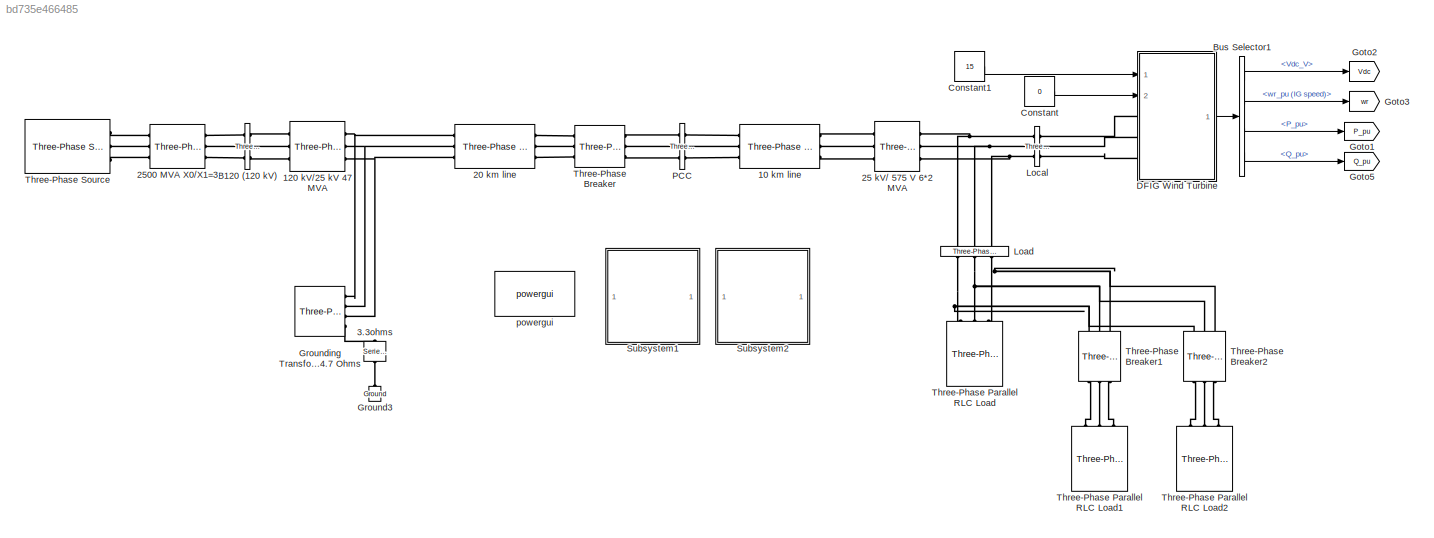
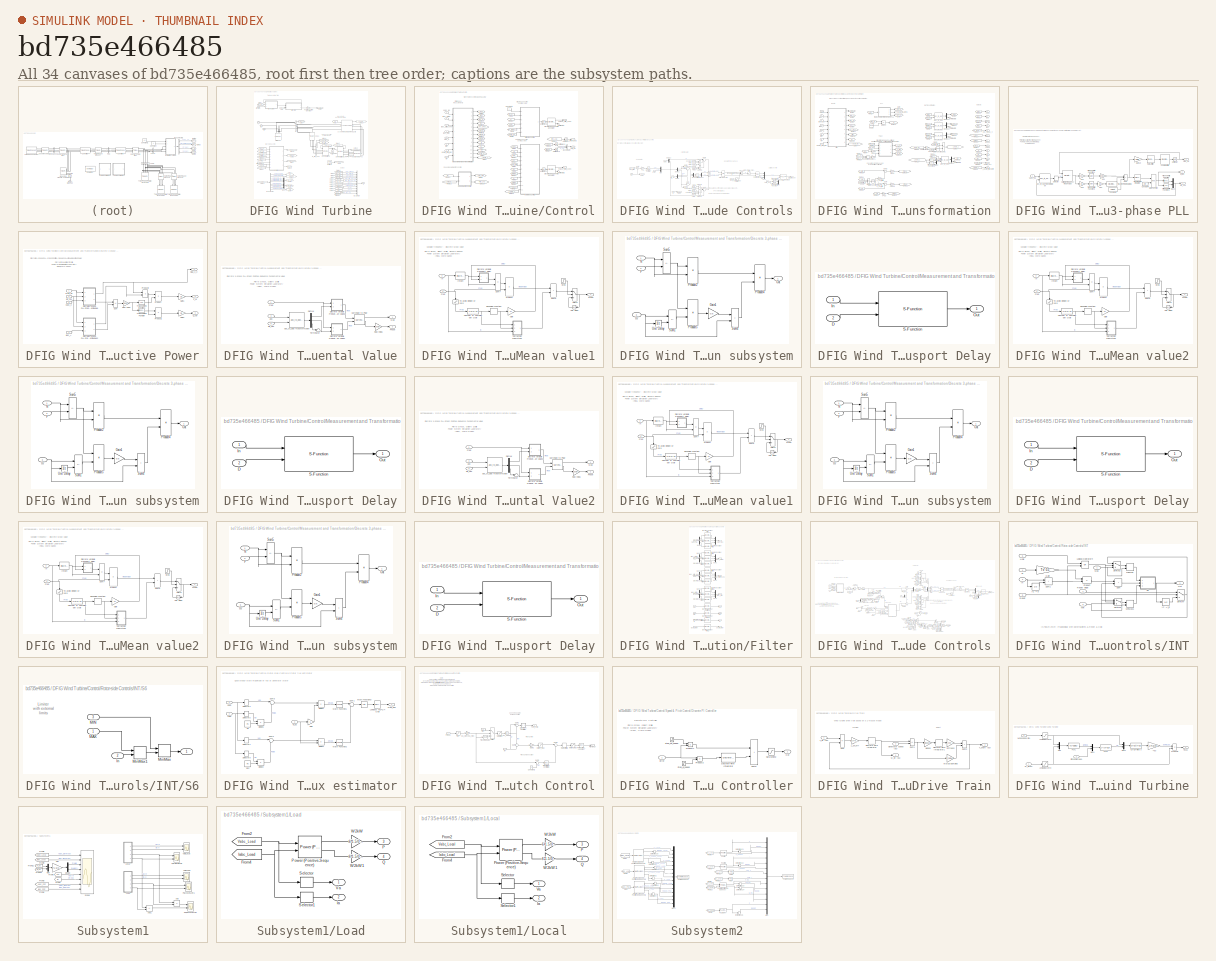
[diagram: thumbnail index - all 34 canvases of the model, root first then tree order]
MODEL slx_bd735e466485
KIND model
CONFIG AbsTol = 1e-3
CONFIG EnableMultiTasking = on
CONFIG FixedStep = auto
CONFIG MaxStep = 1/60
CONFIG MinStep = auto
CONFIG RelTol = 1e-4
CONFIG SampleTimeConstraint = Unconstrained
CONFIG Solver = ode23tb
CONFIG SolverName = ode23tb
CONFIG StartTime = 0.0
CONFIG StopTime = 2.2
BLOCK [Reference] 10 km line  REF=powerlib/Elements/Three-Phase
PI Section Line
  AttributesFormatString = \n
  Ports = [0, 0, 0, 0, 0, 3, 3]
  SourceBlock = powerlib/Elements/Three-Phase\nPI Section Line
  SourceProductBaseCode = MT,PS
  SourceType = Three-Phase PI Section Line
BLOCK [Reference] 120 kV//25 kV 47 MVA  REF=powerlib/Elements/Three-Phase
Transformer
(Two Windings)
  AttributesFormatString = \n
  Ports = [0, 0, 0, 0, 0, 3, 3]
  SourceBlock = powerlib/Elements/Three-Phase\nTransformer\n(Two Windings)
  SourceProductBaseCode = MT,PS
  SourceType = Three-Phase Transformer (Two Windings)
BLOCK [Reference] 20 km line  REF=powerlib/Elements/Three-Phase
PI Section Line
  AttributesFormatString = \n
  Ports = [0, 0, 0, 0, 0, 3, 3]
  SourceBlock = powerlib/Elements/Three-Phase\nPI Section Line
  SourceProductBaseCode = MT,PS
  SourceType = Three-Phase PI Section Line
BLOCK [Reference] 25 kV// 575 V 6*2 MVA  REF=powerlib/Elements/Three-Phase
Transformer
(Two Windings)
  AttributesFormatString = \n
  Ports = [0, 0, 0, 0, 0, 3, 3]
  SourceBlock = powerlib/Elements/Three-Phase\nTransformer\n(Two Windings)
  SourceProductBaseCode = MT,PS
  SourceType = Three-Phase Transformer (Two Windings)
BLOCK [Reference] 2500 MVA X0//X1=3  REF=powerlib/Elements/Three-Phase
Mutual Inductance
Z1-Z0
  AttributesFormatString = \n
  Ports = [0, 0, 0, 0, 0, 3, 3]
  SourceBlock = powerlib/Elements/Three-Phase\nMutual Inductance\nZ1-Z0
  SourceProductBaseCode = MT,PS
  SourceType = Three-Phase Mutual Inductance Z1-Z0
BLOCK [Reference] 3.3ohms   REF=powerlib/Elements/Series RLC Branch
  NameLocation = right
  Ports = [0, 0, 0, 0, 0, 1, 1]
  SourceBlock = powerlib/Elements/Series RLC Branch
  SourceProductBaseCode = MT,PS
  SourceType = Series RLC Branch
BLOCK [Reference] B120 (120 kV)  REF=powerlib/Measurements/Three-Phase
V-I Measurement
  Ports = [0, 0, 0, 0, 0, 3, 3]
  SourceBlock = powerlib/Measurements/Three-Phase\nV-I Measurement
  SourceProductBaseCode = MT,PS
  SourceType = Three-Phase VI Measurement
BLOCK [BusSelector] Bus Selector1
  OutputSignals = Vdc_V,wr_pu (IG speed),PQ_pu.P_pu,PQ_pu.Q_pu
  Ports = [1, 4]
BLOCK [Constant] Constant
  Value = 0
BLOCK [Constant] Constant1
  Value = 15
BLOCK [SubSystem] DFIG Wind Turbine
  LoadFcn = %find_system(gcs,'FollowLinks', 'on', 'LookUnderMasks', 'all');
  Ports = [2, 1, 0, 0, 0, 3]
  RequestExecContextInheritance = off
BLOCK [PMIOPort] DFIG Wind Turbine/A
  Side = Left
  Tag = PMCPort
BLOCK [Reference] DFIG Wind Turbine/Asynchronous Machine pu Units  REF=powerlib/Machines/Asynchronous Machine
pu Units
  Ports = [1, 1, 0, 0, 0, 3, 3]
  SourceBlock = powerlib/Machines/Asynchronous Machine\npu Units
  SourceProductBaseCode = MT,PS
  SourceType = Asynchronous Machine
BLOCK [PMIOPort] DFIG Wind Turbine/B
  Port = 2
  Side = Left
  Tag = PMCPort
BLOCK [Reference] DFIG Wind Turbine/B1  REF=powerlib/Measurements/Three-Phase
V-I Measurement
  Ports = [0, 1, 0, 0, 0, 3, 3]
  SourceBlock = powerlib/Measurements/Three-Phase\nV-I Measurement
  SourceProductBaseCode = MT,PS
  SourceType = Three-Phase VI Measurement
BLOCK [Reference] DFIG Wind Turbine/B_grid_conv  REF=powerlib/Measurements/Three-Phase
V-I Measurement
  Ports = [0, 2, 0, 0, 0, 3, 3]
  SourceBlock = powerlib/Measurements/Three-Phase\nV-I Measurement
  SourceProductBaseCode = MT,PS
  SourceType = Three-Phase VI Measurement
BLOCK [Reference] DFIG Wind Turbine/B_rotor_conv  REF=powerlib/Measurements/Three-Phase
V-I Measurement
  Ports = [0, 1, 0, 0, 0, 3, 3]
  SourceBlock = powerlib/Measurements/Three-Phase\nV-I Measurement
  SourceProductBaseCode = MT,PS
  SourceType = Three-Phase VI Measurement
BLOCK [BusCreator] DFIG Wind Turbine/Bus Creator
  DisplayOption = bar
  InheritFromInputs = on
  Inputs = 13
  Ports = [13, 1]
BLOCK [BusSelector] DFIG Wind Turbine/Bus Selector
  OutputSignals = Mechanical.Rotor speed (wm),Mechanical.Rotor angle thetam (rad),Stator measurements.Stator current is_a (pu),Stator measurements.Stator current is_b (pu),Stator measurements.Stator current is_c (pu),Rotor measurements.Rotor current ir_a (pu),Rotor measurements.Rotor current ir_b (pu),Rotor measurements.Rotor current ir_c (pu),Mechanical.Electromagnetic torque Te (pu)
  Ports = [1, 9]
BLOCK [PMIOPort] DFIG Wind Turbine/C
  Port = 3
  Side = Left
  Tag = PMCPort
BLOCK [Reference] DFIG Wind Turbine/C1  REF=powerlib/Elements/Series RLC Branch
  NameLocation = left
  Ports = [0, 0, 0, 0, 0, 1, 1]
  SourceBlock = powerlib/Elements/Series RLC Branch
  SourceProductBaseCode = MT,PS
  SourceType = Series RLC Branch
BLOCK [Reference] DFIG Wind Turbine/Choke   REF=powerlib/Elements/Three-Phase
Series RLC Branch
  AttributesFormatString = \n
  NameLocation = left
  Ports = [0, 0, 0, 0, 0, 3, 3]
  SourceBlock = powerlib/Elements/Three-Phase\nSeries RLC Branch
  SourceProductBaseCode = MT,PS
  SourceType = Three-Phase Series RLC Branch
BLOCK [SubSystem] DFIG Wind Turbine/Control
  Ports = [8, 4]
  RequestExecContextInheritance = off
BLOCK [BusCreator] DFIG Wind Turbine/Control/Bus Creator
  DisplayOption = bar
  InheritFromInputs = on
  Inputs = 2
  Ports = [2, 1]
BLOCK [Constant] DFIG Wind Turbine/Control/Constant1
  Value = 0
BLOCK [Reference] DFIG Wind Turbine/Control/Discrete 3-phase PWM Generator  REF=powerlib_extras/Discrete 
Control Blocks/Discrete 3-phase
PWM Generator
  Ports = [1, 2]
  SourceBlock = powerlib_extras/Discrete \nControl Blocks/Discrete 3-phase\nPWM Generator
  SourceProductBaseCode = MT,PS
  SourceType = Discrete 3-phase PWM Generator (2- or 3-level)
BLOCK [Reference] DFIG Wind Turbine/Control/Discrete 3-phase PWM Generator   REF=powerlib_extras/Discrete 
Control Blocks/Discrete 3-phase
PWM Generator
  Ports = [1, 2]
  SourceBlock = powerlib_extras/Discrete \nControl Blocks/Discrete 3-phase\nPWM Generator
  SourceProductBaseCode = MT,PS
  SourceType = Discrete 3-phase PWM Generator (2- or 3-level)
BLOCK [From] DFIG Wind Turbine/Control/From1
  CloseFcn = tagdialog Close
  GotoTag = Idq_gc
BLOCK [From] DFIG Wind Turbine/Control/From10
  CloseFcn = tagdialog Close
  GotoTag = r_angle_transform
BLOCK [From] DFIG Wind Turbine/Control/From11
  CloseFcn = tagdialog Close
  GotoTag = Pitch_deg
BLOCK [From] DFIG Wind Turbine/Control/From12
  CloseFcn = tagdialog Close
  GotoTag = wr
BLOCK [From] DFIG Wind Turbine/Control/From13
  CloseFcn = tagdialog Close
  GotoTag = Qmeas
BLOCK [From] DFIG Wind Turbine/Control/From14
  CloseFcn = tagdialog Close
  GotoTag = Vmeas
BLOCK [From] DFIG Wind Turbine/Control/From16
  CloseFcn = tagdialog Close
  GotoTag = Pmeas
BLOCK [From] DFIG Wind Turbine/Control/From17
  CloseFcn = tagdialog Close
  GotoTag = Qmeas
BLOCK [From] DFIG Wind Turbine/Control/From18
  CloseFcn = tagdialog Close
  GotoTag = Vdqs
BLOCK [From] DFIG Wind Turbine/Control/From2
  CloseFcn = tagdialog Close
  GotoTag = Vdc_meas_V
BLOCK [From] DFIG Wind Turbine/Control/From20
  CloseFcn = tagdialog Close
  GotoTag = Idqr
BLOCK [From] DFIG Wind Turbine/Control/From21
  CloseFcn = tagdialog Close
  GotoTag = Idqs
BLOCK [From] DFIG Wind Turbine/Control/From22
  CloseFcn = tagdialog Close
  GotoTag = w
BLOCK [From] DFIG Wind Turbine/Control/From23
  CloseFcn = tagdialog Close
  GotoTag = Pmeas
BLOCK [From] DFIG Wind Turbine/Control/From3
  CloseFcn = tagdialog Close
  GotoTag = Vdc_meas_V
BLOCK [From] DFIG Wind Turbine/Control/From4
  CloseFcn = tagdialog Close
  GotoTag = Vdqs
BLOCK [From] DFIG Wind Turbine/Control/From5
  CloseFcn = tagdialog Close
  GotoTag = w
BLOCK [From] DFIG Wind Turbine/Control/From6
  CloseFcn = tagdialog Close
  GotoTag = wr
BLOCK [From] DFIG Wind Turbine/Control/From7
  CloseFcn = tagdialog Close
  GotoTag = Tem_cmd
BLOCK [From] DFIG Wind Turbine/Control/From8
  CloseFcn = tagdialog Close
  GotoTag = Qref
BLOCK [From] DFIG Wind Turbine/Control/From9
  CloseFcn = tagdialog Close
  GotoTag = Theta_PLL
BLOCK [Goto] DFIG Wind Turbine/Control/Goto1
  GotoTag = Theta_PLL
BLOCK [Goto] DFIG Wind Turbine/Control/Goto10
  GotoTag = Idq_gc
BLOCK [Goto] DFIG Wind Turbine/Control/Goto11
  GotoTag = Idqs
BLOCK [Goto] DFIG Wind Turbine/Control/Goto12
  GotoTag = Idqr
BLOCK [Goto] DFIG Wind Turbine/Control/Goto13
  GotoTag = w
BLOCK [Goto] DFIG Wind Turbine/Control/Goto14
  GotoTag = Vmeas
BLOCK [Goto] DFIG Wind Turbine/Control/Goto15
  GotoTag = Pmeas
BLOCK [Goto] DFIG Wind Turbine/Control/Goto16
  GotoTag = Pitch_deg
BLOCK [Goto] DFIG Wind Turbine/Control/Goto17
  GotoTag = Qmeas
BLOCK [Goto] DFIG Wind Turbine/Control/Goto2
  GotoTag = Vdc_meas_V
BLOCK [Goto] DFIG Wind Turbine/Control/Goto4
  GotoTag = wr
BLOCK [Goto] DFIG Wind Turbine/Control/Goto5
  GotoTag = Tem_cmd
BLOCK [Goto] DFIG Wind Turbine/Control/Goto6
  GotoTag = Qref
BLOCK [Goto] DFIG Wind Turbine/Control/Goto7
  GotoTag = r_angle_transform
BLOCK [Goto] DFIG Wind Turbine/Control/Goto9
  GotoTag = Vdqs
BLOCK [SubSystem] DFIG Wind Turbine/Control/Grid-side Controls
  Ports = [6, 1]
  RequestExecContextInheritance = off
BLOCK [Gain] DFIG Wind Turbine/Control/Grid-side Controls/->pu
  Gain = 1/Vdc_nom
BLOCK [Saturate] DFIG Wind Turbine/Control/Grid-side Controls/0-Mod_index_max_grid
  LowerLimit = 0
  NameLocation = top
  UpperLimit = Mod_index_max_grid
BLOCK [Saturate] DFIG Wind Turbine/Control/Grid-side Controls/Avoid division by zero
  LowerLimit = 1e-6
  UpperLimit = inf
BLOCK [Reference] DFIG Wind Turbine/Control/Grid-side Controls/Cartesian to Polar1  REF=simulink_extras/Transformations/Cartesian to
Polar
  Ports = [2, 2]
  SourceBlock = simulink_extras/Transformations/Cartesian to\nPolar
  SourceProductBaseCode = SL
  SourceType = Cart2Polar
BLOCK [Constant] DFIG Wind Turbine/Control/Grid-side Controls/Constant1
  Value = L_RL
BLOCK [Constant] DFIG Wind Turbine/Control/Grid-side Controls/Constant2
  Value = L_RL
BLOCK [Constant] DFIG Wind Turbine/Control/Grid-side Controls/Constant3
  Value = R_RL
BLOCK [Constant] DFIG Wind Turbine/Control/Grid-side Controls/Constant4
  Value = R_RL
BLOCK [Demux] DFIG Wind Turbine/Control/Grid-side Controls/Demux
  DisplayOption = none
  Outputs = 2
  Ports = [1, 2]
BLOCK [Demux] DFIG Wind Turbine/Control/Grid-side Controls/Demux1
  DisplayOption = none
  Outputs = 2
  Ports = [1, 2]
BLOCK [Demux] DFIG Wind Turbine/Control/Grid-side Controls/Demux2
  DisplayOption = none
  Outputs = 2
  Ports = [1, 2]
BLOCK [Demux] DFIG Wind Turbine/Control/Grid-side Controls/Demux3
  DisplayOption = none
  Outputs = 2
  Ports = [1, 2]
BLOCK [Reference] DFIG Wind Turbine/Control/Grid-side Controls/Discrete PI Controller  REF=powerlib_extras/Discrete 
Control Blocks/Discrete
PI Controller
  Ports = [1, 1]
  SourceBlock = powerlib_extras/Discrete \nControl Blocks/Discrete\nPI Controller
  SourceProductBaseCode = MT,PS
  SourceType = Discrete PI Controller
BLOCK [Reference] DFIG Wind Turbine/Control/Grid-side Controls/Discrete PI Controller1  REF=powerlib_extras/Discrete 
Control Blocks/Discrete
PI Controller
  Ports = [1, 1]
  SourceBlock = powerlib_extras/Discrete \nControl Blocks/Discrete\nPI Controller
  SourceProductBaseCode = MT,PS
  SourceType = Discrete PI Controller
BLOCK [From] DFIG Wind Turbine/Control/Grid-side Controls/From10
  CloseFcn = tagdialog Close
  GotoTag = id_ref
BLOCK [From] DFIG Wind Turbine/Control/Grid-side Controls/From2
  CloseFcn = tagdialog Close
  GotoTag = w
BLOCK [From] DFIG Wind Turbine/Control/Grid-side Controls/From3
  CloseFcn = tagdialog Close
  GotoTag = iq_ref
BLOCK [From] DFIG Wind Turbine/Control/Grid-side Controls/From4
  CloseFcn = tagdialog Close
  GotoTag = iq_ref
BLOCK [From] DFIG Wind Turbine/Control/Grid-side Controls/From5
  CloseFcn = tagdialog Close
  GotoTag = w
BLOCK [From] DFIG Wind Turbine/Control/Grid-side Controls/From6
  CloseFcn = tagdialog Close
  GotoTag = id_ref
BLOCK [From] DFIG Wind Turbine/Control/Grid-side Controls/From7
  CloseFcn = tagdialog Close
  GotoTag = Vdc
BLOCK [Goto] DFIG Wind Turbine/Control/Grid-side Controls/Goto2
  GotoTag = iq_ref
BLOCK [Goto] DFIG Wind Turbine/Control/Grid-side Controls/Goto3
  GotoTag = id_ref
BLOCK [Goto] DFIG Wind Turbine/Control/Grid-side Controls/Goto4
  GotoTag = w
BLOCK [Goto] DFIG Wind Turbine/Control/Grid-side Controls/Goto5
  GotoTag = Vdc
BLOCK [Inport] DFIG Wind Turbine/Control/Grid-side Controls/Idq_gc
  Port = 2
BLOCK [Inport] DFIG Wind Turbine/Control/Grid-side Controls/Iq_ref
BLOCK [Constant] DFIG Wind Turbine/Control/Grid-side Controls/K
  Value = Vnom*2*sqrt(2/3)
BLOCK [Mux] DFIG Wind Turbine/Control/Grid-side Controls/Mux
  DisplayOption = bar
  Inputs = 2
  Ports = [2, 1]
BLOCK [Mux] DFIG Wind Turbine/Control/Grid-side Controls/Mux2
  DisplayOption = bar
  Inputs = 2
  Ports = [2, 1]
BLOCK [Mux] DFIG Wind Turbine/Control/Grid-side Controls/Mux4
  DisplayOption = bar
  Inputs = 3
  Ports = [3, 1]
BLOCK [Mux] DFIG Wind Turbine/Control/Grid-side Controls/Mux5
  DisplayOption = bar
  Inputs = 2
  Ports = [2, 1]
BLOCK [Reference] DFIG Wind Turbine/Control/Grid-side Controls/Polar to Cartesian  REF=simulink_extras/Transformations/Polar to
Cartesian
  Ports = [2, 2]
  SourceBlock = simulink_extras/Transformations/Polar to\nCartesian
  SourceProductBaseCode = SL
  SourceType = Polar2Cart
BLOCK [Product] DFIG Wind Turbine/Control/Grid-side Controls/Product
  InputSameDT = on
  Inputs = 3
  OutDataTypeStr = Inherit: Same as first input
  Ports = [3, 1]
  SaturateOnIntegerOverflow = on
BLOCK [Product] DFIG Wind Turbine/Control/Grid-side Controls/Product1
  InputSameDT = on
  Inputs = 3
  OutDataTypeStr = Inherit: Same as first input
  Ports = [3, 1]
  SaturateOnIntegerOverflow = on
BLOCK [Product] DFIG Wind Turbine/Control/Grid-side Controls/Product2
  InputSameDT = on
  OutDataTypeStr = Inherit: Same as first input
  Ports = [2, 1]
  SaturateOnIntegerOverflow = on
BLOCK [Product] DFIG Wind Turbine/Control/Grid-side Controls/Product3
  InputSameDT = on
  OutDataTypeStr = Inherit: Same as first input
  Ports = [2, 1]
  SaturateOnIntegerOverflow = on
BLOCK [Product] DFIG Wind Turbine/Control/Grid-side Controls/Product4
  InputSameDT = on
  Inputs = **/
  OutDataTypeStr = Inherit: Same as first input
  Ports = [3, 1]
  SaturateOnIntegerOverflow = on
BLOCK [Sum] DFIG Wind Turbine/Control/Grid-side Controls/Sum1
  InputSameDT = on
  Inputs = +-
  OutDataTypeStr = Inherit: Same as first input
  Ports = [2, 1]
  SaturateOnIntegerOverflow = on
BLOCK [Sum] DFIG Wind Turbine/Control/Grid-side Controls/Sum2
  InputSameDT = on
  Inputs = -+|
  OutDataTypeStr = Inherit: Same as first input
  Ports = [2, 1]
  SaturateOnIntegerOverflow = on
BLOCK [Sum] DFIG Wind Turbine/Control/Grid-side Controls/Sum3
  InputSameDT = on
  Inputs = ||++-
  OutDataTypeStr = Inherit: Same as first input
  Ports = [3, 1]
  SaturateOnIntegerOverflow = on
BLOCK [Sum] DFIG Wind Turbine/Control/Grid-side Controls/Sum4
  InputSameDT = on
  Inputs = |+-
  OutDataTypeStr = Inherit: Same as first input
  Ports = [2, 1]
  SaturateOnIntegerOverflow = on
BLOCK [Sum] DFIG Wind Turbine/Control/Grid-side Controls/Sum5
  InputSameDT = on
  Inputs = |--+
  OutDataTypeStr = Inherit: Same as first input
  Ports = [3, 1]
  SaturateOnIntegerOverflow = on
BLOCK [Sum] DFIG Wind Turbine/Control/Grid-side Controls/Sum6
  InputSameDT = on
  Inputs = |-+
  OutDataTypeStr = Inherit: Same as first input
  Ports = [2, 1]
  SaturateOnIntegerOverflow = on
BLOCK [Sum] DFIG Wind Turbine/Control/Grid-side Controls/Sum7
  InputSameDT = on
  Inputs = |+-
  OutDataTypeStr = Inherit: Same as first input
  Ports = [2, 1]
  SaturateOnIntegerOverflow = on
BLOCK [Inport] DFIG Wind Turbine/Control/Grid-side Controls/Theta_PLL
  Port = 6
BLOCK [Trigonometry] DFIG Wind Turbine/Control/Grid-side Controls/Trigonometric Function2
  Ports = [1, 1]
BLOCK [Trigonometry] DFIG Wind Turbine/Control/Grid-side Controls/Trigonometric Function3
  Operator = cos
  Ports = [1, 1]
BLOCK [Outport] DFIG Wind Turbine/Control/Grid-side Controls/Uctrl_grid_conv
  VectorParamsAs1DForOutWhenUnconnected = off
BLOCK [Constant] DFIG Wind Turbine/Control/Grid-side Controls/V0
  Value = 0
BLOCK [Inport] DFIG Wind Turbine/Control/Grid-side Controls/Vdc
  Port = 5
BLOCK [Constant] DFIG Wind Turbine/Control/Grid-side Controls/Vdc_ref (V)
  NameLocation = top
  Value = Vdc_nom
BLOCK [Inport] DFIG Wind Turbine/Control/Grid-side Controls/Vdqs
  Port = 4
BLOCK [Reference] DFIG Wind Turbine/Control/Grid-side Controls/dq0_to_abc Transformation  REF=powerlib_extras/Measurements/dq0_to_abc
Transformation
  Ports = [2, 1]
  SourceBlock = powerlib_extras/Measurements/dq0_to_abc\nTransformation
  SourceProductBaseCode = MT,PS
  SourceType = dq0 to abc Transformation
BLOCK [Inport] DFIG Wind Turbine/Control/Grid-side Controls/w
  Port = 3
BLOCK [Inport] DFIG Wind Turbine/Control/Iabc_grid_conv
  Port = 3
BLOCK [Inport] DFIG Wind Turbine/Control/Iabc_rotor
  Port = 4
BLOCK [Inport] DFIG Wind Turbine/Control/Iabc_stator
  Port = 2
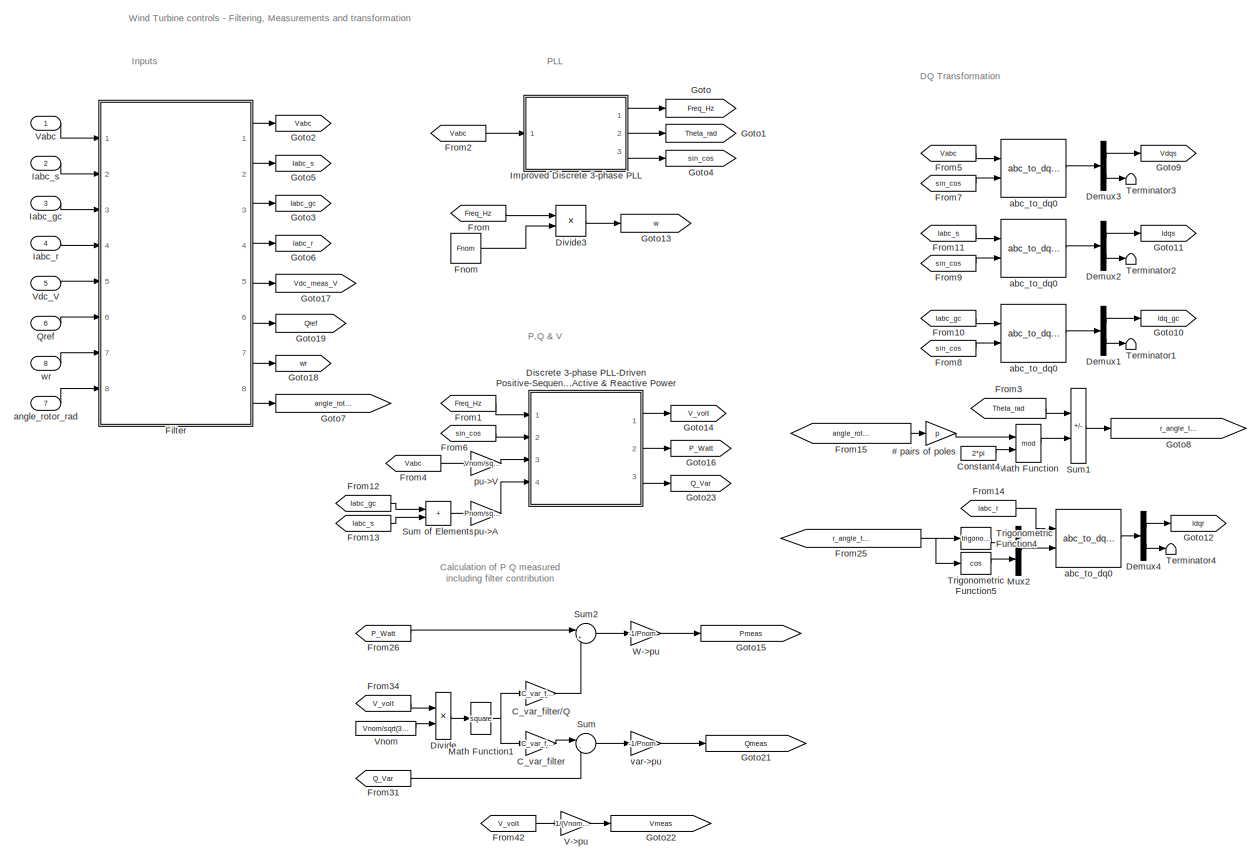
[diagram: DFIG Wind Turbine/Control/Measurement and Transformation - part 1/2, most of the canvas]
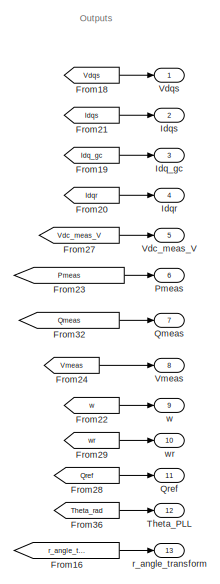
[diagram: DFIG Wind Turbine/Control/Measurement and Transformation - part 2/2, middle right region]
BLOCK [SubSystem] DFIG Wind Turbine/Control/Measurement and Transformation
  Ports = [8, 13]
  RequestExecContextInheritance = off
BLOCK [Reference] DFIG Wind Turbine/Control/Measurement and Transformation/   abc_to_dq0      REF=powerlib_extras/Measurements/abc_to_dq0
Transformation
  Ports = [2, 1]
  SourceBlock = powerlib_extras/Measurements/abc_to_dq0\nTransformation
  SourceProductBaseCode = MT,PS
  SourceType = abc to dq0 Transformation
BLOCK [SubSystem] DFIG Wind Turbine/Control/Measurement and Transformation/ Improved Discrete 3-phase PLL
  OpenFcn = power_openblockproxy();
  Ports = [1, 3]
  RequestExecContextInheritance = off
BLOCK [Reference] DFIG Wind Turbine/Control/Measurement and Transformation/ Improved Discrete 3-phase PLL/2nd-Order Filter  REF=powerlib_extras/Discrete 
Control Blocks/Discrete 
2nd-Order
Filter
  Ports = [1, 1]
  SourceBlock = powerlib_extras/Discrete \nControl Blocks/Discrete \n2nd-Order\nFilter
  SourceProductBaseCode = MT,PS
  SourceType = Discrete 2nd-Order Filter
BLOCK [Constant] DFIG Wind Turbine/Control/Measurement and Transformation/ Improved Discrete 3-phase PLL/Constant1
  NameLocation = top
  Value = 2*pi*Finit
BLOCK [Constant] DFIG Wind Turbine/Control/Measurement and Transformation/ Improved Discrete 3-phase PLL/Constant4
  NameLocation = top
  Value = 2*pi
BLOCK [DiscreteIntegrator] DFIG Wind Turbine/Control/Measurement and Transformation/ Improved Discrete 3-phase PLL/Discrete-Time Integrator
  ICPrevOutput = DiscIntNeverNeededParam
  ICPrevScaledInput = DiscIntNeverNeededParam
  Ports = [1, 1]
  SampleTime = Ts
BLOCK [DiscreteIntegrator] DFIG Wind Turbine/Control/Measurement and Transformation/ Improved Discrete 3-phase PLL/Discrete-Time Integrator1
  ICPrevOutput = DiscIntNeverNeededParam
  ICPrevScaledInput = DiscIntNeverNeededParam
  LimitOutput = on
  LowerSaturationLimit = -2*pi*5
  Ports = [1, 1]
  SampleTime = Ts
  UpperSaturationLimit = 2*pi*5
  gainval = 1
BLOCK [Outport] DFIG Wind Turbine/Control/Measurement and Transformation/ Improved Discrete 3-phase PLL/Freq_Hz
  VectorParamsAs1DForOutWhenUnconnected = off
BLOCK [Gain] DFIG Wind Turbine/Control/Measurement and Transformation/ Improved Discrete 3-phase PLL/Gain10
  Gain = 1/2/pi
  OutDataTypeStr = Inherit: Same as input
  ParamDataTypeStr = Inherit: Same as input
  SaturateOnIntegerOverflow = on
BLOCK [Gain] DFIG Wind Turbine/Control/Measurement and Transformation/ Improved Discrete 3-phase PLL/Kp1
  Gain = Kp2
  OutDataTypeStr = Inherit: Same as input
  ParamDataTypeStr = Inherit: Same as input
  SaturateOnIntegerOverflow = on
BLOCK [Gain] DFIG Wind Turbine/Control/Measurement and Transformation/ Improved Discrete 3-phase PLL/Kp2
  Gain = Ki2
  OutDataTypeStr = Inherit: Same as input
  ParamDataTypeStr = Inherit: Same as input
  SaturateOnIntegerOverflow = on
BLOCK [Gain] DFIG Wind Turbine/Control/Measurement and Transformation/ Improved Discrete 3-phase PLL/Kp3
  Gain = Ki1
  OutDataTypeStr = Inherit: Same as input
  ParamDataTypeStr = Inherit: Same as input
  SaturateOnIntegerOverflow = on
BLOCK [Gain] DFIG Wind Turbine/Control/Measurement and Transformation/ Improved Discrete 3-phase PLL/Kp4
  Gain = Kp1
  OutDataTypeStr = Inherit: Same as input
  ParamDataTypeStr = Inherit: Same as input
  SaturateOnIntegerOverflow = on
BLOCK [Math] DFIG Wind Turbine/Control/Measurement and Transformation/ Improved Discrete 3-phase PLL/Math Function
  Operator = mod
  Ports = [2, 1]
  SignedPower = on
BLOCK [Mux] DFIG Wind Turbine/Control/Measurement and Transformation/ Improved Discrete 3-phase PLL/Mux2
  DisplayOption = bar
  Inputs = 2
  Ports = [2, 1]
BLOCK [Reference] DFIG Wind Turbine/Control/Measurement and Transformation/ Improved Discrete 3-phase PLL/Rate Limiter  REF=powerlib_extras/Discrete 
Control Blocks/Discrete
Rate Limiter
  Ports = [1, 1]
  SourceBlock = powerlib_extras/Discrete \nControl Blocks/Discrete\nRate Limiter
  SourceProductBaseCode = MT,PS
  SourceType = Discrete Rate Limiter
BLOCK [Selector] DFIG Wind Turbine/Control/Measurement and Transformation/ Improved Discrete 3-phase PLL/Selector
  IndexOptions = Index vector (dialog)
  Indices = 2
  InputPortWidth = 3
  OutputSizes = 1
  Ports = [1, 1]
BLOCK [Outport] DFIG Wind Turbine/Control/Measurement and Transformation/ Improved Discrete 3-phase PLL/Sin_Cos
  Port = 3
  VectorParamsAs1DForOutWhenUnconnected = off
BLOCK [Sum] DFIG Wind Turbine/Control/Measurement and Transformation/ Improved Discrete 3-phase PLL/Sum
  IconShape = rectangular
  Inputs = +++
  Ports = [3, 1]
BLOCK [Trigonometry] DFIG Wind Turbine/Control/Measurement and Transformation/ Improved Discrete 3-phase PLL/Trigonometric Function
  Ports = [1, 1]
BLOCK [Trigonometry] DFIG Wind Turbine/Control/Measurement and Transformation/ Improved Discrete 3-phase PLL/Trigonometric Function1
  Operator = atan
  Ports = [1, 1]
BLOCK [Trigonometry] DFIG Wind Turbine/Control/Measurement and Transformation/ Improved Discrete 3-phase PLL/Trigonometric Function2
  Operator = cos
  Ports = [1, 1]
BLOCK [Trigonometry] DFIG Wind Turbine/Control/Measurement and Transformation/ Improved Discrete 3-phase PLL/Trigonometric Function3
  Operator = atan
  Ports = [1, 1]
BLOCK [UnitDelay] DFIG Wind Turbine/Control/Measurement and Transformation/ Improved Discrete 3-phase PLL/Unit Delay
  HasFrameUpgradeWarning = on
  InitialCondition = Finit
  SampleTime = Ts
BLOCK [Inport] DFIG Wind Turbine/Control/Measurement and Transformation/ Improved Discrete 3-phase PLL/Vabc_pu
  PortDimensions = 3
BLOCK [Reference] DFIG Wind Turbine/Control/Measurement and Transformation/ Improved Discrete 3-phase PLL/Variable Frequency Mean value  REF=powerlib_extras/Discrete
Measurements/Discrete
Variable Frequency
Mean value
  Ports = [2, 1]
  SourceBlock = powerlib_extras/Discrete\nMeasurements/Discrete\nVariable Frequency\nMean value
  SourceProductBaseCode = MT,PS
  SourceType = Discrete Variable-Frequency Mean Value
BLOCK [Reference] DFIG Wind Turbine/Control/Measurement and Transformation/ Improved Discrete 3-phase PLL/abc_to_dq0 Transformation  REF=powerlib_extras/Measurements/abc_to_dq0
Transformation
  Ports = [2, 1]
  SourceBlock = powerlib_extras/Measurements/abc_to_dq0\nTransformation
  SourceProductBaseCode = MT,PS
  SourceType = abc to dq0 Transformation
BLOCK [Outport] DFIG Wind Turbine/Control/Measurement and Transformation/ Improved Discrete 3-phase PLL/wt_rad
  Port = 2
  VectorParamsAs1DForOutWhenUnconnected = off
BLOCK [Gain] DFIG Wind Turbine/Control/Measurement and Transformation/# pairs of poles
  Gain = p
  NameLocation = top
  OutDataTypeStr = Inherit: Same as input
  ParamDataTypeStr = Inherit: Same as input
  SaturateOnIntegerOverflow = on
BLOCK [Gain] DFIG Wind Turbine/Control/Measurement and Transformation/C_var_filter
  Gain = C_var_filter
  OutDataTypeStr = Inherit: Same as input
  ParamDataTypeStr = Inherit: Same as input
  SaturateOnIntegerOverflow = on
BLOCK [Gain] DFIG Wind Turbine/Control/Measurement and Transformation/C_var_filter//Q
  Gain = C_var_filter/Q_filter
  NameLocation = top
  OutDataTypeStr = Inherit: Same as input
  ParamDataTypeStr = Inherit: Same as input
  SaturateOnIntegerOverflow = on
BLOCK [Constant] DFIG Wind Turbine/Control/Measurement and Transformation/Constant4
  NameLocation = top
  Value = 2*pi
BLOCK [Demux] DFIG Wind Turbine/Control/Measurement and Transformation/Demux1
  DisplayOption = none
  Outputs = [2 1]
  Ports = [1, 2]
BLOCK [Demux] DFIG Wind Turbine/Control/Measurement and Transformation/Demux2
  DisplayOption = none
  Outputs = [2 1]
  Ports = [1, 2]
BLOCK [Demux] DFIG Wind Turbine/Control/Measurement and Transformation/Demux3
  DisplayOption = none
  Outputs = [2 1]
  Ports = [1, 2]
BLOCK [Demux] DFIG Wind Turbine/Control/Measurement and Transformation/Demux4
  DisplayOption = none
  Outputs = [2 1]
  Ports = [1, 2]
BLOCK [SubSystem] DFIG Wind Turbine/Control/Measurement and Transformation/Discrete 3-phase PLL-Driven Positive-Sequence Active & Reactive Power
  OpenFcn = power_openblockproxy();
  Ports = [4, 3]
  RequestExecContextInheritance = off
BLOCK [Gain] DFIG Wind Turbine/Control/Measurement and Transformation/Discrete 3-phase PLL-Driven Positive-Sequence Active & Reactive Power/Deg->Rad
  Gain = pi/180
  OutDataTypeStr = Inherit: Same as input
  ParamDataTypeStr = Inherit: Same as input
  SaturateOnIntegerOverflow = on
BLOCK [SubSystem] DFIG Wind Turbine/Control/Measurement and Transformation/Discrete 3-phase PLL-Driven Positive-Sequence Active & Reactive Power/Discrete 3-phase PLL-Driven Positive-Sequence Fundamental Value
  OpenFcn = power_openblockproxy();
  Ports = [3, 2]
  RequestExecContextInheritance = off
BLOCK [Reference] DFIG Wind Turbine/Control/Measurement and Transformation/Discrete 3-phase PLL-Driven Positive-Sequence Active & Reactive Power/Discrete 3-phase PLL-Driven Positive-Sequence Fundamental Value/Cartesian to Polar  REF=simulink_extras/Transformations/Cartesian to
Polar
  Ports = [2, 2]
  SourceBlock = simulink_extras/Transformations/Cartesian to\nPolar
  SourceProductBaseCode = SL
  SourceType = Cart2Polar
BLOCK [Demux] DFIG Wind Turbine/Control/Measurement and Transformation/Discrete 3-phase PLL-Driven Positive-Sequence Active & Reactive Power/Discrete 3-phase PLL-Driven Positive-Sequence Fundamental Value/Demux
  DisplayOption = none
  Outputs = 3
  Ports = [1, 3]
BLOCK [SubSystem] DFIG Wind Turbine/Control/Measurement and Transformation/Discrete 3-phase PLL-Driven Positive-Sequence Active & Reactive Power/Discrete 3-phase PLL-Driven Positive-Sequence Fundamental Value/Discrete Variable Frequency Mean value1
  OpenFcn = power_openblockproxy();
  Ports = [2, 1]
  RequestExecContextInheritance = off
BLOCK [SubSystem] DFIG Wind Turbine/Control/Measurement and Transformation/Discrete 3-phase PLL-Driven Positive-Sequence Active & Reactive Power/Discrete 3-phase PLL-Driven Positive-Sequence Fundamental Value/Discrete Variable Frequency Mean value1/Correction subsystem
  Ports = [3, 1]
  RequestExecContextInheritance = off
BLOCK [Inport] DFIG Wind Turbine/Control/Measurement and Transformation/Discrete 3-phase PLL-Driven Positive-Sequence Active & Reactive Power/Discrete 3-phase PLL-Driven Positive-Sequence Fundamental Value/Discrete Variable Frequency Mean value1/Correction subsystem/F
  Port = 2
BLOCK [Gain] DFIG Wind Turbine/Control/Measurement and Transformation/Discrete 3-phase PLL-Driven Positive-Sequence Active & Reactive Power/Discrete 3-phase PLL-Driven Positive-Sequence Fundamental Value/Discrete Variable Frequency Mean value1/Correction subsystem/Gain1
  Gain = 0.5
  OutDataTypeStr = Inherit: Same as input
  ParamDataTypeStr = Inherit: Same as input
  SaturateOnIntegerOverflow = on
BLOCK [Inport] DFIG Wind Turbine/Control/Measurement and Transformation/Discrete 3-phase PLL-Driven Positive-Sequence Active & Reactive Power/Discrete 3-phase PLL-Driven Positive-Sequence Fundamental Value/Discrete Variable Frequency Mean value1/Correction subsystem/In
  Port = 3
BLOCK [Inport] DFIG Wind Turbine/Control/Measurement and Transformation/Discrete 3-phase PLL-Driven Positive-Sequence Active & Reactive Power/Discrete 3-phase PLL-Driven Positive-Sequence Fundamental Value/Discrete Variable Frequency Mean value1/Correction subsystem/N
BLOCK [Outport] DFIG Wind Turbine/Control/Measurement and Transformation/Discrete 3-phase PLL-Driven Positive-Sequence Active & Reactive Power/Discrete 3-phase PLL-Driven Positive-Sequence Fundamental Value/Discrete Variable Frequency Mean value1/Correction subsystem/Out
  VectorParamsAs1DForOutWhenUnconnected = off
BLOCK [Product] DFIG Wind Turbine/Control/Measurement and Transformation/Discrete 3-phase PLL-Driven Positive-Sequence Active & Reactive Power/Discrete 3-phase PLL-Driven Positive-Sequence Fundamental Value/Discrete Variable Frequency Mean value1/Correction subsystem/Product2
  InputSameDT = on
  Inputs = */
  OutDataTypeStr = Inherit: Same as first input
  Ports = [2, 1]
  SaturateOnIntegerOverflow = on
BLOCK [Product] DFIG Wind Turbine/Control/Measurement and Transformation/Discrete 3-phase PLL-Driven Positive-Sequence Active & Reactive Power/Discrete 3-phase PLL-Driven Positive-Sequence Fundamental Value/Discrete Variable Frequency Mean value1/Correction subsystem/Product4
  InputSameDT = on
  Inputs = **
  OutDataTypeStr = Inherit: Same as first input
  Ports = [2, 1]
  SaturateOnIntegerOverflow = on
BLOCK [Product] DFIG Wind Turbine/Control/Measurement and Transformation/Discrete 3-phase PLL-Driven Positive-Sequence Active & Reactive Power/Discrete 3-phase PLL-Driven Positive-Sequence Fundamental Value/Discrete Variable Frequency Mean value1/Correction subsystem/Product5
  InputSameDT = on
  Inputs = **
  OutDataTypeStr = Inherit: Same as first input
  Ports = [2, 1]
  SaturateOnIntegerOverflow = on
BLOCK [Sum] DFIG Wind Turbine/Control/Measurement and Transformation/Discrete 3-phase PLL-Driven Positive-Sequence Active & Reactive Power/Discrete 3-phase PLL-Driven Positive-Sequence Fundamental Value/Discrete Variable Frequency Mean value1/Correction subsystem/Sum1
  IconShape = rectangular
  InputSameDT = on
  Inputs = +-
  OutDataTypeStr = Inherit: Same as first input
  Ports = [2, 1]
  SaturateOnIntegerOverflow = on
BLOCK [Sum] DFIG Wind Turbine/Control/Measurement and Transformation/Discrete 3-phase PLL-Driven Positive-Sequence Active & Reactive Power/Discrete 3-phase PLL-Driven Positive-Sequence Fundamental Value/Discrete Variable Frequency Mean value1/Correction subsystem/Sum4
  IconShape = rectangular
  InputSameDT = on
  OutDataTypeStr = Inherit: Same as first input
  Ports = [2, 1]
  SaturateOnIntegerOverflow = on
BLOCK [Sum] DFIG Wind Turbine/Control/Measurement and Transformation/Discrete 3-phase PLL-Driven Positive-Sequence Active & Reactive Power/Discrete 3-phase PLL-Driven Positive-Sequence Fundamental Value/Discrete Variable Frequency Mean value1/Correction subsystem/Sum5
  IconShape = rectangular
  InputSameDT = on
  Inputs = +-
  OutDataTypeStr = Inherit: Same as first input
  Ports = [2, 1]
  SaturateOnIntegerOverflow = on
BLOCK [UnitDelay] DFIG Wind Turbine/Control/Measurement and Transformation/Discrete 3-phase PLL-Driven Positive-Sequence Active & Reactive Power/Discrete 3-phase PLL-Driven Positive-Sequence Fundamental Value/Discrete Variable Frequency Mean value1/Correction subsystem/Unit Delay
  HasFrameUpgradeWarning = on
  SampleTime = Ts
BLOCK [SubSystem] DFIG Wind Turbine/Control/Measurement and Transformation/Discrete 3-phase PLL-Driven Positive-Sequence Active & Reactive Power/Discrete 3-phase PLL-Driven Positive-Sequence Fundamental Value/Discrete Variable Frequency Mean value1/Discrete Variable Transport Delay
  NameLocation = top
  Ports = [2, 1]
  RequestExecContextInheritance = off
BLOCK [Inport] DFIG Wind Turbine/Control/Measurement and Transformation/Discrete 3-phase PLL-Driven Positive-Sequence Active & Reactive Power/Discrete 3-phase PLL-Driven Positive-Sequence Fundamental Value/Discrete Variable Frequency Mean value1/Discrete Variable Transport Delay/D
  Port = 2
BLOCK [Inport] DFIG Wind Turbine/Control/Measurement and Transformation/Discrete 3-phase PLL-Driven Positive-Sequence Active & Reactive Power/Discrete 3-phase PLL-Driven Positive-Sequence Fundamental Value/Discrete Variable Frequency Mean value1/Discrete Variable Transport Delay/In
BLOCK [Outport] DFIG Wind Turbine/Control/Measurement and Transformation/Discrete 3-phase PLL-Driven Positive-Sequence Active & Reactive Power/Discrete 3-phase PLL-Driven Positive-Sequence Fundamental Value/Discrete Variable Frequency Mean value1/Discrete Variable Transport Delay/Out
  VectorParamsAs1DForOutWhenUnconnected = off
BLOCK [S-Function] DFIG Wind Turbine/Control/Measurement and Transformation/Discrete 3-phase PLL-Driven Positive-Sequence Active & Reactive Power/Discrete 3-phase PLL-Driven Positive-Sequence Fundamental Value/Discrete Variable Frequency Mean value1/Discrete Variable Transport Delay/S-Function 
  EnableBusSupport = off
  FunctionName = discreteVariableTransportDelay
  Parameters = MaxDelay,Ts,InitialValue
  Ports = [2, 1]
  SFcnIsStateOwnerBlock = off
  SFunctionDeploymentMode = off
BLOCK [Inport] DFIG Wind Turbine/Control/Measurement and Transformation/Discrete 3-phase PLL-Driven Positive-Sequence Active & Reactive Power/Discrete 3-phase PLL-Driven Positive-Sequence Fundamental Value/Discrete Variable Frequency Mean value1/Freq
  PortDimensions = 1
BLOCK [Gain] DFIG Wind Turbine/Control/Measurement and Transformation/Discrete 3-phase PLL-Driven Positive-Sequence Active & Reactive Power/Discrete 3-phase PLL-Driven Positive-Sequence Fundamental Value/Discrete Variable Frequency Mean value1/Gain
  Gain = Ts
  OutDataTypeStr = Inherit: Same as input
  ParamDataTypeStr = Inherit: Same as input
  SaturateOnIntegerOverflow = on
BLOCK [Inport] DFIG Wind Turbine/Control/Measurement and Transformation/Discrete 3-phase PLL-Driven Positive-Sequence Active & Reactive Power/Discrete 3-phase PLL-Driven Positive-Sequence Fundamental Value/Discrete Variable Frequency Mean value1/In
  Port = 2
  PortDimensions = 1
BLOCK [DiscreteIntegrator] DFIG Wind Turbine/Control/Measurement and Transformation/Discrete 3-phase PLL-Driven Positive-Sequence Active & Reactive Power/Discrete 3-phase PLL-Driven Positive-Sequence Fundamental Value/Discrete Variable Frequency Mean value1/Integ4
  ICPrevOutput = DiscIntNeverNeededParam
  ICPrevScaledInput = DiscIntNeverNeededParam
  IntegratorMethod = Integration: Trapezoidal
  Ports = [1, 1]
  SampleTime = Ts
BLOCK [Outport] DFIG Wind Turbine/Control/Measurement and Transformation/Discrete 3-phase PLL-Driven Positive-Sequence Active & Reactive Power/Discrete 3-phase PLL-Driven Positive-Sequence Fundamental Value/Discrete Variable Frequency Mean value1/Mean
  VectorParamsAs1DForOutWhenUnconnected = off
BLOCK [Fcn] DFIG Wind Turbine/Control/Measurement and Transformation/Discrete 3-phase PLL-Driven Positive-Sequence Active & Reactive Power/Discrete 3-phase PLL-Driven Positive-Sequence Fundamental Value/Discrete Variable Frequency Mean value1/Number of samples per cycle
  Expr = 1/u[1]/Ts
BLOCK [Product] DFIG Wind Turbine/Control/Measurement and Transformation/Discrete 3-phase PLL-Driven Positive-Sequence Active & Reactive Power/Discrete 3-phase PLL-Driven Positive-Sequence Fundamental Value/Discrete Variable Frequency Mean value1/Product
  InputSameDT = on
  OutDataTypeStr = Inherit: Same as first input
  Ports = [2, 1]
  SaturateOnIntegerOverflow = on
BLOCK [Rounding] DFIG Wind Turbine/Control/Measurement and Transformation/Discrete 3-phase PLL-Driven Positive-Sequence Active & Reactive Power/Discrete 3-phase PLL-Driven Positive-Sequence Fundamental Value/Discrete Variable Frequency Mean value1/Rounding Function
  NameLocation = top
  Operator = ceil
BLOCK [Step] DFIG Wind Turbine/Control/Measurement and Transformation/Discrete 3-phase PLL-Driven Positive-Sequence Active & Reactive Power/Discrete 3-phase PLL-Driven Positive-Sequence Fundamental Value/Discrete Variable Frequency Mean value1/Step
  SampleTime = Ts
  Time = 1/Finit
BLOCK [Sum] DFIG Wind Turbine/Control/Measurement and Transformation/Discrete 3-phase PLL-Driven Positive-Sequence Active & Reactive Power/Discrete 3-phase PLL-Driven Positive-Sequence Fundamental Value/Discrete Variable Frequency Mean value1/Sum5
  IconShape = rectangular
  InputSameDT = on
  OutDataTypeStr = Inherit: Same as first input
  Ports = [2, 1]
  SaturateOnIntegerOverflow = on
BLOCK [Sum] DFIG Wind Turbine/Control/Measurement and Transformation/Discrete 3-phase PLL-Driven Positive-Sequence Active & Reactive Power/Discrete 3-phase PLL-Driven Positive-Sequence Fundamental Value/Discrete Variable Frequency Mean value1/Sum7
  IconShape = rectangular
  InputSameDT = on
  Inputs = -+
  OutDataTypeStr = Inherit: Same as first input
  Ports = [2, 1]
  SaturateOnIntegerOverflow = on
BLOCK [Switch] DFIG Wind Turbine/Control/Measurement and Transformation/Discrete 3-phase PLL-Driven Positive-Sequence Active & Reactive Power/Discrete 3-phase PLL-Driven Positive-Sequence Fundamental Value/Discrete Variable Frequency Mean value1/Switch
  SaturateOnIntegerOverflow = off
  Threshold = 0.5
BLOCK [Saturate] DFIG Wind Turbine/Control/Measurement and Transformation/Discrete 3-phase PLL-Driven Positive-Sequence Active & Reactive Power/Discrete 3-phase PLL-Driven Positive-Sequence Fundamental Value/Discrete Variable Frequency Mean value1/To avoid division by zero
  LowerLimit = 1e-6
  NameLocation = right
  UpperLimit = 1e6
BLOCK [UnitDelay] DFIG Wind Turbine/Control/Measurement and Transformation/Discrete 3-phase PLL-Driven Positive-Sequence Active & Reactive Power/Discrete 3-phase PLL-Driven Positive-Sequence Fundamental Value/Discrete Variable Frequency Mean value1/Unit Delay
  HasFrameUpgradeWarning = on
  InitialCondition = Vinit
  SampleTime = Ts
BLOCK [SubSystem] DFIG Wind Turbine/Control/Measurement and Transformation/Discrete 3-phase PLL-Driven Positive-Sequence Active & Reactive Power/Discrete 3-phase PLL-Driven Positive-Sequence Fundamental Value/Discrete Variable Frequency Mean value2
  OpenFcn = power_openblockproxy();
  Ports = [2, 1]
  RequestExecContextInheritance = off
BLOCK [SubSystem] DFIG Wind Turbine/Control/Measurement and Transformation/Discrete 3-phase PLL-Driven Positive-Sequence Active & Reactive Power/Discrete 3-phase PLL-Driven Positive-Sequence Fundamental Value/Discrete Variable Frequency Mean value2/Correction subsystem
  Ports = [3, 1]
  RequestExecContextInheritance = off
BLOCK [Inport] DFIG Wind Turbine/Control/Measurement and Transformation/Discrete 3-phase PLL-Driven Positive-Sequence Active & Reactive Power/Discrete 3-phase PLL-Driven Positive-Sequence Fundamental Value/Discrete Variable Frequency Mean value2/Correction subsystem/F
  Port = 2
BLOCK [Gain] DFIG Wind Turbine/Control/Measurement and Transformation/Discrete 3-phase PLL-Driven Positive-Sequence Active & Reactive Power/Discrete 3-phase PLL-Driven Positive-Sequence Fundamental Value/Discrete Variable Frequency Mean value2/Correction subsystem/Gain1
  Gain = 0.5
  OutDataTypeStr = Inherit: Same as input
  ParamDataTypeStr = Inherit: Same as input
  SaturateOnIntegerOverflow = on
BLOCK [Inport] DFIG Wind Turbine/Control/Measurement and Transformation/Discrete 3-phase PLL-Driven Positive-Sequence Active & Reactive Power/Discrete 3-phase PLL-Driven Positive-Sequence Fundamental Value/Discrete Variable Frequency Mean value2/Correction subsystem/In
  Port = 3
BLOCK [Inport] DFIG Wind Turbine/Control/Measurement and Transformation/Discrete 3-phase PLL-Driven Positive-Sequence Active & Reactive Power/Discrete 3-phase PLL-Driven Positive-Sequence Fundamental Value/Discrete Variable Frequency Mean value2/Correction subsystem/N
BLOCK [Outport] DFIG Wind Turbine/Control/Measurement and Transformation/Discrete 3-phase PLL-Driven Positive-Sequence Active & Reactive Power/Discrete 3-phase PLL-Driven Positive-Sequence Fundamental Value/Discrete Variable Frequency Mean value2/Correction subsystem/Out
  VectorParamsAs1DForOutWhenUnconnected = off
BLOCK [Product] DFIG Wind Turbine/Control/Measurement and Transformation/Discrete 3-phase PLL-Driven Positive-Sequence Active & Reactive Power/Discrete 3-phase PLL-Driven Positive-Sequence Fundamental Value/Discrete Variable Frequency Mean value2/Correction subsystem/Product2
  InputSameDT = on
  Inputs = */
  OutDataTypeStr = Inherit: Same as first input
  Ports = [2, 1]
  SaturateOnIntegerOverflow = on
BLOCK [Product] DFIG Wind Turbine/Control/Measurement and Transformation/Discrete 3-phase PLL-Driven Positive-Sequence Active & Reactive Power/Discrete 3-phase PLL-Driven Positive-Sequence Fundamental Value/Discrete Variable Frequency Mean value2/Correction subsystem/Product4
  InputSameDT = on
  Inputs = **
  OutDataTypeStr = Inherit: Same as first input
  Ports = [2, 1]
  SaturateOnIntegerOverflow = on
BLOCK [Product] DFIG Wind Turbine/Control/Measurement and Transformation/Discrete 3-phase PLL-Driven Positive-Sequence Active & Reactive Power/Discrete 3-phase PLL-Driven Positive-Sequence Fundamental Value/Discrete Variable Frequency Mean value2/Correction subsystem/Product5
  InputSameDT = on
  Inputs = **
  OutDataTypeStr = Inherit: Same as first input
  Ports = [2, 1]
  SaturateOnIntegerOverflow = on
BLOCK [Sum] DFIG Wind Turbine/Control/Measurement and Transformation/Discrete 3-phase PLL-Driven Positive-Sequence Active & Reactive Power/Discrete 3-phase PLL-Driven Positive-Sequence Fundamental Value/Discrete Variable Frequency Mean value2/Correction subsystem/Sum1
  IconShape = rectangular
  InputSameDT = on
  Inputs = +-
  OutDataTypeStr = Inherit: Same as first input
  Ports = [2, 1]
  SaturateOnIntegerOverflow = on
BLOCK [Sum] DFIG Wind Turbine/Control/Measurement and Transformation/Discrete 3-phase PLL-Driven Positive-Sequence Active & Reactive Power/Discrete 3-phase PLL-Driven Positive-Sequence Fundamental Value/Discrete Variable Frequency Mean value2/Correction subsystem/Sum4
  IconShape = rectangular
  InputSameDT = on
  OutDataTypeStr = Inherit: Same as first input
  Ports = [2, 1]
  SaturateOnIntegerOverflow = on
BLOCK [Sum] DFIG Wind Turbine/Control/Measurement and Transformation/Discrete 3-phase PLL-Driven Positive-Sequence Active & Reactive Power/Discrete 3-phase PLL-Driven Positive-Sequence Fundamental Value/Discrete Variable Frequency Mean value2/Correction subsystem/Sum5
  IconShape = rectangular
  InputSameDT = on
  Inputs = +-
  OutDataTypeStr = Inherit: Same as first input
  Ports = [2, 1]
  SaturateOnIntegerOverflow = on
BLOCK [UnitDelay] DFIG Wind Turbine/Control/Measurement and Transformation/Discrete 3-phase PLL-Driven Positive-Sequence Active & Reactive Power/Discrete 3-phase PLL-Driven Positive-Sequence Fundamental Value/Discrete Variable Frequency Mean value2/Correction subsystem/Unit Delay
  HasFrameUpgradeWarning = on
  SampleTime = Ts
BLOCK [SubSystem] DFIG Wind Turbine/Control/Measurement and Transformation/Discrete 3-phase PLL-Driven Positive-Sequence Active & Reactive Power/Discrete 3-phase PLL-Driven Positive-Sequence Fundamental Value/Discrete Variable Frequency Mean value2/Discrete Variable Transport Delay
  NameLocation = top
  Ports = [2, 1]
  RequestExecContextInheritance = off
BLOCK [Inport] DFIG Wind Turbine/Control/Measurement and Transformation/Discrete 3-phase PLL-Driven Positive-Sequence Active & Reactive Power/Discrete 3-phase PLL-Driven Positive-Sequence Fundamental Value/Discrete Variable Frequency Mean value2/Discrete Variable Transport Delay/D
  Port = 2
BLOCK [Inport] DFIG Wind Turbine/Control/Measurement and Transformation/Discrete 3-phase PLL-Driven Positive-Sequence Active & Reactive Power/Discrete 3-phase PLL-Driven Positive-Sequence Fundamental Value/Discrete Variable Frequency Mean value2/Discrete Variable Transport Delay/In
BLOCK [Outport] DFIG Wind Turbine/Control/Measurement and Transformation/Discrete 3-phase PLL-Driven Positive-Sequence Active & Reactive Power/Discrete 3-phase PLL-Driven Positive-Sequence Fundamental Value/Discrete Variable Frequency Mean value2/Discrete Variable Transport Delay/Out
  VectorParamsAs1DForOutWhenUnconnected = off
BLOCK [S-Function] DFIG Wind Turbine/Control/Measurement and Transformation/Discrete 3-phase PLL-Driven Positive-Sequence Active & Reactive Power/Discrete 3-phase PLL-Driven Positive-Sequence Fundamental Value/Discrete Variable Frequency Mean value2/Discrete Variable Transport Delay/S-Function 
  EnableBusSupport = off
  FunctionName = discreteVariableTransportDelay
  Parameters = MaxDelay,Ts,InitialValue
  Ports = [2, 1]
  SFcnIsStateOwnerBlock = off
  SFunctionDeploymentMode = off
BLOCK [Inport] DFIG Wind Turbine/Control/Measurement and Transformation/Discrete 3-phase PLL-Driven Positive-Sequence Active & Reactive Power/Discrete 3-phase PLL-Driven Positive-Sequence Fundamental Value/Discrete Variable Frequency Mean value2/Freq
  PortDimensions = 1
BLOCK [Gain] DFIG Wind Turbine/Control/Measurement and Transformation/Discrete 3-phase PLL-Driven Positive-Sequence Active & Reactive Power/Discrete 3-phase PLL-Driven Positive-Sequence Fundamental Value/Discrete Variable Frequency Mean value2/Gain
  Gain = Ts
  OutDataTypeStr = Inherit: Same as input
  ParamDataTypeStr = Inherit: Same as input
  SaturateOnIntegerOverflow = on
BLOCK [Inport] DFIG Wind Turbine/Control/Measurement and Transformation/Discrete 3-phase PLL-Driven Positive-Sequence Active & Reactive Power/Discrete 3-phase PLL-Driven Positive-Sequence Fundamental Value/Discrete Variable Frequency Mean value2/In
  Port = 2
  PortDimensions = 1
BLOCK [DiscreteIntegrator] DFIG Wind Turbine/Control/Measurement and Transformation/Discrete 3-phase PLL-Driven Positive-Sequence Active & Reactive Power/Discrete 3-phase PLL-Driven Positive-Sequence Fundamental Value/Discrete Variable Frequency Mean value2/Integ4
  ICPrevOutput = DiscIntNeverNeededParam
  ICPrevScaledInput = DiscIntNeverNeededParam
  IntegratorMethod = Integration: Trapezoidal
  Ports = [1, 1]
  SampleTime = Ts
BLOCK [Outport] DFIG Wind Turbine/Control/Measurement and Transformation/Discrete 3-phase PLL-Driven Positive-Sequence Active & Reactive Power/Discrete 3-phase PLL-Driven Positive-Sequence Fundamental Value/Discrete Variable Frequency Mean value2/Mean
  VectorParamsAs1DForOutWhenUnconnected = off
BLOCK [Fcn] DFIG Wind Turbine/Control/Measurement and Transformation/Discrete 3-phase PLL-Driven Positive-Sequence Active & Reactive Power/Discrete 3-phase PLL-Driven Positive-Sequence Fundamental Value/Discrete Variable Frequency Mean value2/Number of samples per cycle
  Expr = 1/u[1]/Ts
BLOCK [Product] DFIG Wind Turbine/Control/Measurement and Transformation/Discrete 3-phase PLL-Driven Positive-Sequence Active & Reactive Power/Discrete 3-phase PLL-Driven Positive-Sequence Fundamental Value/Discrete Variable Frequency Mean value2/Product
  InputSameDT = on
  OutDataTypeStr = Inherit: Same as first input
  Ports = [2, 1]
  SaturateOnIntegerOverflow = on
BLOCK [Rounding] DFIG Wind Turbine/Control/Measurement and Transformation/Discrete 3-phase PLL-Driven Positive-Sequence Active & Reactive Power/Discrete 3-phase PLL-Driven Positive-Sequence Fundamental Value/Discrete Variable Frequency Mean value2/Rounding Function
  NameLocation = top
  Operator = ceil
BLOCK [Step] DFIG Wind Turbine/Control/Measurement and Transformation/Discrete 3-phase PLL-Driven Positive-Sequence Active & Reactive Power/Discrete 3-phase PLL-Driven Positive-Sequence Fundamental Value/Discrete Variable Frequency Mean value2/Step
  SampleTime = Ts
  Time = 1/Finit
BLOCK [Sum] DFIG Wind Turbine/Control/Measurement and Transformation/Discrete 3-phase PLL-Driven Positive-Sequence Active & Reactive Power/Discrete 3-phase PLL-Driven Positive-Sequence Fundamental Value/Discrete Variable Frequency Mean value2/Sum5
  IconShape = rectangular
  InputSameDT = on
  OutDataTypeStr = Inherit: Same as first input
  Ports = [2, 1]
  SaturateOnIntegerOverflow = on
BLOCK [Sum] DFIG Wind Turbine/Control/Measurement and Transformation/Discrete 3-phase PLL-Driven Positive-Sequence Active & Reactive Power/Discrete 3-phase PLL-Driven Positive-Sequence Fundamental Value/Discrete Variable Frequency Mean value2/Sum7
  IconShape = rectangular
  InputSameDT = on
  Inputs = -+
  OutDataTypeStr = Inherit: Same as first input
  Ports = [2, 1]
  SaturateOnIntegerOverflow = on
BLOCK [Switch] DFIG Wind Turbine/Control/Measurement and Transformation/Discrete 3-phase PLL-Driven Positive-Sequence Active & Reactive Power/Discrete 3-phase PLL-Driven Positive-Sequence Fundamental Value/Discrete Variable Frequency Mean value2/Switch
  SaturateOnIntegerOverflow = off
  Threshold = 0.5
BLOCK [Saturate] DFIG Wind Turbine/Control/Measurement and Transformation/Discrete 3-phase PLL-Driven Positive-Sequence Active & Reactive Power/Discrete 3-phase PLL-Driven Positive-Sequence Fundamental Value/Discrete Variable Frequency Mean value2/To avoid division by zero
  LowerLimit = 1e-6
  NameLocation = right
  UpperLimit = 1e6
BLOCK [UnitDelay] DFIG Wind Turbine/Control/Measurement and Transformation/Discrete 3-phase PLL-Driven Positive-Sequence Active & Reactive Power/Discrete 3-phase PLL-Driven Positive-Sequence Fundamental Value/Discrete Variable Frequency Mean value2/Unit Delay
  HasFrameUpgradeWarning = on
  InitialCondition = Vinit
  SampleTime = Ts
BLOCK [Inport] DFIG Wind Turbine/Control/Measurement and Transformation/Discrete 3-phase PLL-Driven Positive-Sequence Active & Reactive Power/Discrete 3-phase PLL-Driven Positive-Sequence Fundamental Value/Freq
BLOCK [Outport] DFIG Wind Turbine/Control/Measurement and Transformation/Discrete 3-phase PLL-Driven Positive-Sequence Active & Reactive Power/Discrete 3-phase PLL-Driven Positive-Sequence Fundamental Value/Mag
  VectorParamsAs1DForOutWhenUnconnected = off
BLOCK [Outport] DFIG Wind Turbine/Control/Measurement and Transformation/Discrete 3-phase PLL-Driven Positive-Sequence Active & Reactive Power/Discrete 3-phase PLL-Driven Positive-Sequence Fundamental Value/Phase
  Port = 2
  VectorParamsAs1DForOutWhenUnconnected = off
BLOCK [Gain] DFIG Wind Turbine/Control/Measurement and Transformation/Discrete 3-phase PLL-Driven Positive-Sequence Active & Reactive Power/Discrete 3-phase PLL-Driven Positive-Sequence Fundamental Value/Rad->Deg.
  Gain = 180/pi
  OutDataTypeStr = Inherit: Same as input
  ParamDataTypeStr = Inherit: Same as input
  SaturateOnIntegerOverflow = on
BLOCK [Inport] DFIG Wind Turbine/Control/Measurement and Transformation/Discrete 3-phase PLL-Driven Positive-Sequence Active & Reactive Power/Discrete 3-phase PLL-Driven Positive-Sequence Fundamental Value/Sin_Cos
  Port = 2
  PortDimensions = 2
BLOCK [Terminator] DFIG Wind Turbine/Control/Measurement and Transformation/Discrete 3-phase PLL-Driven Positive-Sequence Active & Reactive Power/Discrete 3-phase PLL-Driven Positive-Sequence Fundamental Value/Terminator
BLOCK [Inport] DFIG Wind Turbine/Control/Measurement and Transformation/Discrete 3-phase PLL-Driven Positive-Sequence Active & Reactive Power/Discrete 3-phase PLL-Driven Positive-Sequence Fundamental Value/abc
  Port = 3
  PortDimensions = 3
BLOCK [Reference] DFIG Wind Turbine/Control/Measurement and Transformation/Discrete 3-phase PLL-Driven Positive-Sequence Active & Reactive Power/Discrete 3-phase PLL-Driven Positive-Sequence Fundamental Value/abc_to_dq0 Transformation  REF=powerlib_extras/Measurements/abc_to_dq0
Transformation
  Ports = [2, 1]
  SourceBlock = powerlib_extras/Measurements/abc_to_dq0\nTransformation
  SourceProductBaseCode = MT,PS
  SourceType = abc to dq0 Transformation
BLOCK [SubSystem] DFIG Wind Turbine/Control/Measurement and Transformation/Discrete 3-phase PLL-Driven Positive-Sequence Active & Reactive Power/Discrete 3-phase PLL-Driven Positive-Sequence Fundamental Value2
  OpenFcn = power_openblockproxy();
  Ports = [3, 2]
  RequestExecContextInheritance = off
BLOCK [Reference] DFIG Wind Turbine/Control/Measurement and Transformation/Discrete 3-phase PLL-Driven Positive-Sequence Active & Reactive Power/Discrete 3-phase PLL-Driven Positive-Sequence Fundamental Value2/Cartesian to Polar  REF=simulink_extras/Transformations/Cartesian to
Polar
  Ports = [2, 2]
  SourceBlock = simulink_extras/Transformations/Cartesian to\nPolar
  SourceProductBaseCode = SL
  SourceType = Cart2Polar
BLOCK [Demux] DFIG Wind Turbine/Control/Measurement and Transformation/Discrete 3-phase PLL-Driven Positive-Sequence Active & Reactive Power/Discrete 3-phase PLL-Driven Positive-Sequence Fundamental Value2/Demux
  DisplayOption = none
  Outputs = 3
  Ports = [1, 3]
BLOCK [SubSystem] DFIG Wind Turbine/Control/Measurement and Transformation/Discrete 3-phase PLL-Driven Positive-Sequence Active & Reactive Power/Discrete 3-phase PLL-Driven Positive-Sequence Fundamental Value2/Discrete Variable Frequency Mean value1
  OpenFcn = power_openblockproxy();
  Ports = [2, 1]
  RequestExecContextInheritance = off
BLOCK [SubSystem] DFIG Wind Turbine/Control/Measurement and Transformation/Discrete 3-phase PLL-Driven Positive-Sequence Active & Reactive Power/Discrete 3-phase PLL-Driven Positive-Sequence Fundamental Value2/Discrete Variable Frequency Mean value1/Correction subsystem
  Ports = [3, 1]
  RequestExecContextInheritance = off
BLOCK [Inport] DFIG Wind Turbine/Control/Measurement and Transformation/Discrete 3-phase PLL-Driven Positive-Sequence Active & Reactive Power/Discrete 3-phase PLL-Driven Positive-Sequence Fundamental Value2/Discrete Variable Frequency Mean value1/Correction subsystem/F
  Port = 2
BLOCK [Gain] DFIG Wind Turbine/Control/Measurement and Transformation/Discrete 3-phase PLL-Driven Positive-Sequence Active & Reactive Power/Discrete 3-phase PLL-Driven Positive-Sequence Fundamental Value2/Discrete Variable Frequency Mean value1/Correction subsystem/Gain1
  Gain = 0.5
  OutDataTypeStr = Inherit: Same as input
  ParamDataTypeStr = Inherit: Same as input
  SaturateOnIntegerOverflow = on
BLOCK [Inport] DFIG Wind Turbine/Control/Measurement and Transformation/Discrete 3-phase PLL-Driven Positive-Sequence Active & Reactive Power/Discrete 3-phase PLL-Driven Positive-Sequence Fundamental Value2/Discrete Variable Frequency Mean value1/Correction subsystem/In
  Port = 3
BLOCK [Inport] DFIG Wind Turbine/Control/Measurement and Transformation/Discrete 3-phase PLL-Driven Positive-Sequence Active & Reactive Power/Discrete 3-phase PLL-Driven Positive-Sequence Fundamental Value2/Discrete Variable Frequency Mean value1/Correction subsystem/N
BLOCK [Outport] DFIG Wind Turbine/Control/Measurement and Transformation/Discrete 3-phase PLL-Driven Positive-Sequence Active & Reactive Power/Discrete 3-phase PLL-Driven Positive-Sequence Fundamental Value2/Discrete Variable Frequency Mean value1/Correction subsystem/Out
  VectorParamsAs1DForOutWhenUnconnected = off
BLOCK [Product] DFIG Wind Turbine/Control/Measurement and Transformation/Discrete 3-phase PLL-Driven Positive-Sequence Active & Reactive Power/Discrete 3-phase PLL-Driven Positive-Sequence Fundamental Value2/Discrete Variable Frequency Mean value1/Correction subsystem/Product2
  InputSameDT = on
  Inputs = */
  OutDataTypeStr = Inherit: Same as first input
  Ports = [2, 1]
  SaturateOnIntegerOverflow = on
BLOCK [Product] DFIG Wind Turbine/Control/Measurement and Transformation/Discrete 3-phase PLL-Driven Positive-Sequence Active & Reactive Power/Discrete 3-phase PLL-Driven Positive-Sequence Fundamental Value2/Discrete Variable Frequency Mean value1/Correction subsystem/Product4
  InputSameDT = on
  Inputs = **
  OutDataTypeStr = Inherit: Same as first input
  Ports = [2, 1]
  SaturateOnIntegerOverflow = on
BLOCK [Product] DFIG Wind Turbine/Control/Measurement and Transformation/Discrete 3-phase PLL-Driven Positive-Sequence Active & Reactive Power/Discrete 3-phase PLL-Driven Positive-Sequence Fundamental Value2/Discrete Variable Frequency Mean value1/Correction subsystem/Product5
  InputSameDT = on
  Inputs = **
  OutDataTypeStr = Inherit: Same as first input
  Ports = [2, 1]
  SaturateOnIntegerOverflow = on
BLOCK [Sum] DFIG Wind Turbine/Control/Measurement and Transformation/Discrete 3-phase PLL-Driven Positive-Sequence Active & Reactive Power/Discrete 3-phase PLL-Driven Positive-Sequence Fundamental Value2/Discrete Variable Frequency Mean value1/Correction subsystem/Sum1
  IconShape = rectangular
  InputSameDT = on
  Inputs = +-
  OutDataTypeStr = Inherit: Same as first input
  Ports = [2, 1]
  SaturateOnIntegerOverflow = on
BLOCK [Sum] DFIG Wind Turbine/Control/Measurement and Transformation/Discrete 3-phase PLL-Driven Positive-Sequence Active & Reactive Power/Discrete 3-phase PLL-Driven Positive-Sequence Fundamental Value2/Discrete Variable Frequency Mean value1/Correction subsystem/Sum4
  IconShape = rectangular
  InputSameDT = on
  OutDataTypeStr = Inherit: Same as first input
  Ports = [2, 1]
  SaturateOnIntegerOverflow = on
BLOCK [Sum] DFIG Wind Turbine/Control/Measurement and Transformation/Discrete 3-phase PLL-Driven Positive-Sequence Active & Reactive Power/Discrete 3-phase PLL-Driven Positive-Sequence Fundamental Value2/Discrete Variable Frequency Mean value1/Correction subsystem/Sum5
  IconShape = rectangular
  InputSameDT = on
  Inputs = +-
  OutDataTypeStr = Inherit: Same as first input
  Ports = [2, 1]
  SaturateOnIntegerOverflow = on
BLOCK [UnitDelay] DFIG Wind Turbine/Control/Measurement and Transformation/Discrete 3-phase PLL-Driven Positive-Sequence Active & Reactive Power/Discrete 3-phase PLL-Driven Positive-Sequence Fundamental Value2/Discrete Variable Frequency Mean value1/Correction subsystem/Unit Delay
  HasFrameUpgradeWarning = on
  SampleTime = Ts
BLOCK [SubSystem] DFIG Wind Turbine/Control/Measurement and Transformation/Discrete 3-phase PLL-Driven Positive-Sequence Active & Reactive Power/Discrete 3-phase PLL-Driven Positive-Sequence Fundamental Value2/Discrete Variable Frequency Mean value1/Discrete Variable Transport Delay
  NameLocation = top
  Ports = [2, 1]
  RequestExecContextInheritance = off
BLOCK [Inport] DFIG Wind Turbine/Control/Measurement and Transformation/Discrete 3-phase PLL-Driven Positive-Sequence Active & Reactive Power/Discrete 3-phase PLL-Driven Positive-Sequence Fundamental Value2/Discrete Variable Frequency Mean value1/Discrete Variable Transport Delay/D
  Port = 2
BLOCK [Inport] DFIG Wind Turbine/Control/Measurement and Transformation/Discrete 3-phase PLL-Driven Positive-Sequence Active & Reactive Power/Discrete 3-phase PLL-Driven Positive-Sequence Fundamental Value2/Discrete Variable Frequency Mean value1/Discrete Variable Transport Delay/In
BLOCK [Outport] DFIG Wind Turbine/Control/Measurement and Transformation/Discrete 3-phase PLL-Driven Positive-Sequence Active & Reactive Power/Discrete 3-phase PLL-Driven Positive-Sequence Fundamental Value2/Discrete Variable Frequency Mean value1/Discrete Variable Transport Delay/Out
  VectorParamsAs1DForOutWhenUnconnected = off
BLOCK [S-Function] DFIG Wind Turbine/Control/Measurement and Transformation/Discrete 3-phase PLL-Driven Positive-Sequence Active & Reactive Power/Discrete 3-phase PLL-Driven Positive-Sequence Fundamental Value2/Discrete Variable Frequency Mean value1/Discrete Variable Transport Delay/S-Function 
  EnableBusSupport = off
  FunctionName = discreteVariableTransportDelay
  Parameters = MaxDelay,Ts,InitialValue
  Ports = [2, 1]
  SFcnIsStateOwnerBlock = off
  SFunctionDeploymentMode = off
BLOCK [Inport] DFIG Wind Turbine/Control/Measurement and Transformation/Discrete 3-phase PLL-Driven Positive-Sequence Active & Reactive Power/Discrete 3-phase PLL-Driven Positive-Sequence Fundamental Value2/Discrete Variable Frequency Mean value1/Freq
  PortDimensions = 1
BLOCK [Gain] DFIG Wind Turbine/Control/Measurement and Transformation/Discrete 3-phase PLL-Driven Positive-Sequence Active & Reactive Power/Discrete 3-phase PLL-Driven Positive-Sequence Fundamental Value2/Discrete Variable Frequency Mean value1/Gain
  Gain = Ts
  OutDataTypeStr = Inherit: Same as input
  ParamDataTypeStr = Inherit: Same as input
  SaturateOnIntegerOverflow = on
BLOCK [Inport] DFIG Wind Turbine/Control/Measurement and Transformation/Discrete 3-phase PLL-Driven Positive-Sequence Active & Reactive Power/Discrete 3-phase PLL-Driven Positive-Sequence Fundamental Value2/Discrete Variable Frequency Mean value1/In
  Port = 2
  PortDimensions = 1
BLOCK [DiscreteIntegrator] DFIG Wind Turbine/Control/Measurement and Transformation/Discrete 3-phase PLL-Driven Positive-Sequence Active & Reactive Power/Discrete 3-phase PLL-Driven Positive-Sequence Fundamental Value2/Discrete Variable Frequency Mean value1/Integ4
  ICPrevOutput = DiscIntNeverNeededParam
  ICPrevScaledInput = DiscIntNeverNeededParam
  IntegratorMethod = Integration: Trapezoidal
  Ports = [1, 1]
  SampleTime = Ts
BLOCK [Outport] DFIG Wind Turbine/Control/Measurement and Transformation/Discrete 3-phase PLL-Driven Positive-Sequence Active & Reactive Power/Discrete 3-phase PLL-Driven Positive-Sequence Fundamental Value2/Discrete Variable Frequency Mean value1/Mean
  VectorParamsAs1DForOutWhenUnconnected = off
BLOCK [Fcn] DFIG Wind Turbine/Control/Measurement and Transformation/Discrete 3-phase PLL-Driven Positive-Sequence Active & Reactive Power/Discrete 3-phase PLL-Driven Positive-Sequence Fundamental Value2/Discrete Variable Frequency Mean value1/Number of samples per cycle
  Expr = 1/u[1]/Ts
BLOCK [Product] DFIG Wind Turbine/Control/Measurement and Transformation/Discrete 3-phase PLL-Driven Positive-Sequence Active & Reactive Power/Discrete 3-phase PLL-Driven Positive-Sequence Fundamental Value2/Discrete Variable Frequency Mean value1/Product
  InputSameDT = on
  OutDataTypeStr = Inherit: Same as first input
  Ports = [2, 1]
  SaturateOnIntegerOverflow = on
BLOCK [Rounding] DFIG Wind Turbine/Control/Measurement and Transformation/Discrete 3-phase PLL-Driven Positive-Sequence Active & Reactive Power/Discrete 3-phase PLL-Driven Positive-Sequence Fundamental Value2/Discrete Variable Frequency Mean value1/Rounding Function
  NameLocation = top
  Operator = ceil
BLOCK [Step] DFIG Wind Turbine/Control/Measurement and Transformation/Discrete 3-phase PLL-Driven Positive-Sequence Active & Reactive Power/Discrete 3-phase PLL-Driven Positive-Sequence Fundamental Value2/Discrete Variable Frequency Mean value1/Step
  SampleTime = Ts
  Time = 1/Finit
BLOCK [Sum] DFIG Wind Turbine/Control/Measurement and Transformation/Discrete 3-phase PLL-Driven Positive-Sequence Active & Reactive Power/Discrete 3-phase PLL-Driven Positive-Sequence Fundamental Value2/Discrete Variable Frequency Mean value1/Sum5
  IconShape = rectangular
  InputSameDT = on
  OutDataTypeStr = Inherit: Same as first input
  Ports = [2, 1]
  SaturateOnIntegerOverflow = on
BLOCK [Sum] DFIG Wind Turbine/Control/Measurement and Transformation/Discrete 3-phase PLL-Driven Positive-Sequence Active & Reactive Power/Discrete 3-phase PLL-Driven Positive-Sequence Fundamental Value2/Discrete Variable Frequency Mean value1/Sum7
  IconShape = rectangular
  InputSameDT = on
  Inputs = -+
  OutDataTypeStr = Inherit: Same as first input
  Ports = [2, 1]
  SaturateOnIntegerOverflow = on
BLOCK [Switch] DFIG Wind Turbine/Control/Measurement and Transformation/Discrete 3-phase PLL-Driven Positive-Sequence Active & Reactive Power/Discrete 3-phase PLL-Driven Positive-Sequence Fundamental Value2/Discrete Variable Frequency Mean value1/Switch
  SaturateOnIntegerOverflow = off
  Threshold = 0.5
BLOCK [Saturate] DFIG Wind Turbine/Control/Measurement and Transformation/Discrete 3-phase PLL-Driven Positive-Sequence Active & Reactive Power/Discrete 3-phase PLL-Driven Positive-Sequence Fundamental Value2/Discrete Variable Frequency Mean value1/To avoid division by zero
  LowerLimit = 1e-6
  NameLocation = right
  UpperLimit = 1e6
BLOCK [UnitDelay] DFIG Wind Turbine/Control/Measurement and Transformation/Discrete 3-phase PLL-Driven Positive-Sequence Active & Reactive Power/Discrete 3-phase PLL-Driven Positive-Sequence Fundamental Value2/Discrete Variable Frequency Mean value1/Unit Delay
  HasFrameUpgradeWarning = on
  InitialCondition = Vinit
  SampleTime = Ts
BLOCK [SubSystem] DFIG Wind Turbine/Control/Measurement and Transformation/Discrete 3-phase PLL-Driven Positive-Sequence Active & Reactive Power/Discrete 3-phase PLL-Driven Positive-Sequence Fundamental Value2/Discrete Variable Frequency Mean value2
  OpenFcn = power_openblockproxy();
  Ports = [2, 1]
  RequestExecContextInheritance = off
BLOCK [SubSystem] DFIG Wind Turbine/Control/Measurement and Transformation/Discrete 3-phase PLL-Driven Positive-Sequence Active & Reactive Power/Discrete 3-phase PLL-Driven Positive-Sequence Fundamental Value2/Discrete Variable Frequency Mean value2/Correction subsystem
  Ports = [3, 1]
  RequestExecContextInheritance = off
BLOCK [Inport] DFIG Wind Turbine/Control/Measurement and Transformation/Discrete 3-phase PLL-Driven Positive-Sequence Active & Reactive Power/Discrete 3-phase PLL-Driven Positive-Sequence Fundamental Value2/Discrete Variable Frequency Mean value2/Correction subsystem/F
  Port = 2
BLOCK [Gain] DFIG Wind Turbine/Control/Measurement and Transformation/Discrete 3-phase PLL-Driven Positive-Sequence Active & Reactive Power/Discrete 3-phase PLL-Driven Positive-Sequence Fundamental Value2/Discrete Variable Frequency Mean value2/Correction subsystem/Gain1
  Gain = 0.5
  OutDataTypeStr = Inherit: Same as input
  ParamDataTypeStr = Inherit: Same as input
  SaturateOnIntegerOverflow = on
BLOCK [Inport] DFIG Wind Turbine/Control/Measurement and Transformation/Discrete 3-phase PLL-Driven Positive-Sequence Active & Reactive Power/Discrete 3-phase PLL-Driven Positive-Sequence Fundamental Value2/Discrete Variable Frequency Mean value2/Correction subsystem/In
  Port = 3
BLOCK [Inport] DFIG Wind Turbine/Control/Measurement and Transformation/Discrete 3-phase PLL-Driven Positive-Sequence Active & Reactive Power/Discrete 3-phase PLL-Driven Positive-Sequence Fundamental Value2/Discrete Variable Frequency Mean value2/Correction subsystem/N
BLOCK [Outport] DFIG Wind Turbine/Control/Measurement and Transformation/Discrete 3-phase PLL-Driven Positive-Sequence Active & Reactive Power/Discrete 3-phase PLL-Driven Positive-Sequence Fundamental Value2/Discrete Variable Frequency Mean value2/Correction subsystem/Out
  VectorParamsAs1DForOutWhenUnconnected = off
BLOCK [Product] DFIG Wind Turbine/Control/Measurement and Transformation/Discrete 3-phase PLL-Driven Positive-Sequence Active & Reactive Power/Discrete 3-phase PLL-Driven Positive-Sequence Fundamental Value2/Discrete Variable Frequency Mean value2/Correction subsystem/Product2
  InputSameDT = on
  Inputs = */
  OutDataTypeStr = Inherit: Same as first input
  Ports = [2, 1]
  SaturateOnIntegerOverflow = on
BLOCK [Product] DFIG Wind Turbine/Control/Measurement and Transformation/Discrete 3-phase PLL-Driven Positive-Sequence Active & Reactive Power/Discrete 3-phase PLL-Driven Positive-Sequence Fundamental Value2/Discrete Variable Frequency Mean value2/Correction subsystem/Product4
  InputSameDT = on
  Inputs = **
  OutDataTypeStr = Inherit: Same as first input
  Ports = [2, 1]
  SaturateOnIntegerOverflow = on
BLOCK [Product] DFIG Wind Turbine/Control/Measurement and Transformation/Discrete 3-phase PLL-Driven Positive-Sequence Active & Reactive Power/Discrete 3-phase PLL-Driven Positive-Sequence Fundamental Value2/Discrete Variable Frequency Mean value2/Correction subsystem/Product5
  InputSameDT = on
  Inputs = **
  OutDataTypeStr = Inherit: Same as first input
  Ports = [2, 1]
  SaturateOnIntegerOverflow = on
BLOCK [Sum] DFIG Wind Turbine/Control/Measurement and Transformation/Discrete 3-phase PLL-Driven Positive-Sequence Active & Reactive Power/Discrete 3-phase PLL-Driven Positive-Sequence Fundamental Value2/Discrete Variable Frequency Mean value2/Correction subsystem/Sum1
  IconShape = rectangular
  InputSameDT = on
  Inputs = +-
  OutDataTypeStr = Inherit: Same as first input
  Ports = [2, 1]
  SaturateOnIntegerOverflow = on
BLOCK [Sum] DFIG Wind Turbine/Control/Measurement and Transformation/Discrete 3-phase PLL-Driven Positive-Sequence Active & Reactive Power/Discrete 3-phase PLL-Driven Positive-Sequence Fundamental Value2/Discrete Variable Frequency Mean value2/Correction subsystem/Sum4
  IconShape = rectangular
  InputSameDT = on
  OutDataTypeStr = Inherit: Same as first input
  Ports = [2, 1]
  SaturateOnIntegerOverflow = on
BLOCK [Sum] DFIG Wind Turbine/Control/Measurement and Transformation/Discrete 3-phase PLL-Driven Positive-Sequence Active & Reactive Power/Discrete 3-phase PLL-Driven Positive-Sequence Fundamental Value2/Discrete Variable Frequency Mean value2/Correction subsystem/Sum5
  IconShape = rectangular
  InputSameDT = on
  Inputs = +-
  OutDataTypeStr = Inherit: Same as first input
  Ports = [2, 1]
  SaturateOnIntegerOverflow = on
BLOCK [UnitDelay] DFIG Wind Turbine/Control/Measurement and Transformation/Discrete 3-phase PLL-Driven Positive-Sequence Active & Reactive Power/Discrete 3-phase PLL-Driven Positive-Sequence Fundamental Value2/Discrete Variable Frequency Mean value2/Correction subsystem/Unit Delay
  HasFrameUpgradeWarning = on
  SampleTime = Ts
BLOCK [SubSystem] DFIG Wind Turbine/Control/Measurement and Transformation/Discrete 3-phase PLL-Driven Positive-Sequence Active & Reactive Power/Discrete 3-phase PLL-Driven Positive-Sequence Fundamental Value2/Discrete Variable Frequency Mean value2/Discrete Variable Transport Delay
  NameLocation = top
  Ports = [2, 1]
  RequestExecContextInheritance = off
BLOCK [Inport] DFIG Wind Turbine/Control/Measurement and Transformation/Discrete 3-phase PLL-Driven Positive-Sequence Active & Reactive Power/Discrete 3-phase PLL-Driven Positive-Sequence Fundamental Value2/Discrete Variable Frequency Mean value2/Discrete Variable Transport Delay/D
  Port = 2
BLOCK [Inport] DFIG Wind Turbine/Control/Measurement and Transformation/Discrete 3-phase PLL-Driven Positive-Sequence Active & Reactive Power/Discrete 3-phase PLL-Driven Positive-Sequence Fundamental Value2/Discrete Variable Frequency Mean value2/Discrete Variable Transport Delay/In
BLOCK [Outport] DFIG Wind Turbine/Control/Measurement and Transformation/Discrete 3-phase PLL-Driven Positive-Sequence Active & Reactive Power/Discrete 3-phase PLL-Driven Positive-Sequence Fundamental Value2/Discrete Variable Frequency Mean value2/Discrete Variable Transport Delay/Out
  VectorParamsAs1DForOutWhenUnconnected = off
BLOCK [S-Function] DFIG Wind Turbine/Control/Measurement and Transformation/Discrete 3-phase PLL-Driven Positive-Sequence Active & Reactive Power/Discrete 3-phase PLL-Driven Positive-Sequence Fundamental Value2/Discrete Variable Frequency Mean value2/Discrete Variable Transport Delay/S-Function 
  EnableBusSupport = off
  FunctionName = discreteVariableTransportDelay
  Parameters = MaxDelay,Ts,InitialValue
  Ports = [2, 1]
  SFcnIsStateOwnerBlock = off
  SFunctionDeploymentMode = off
BLOCK [Inport] DFIG Wind Turbine/Control/Measurement and Transformation/Discrete 3-phase PLL-Driven Positive-Sequence Active & Reactive Power/Discrete 3-phase PLL-Driven Positive-Sequence Fundamental Value2/Discrete Variable Frequency Mean value2/Freq
  PortDimensions = 1
BLOCK [Gain] DFIG Wind Turbine/Control/Measurement and Transformation/Discrete 3-phase PLL-Driven Positive-Sequence Active & Reactive Power/Discrete 3-phase PLL-Driven Positive-Sequence Fundamental Value2/Discrete Variable Frequency Mean value2/Gain
  Gain = Ts
  OutDataTypeStr = Inherit: Same as input
  ParamDataTypeStr = Inherit: Same as input
  SaturateOnIntegerOverflow = on
BLOCK [Inport] DFIG Wind Turbine/Control/Measurement and Transformation/Discrete 3-phase PLL-Driven Positive-Sequence Active & Reactive Power/Discrete 3-phase PLL-Driven Positive-Sequence Fundamental Value2/Discrete Variable Frequency Mean value2/In
  Port = 2
  PortDimensions = 1
BLOCK [DiscreteIntegrator] DFIG Wind Turbine/Control/Measurement and Transformation/Discrete 3-phase PLL-Driven Positive-Sequence Active & Reactive Power/Discrete 3-phase PLL-Driven Positive-Sequence Fundamental Value2/Discrete Variable Frequency Mean value2/Integ4
  ICPrevOutput = DiscIntNeverNeededParam
  ICPrevScaledInput = DiscIntNeverNeededParam
  IntegratorMethod = Integration: Trapezoidal
  Ports = [1, 1]
  SampleTime = Ts
BLOCK [Outport] DFIG Wind Turbine/Control/Measurement and Transformation/Discrete 3-phase PLL-Driven Positive-Sequence Active & Reactive Power/Discrete 3-phase PLL-Driven Positive-Sequence Fundamental Value2/Discrete Variable Frequency Mean value2/Mean
  VectorParamsAs1DForOutWhenUnconnected = off
BLOCK [Fcn] DFIG Wind Turbine/Control/Measurement and Transformation/Discrete 3-phase PLL-Driven Positive-Sequence Active & Reactive Power/Discrete 3-phase PLL-Driven Positive-Sequence Fundamental Value2/Discrete Variable Frequency Mean value2/Number of samples per cycle
  Expr = 1/u[1]/Ts
BLOCK [Product] DFIG Wind Turbine/Control/Measurement and Transformation/Discrete 3-phase PLL-Driven Positive-Sequence Active & Reactive Power/Discrete 3-phase PLL-Driven Positive-Sequence Fundamental Value2/Discrete Variable Frequency Mean value2/Product
  InputSameDT = on
  OutDataTypeStr = Inherit: Same as first input
  Ports = [2, 1]
  SaturateOnIntegerOverflow = on
BLOCK [Rounding] DFIG Wind Turbine/Control/Measurement and Transformation/Discrete 3-phase PLL-Driven Positive-Sequence Active & Reactive Power/Discrete 3-phase PLL-Driven Positive-Sequence Fundamental Value2/Discrete Variable Frequency Mean value2/Rounding Function
  NameLocation = top
  Operator = ceil
BLOCK [Step] DFIG Wind Turbine/Control/Measurement and Transformation/Discrete 3-phase PLL-Driven Positive-Sequence Active & Reactive Power/Discrete 3-phase PLL-Driven Positive-Sequence Fundamental Value2/Discrete Variable Frequency Mean value2/Step
  SampleTime = Ts
  Time = 1/Finit
BLOCK [Sum] DFIG Wind Turbine/Control/Measurement and Transformation/Discrete 3-phase PLL-Driven Positive-Sequence Active & Reactive Power/Discrete 3-phase PLL-Driven Positive-Sequence Fundamental Value2/Discrete Variable Frequency Mean value2/Sum5
  IconShape = rectangular
  InputSameDT = on
  OutDataTypeStr = Inherit: Same as first input
  Ports = [2, 1]
  SaturateOnIntegerOverflow = on
BLOCK [Sum] DFIG Wind Turbine/Control/Measurement and Transformation/Discrete 3-phase PLL-Driven Positive-Sequence Active & Reactive Power/Discrete 3-phase PLL-Driven Positive-Sequence Fundamental Value2/Discrete Variable Frequency Mean value2/Sum7
  IconShape = rectangular
  InputSameDT = on
  Inputs = -+
  OutDataTypeStr = Inherit: Same as first input
  Ports = [2, 1]
  SaturateOnIntegerOverflow = on
BLOCK [Switch] DFIG Wind Turbine/Control/Measurement and Transformation/Discrete 3-phase PLL-Driven Positive-Sequence Active & Reactive Power/Discrete 3-phase PLL-Driven Positive-Sequence Fundamental Value2/Discrete Variable Frequency Mean value2/Switch
  SaturateOnIntegerOverflow = off
  Threshold = 0.5
BLOCK [Saturate] DFIG Wind Turbine/Control/Measurement and Transformation/Discrete 3-phase PLL-Driven Positive-Sequence Active & Reactive Power/Discrete 3-phase PLL-Driven Positive-Sequence Fundamental Value2/Discrete Variable Frequency Mean value2/To avoid division by zero
  LowerLimit = 1e-6
  NameLocation = right
  UpperLimit = 1e6
BLOCK [UnitDelay] DFIG Wind Turbine/Control/Measurement and Transformation/Discrete 3-phase PLL-Driven Positive-Sequence Active & Reactive Power/Discrete 3-phase PLL-Driven Positive-Sequence Fundamental Value2/Discrete Variable Frequency Mean value2/Unit Delay
  HasFrameUpgradeWarning = on
  InitialCondition = Vinit
  SampleTime = Ts
BLOCK [Inport] DFIG Wind Turbine/Control/Measurement and Transformation/Discrete 3-phase PLL-Driven Positive-Sequence Active & Reactive Power/Discrete 3-phase PLL-Driven Positive-Sequence Fundamental Value2/Freq
BLOCK [Outport] DFIG Wind Turbine/Control/Measurement and Transformation/Discrete 3-phase PLL-Driven Positive-Sequence Active & Reactive Power/Discrete 3-phase PLL-Driven Positive-Sequence Fundamental Value2/Mag
  VectorParamsAs1DForOutWhenUnconnected = off
BLOCK [Outport] DFIG Wind Turbine/Control/Measurement and Transformation/Discrete 3-phase PLL-Driven Positive-Sequence Active & Reactive Power/Discrete 3-phase PLL-Driven Positive-Sequence Fundamental Value2/Phase
  Port = 2
  VectorParamsAs1DForOutWhenUnconnected = off
BLOCK [Gain] DFIG Wind Turbine/Control/Measurement and Transformation/Discrete 3-phase PLL-Driven Positive-Sequence Active & Reactive Power/Discrete 3-phase PLL-Driven Positive-Sequence Fundamental Value2/Rad->Deg.
  Gain = 180/pi
  OutDataTypeStr = Inherit: Same as input
  ParamDataTypeStr = Inherit: Same as input
  SaturateOnIntegerOverflow = on
BLOCK [Inport] DFIG Wind Turbine/Control/Measurement and Transformation/Discrete 3-phase PLL-Driven Positive-Sequence Active & Reactive Power/Discrete 3-phase PLL-Driven Positive-Sequence Fundamental Value2/Sin_Cos
  Port = 2
  PortDimensions = 2
BLOCK [Terminator] DFIG Wind Turbine/Control/Measurement and Transformation/Discrete 3-phase PLL-Driven Positive-Sequence Active & Reactive Power/Discrete 3-phase PLL-Driven Positive-Sequence Fundamental Value2/Terminator
BLOCK [Inport] DFIG Wind Turbine/Control/Measurement and Transformation/Discrete 3-phase PLL-Driven Positive-Sequence Active & Reactive Power/Discrete 3-phase PLL-Driven Positive-Sequence Fundamental Value2/abc
  Port = 3
  PortDimensions = 3
BLOCK [Reference] DFIG Wind Turbine/Control/Measurement and Transformation/Discrete 3-phase PLL-Driven Positive-Sequence Active & Reactive Power/Discrete 3-phase PLL-Driven Positive-Sequence Fundamental Value2/abc_to_dq0 Transformation  REF=powerlib_extras/Measurements/abc_to_dq0
Transformation
  Ports = [2, 1]
  SourceBlock = powerlib_extras/Measurements/abc_to_dq0\nTransformation
  SourceProductBaseCode = MT,PS
  SourceType = abc to dq0 Transformation
BLOCK [Inport] DFIG Wind Turbine/Control/Measurement and Transformation/Discrete 3-phase PLL-Driven Positive-Sequence Active & Reactive Power/Freq_Hz
  PortDimensions = 1
BLOCK [Gain] DFIG Wind Turbine/Control/Measurement and Transformation/Discrete 3-phase PLL-Driven Positive-Sequence Active & Reactive Power/Gain1
  Gain = 3/2
  OutDataTypeStr = Inherit: Same as input
  ParamDataTypeStr = Inherit: Same as input
  SaturateOnIntegerOverflow = on
BLOCK [Gain] DFIG Wind Turbine/Control/Measurement and Transformation/Discrete 3-phase PLL-Driven Positive-Sequence Active & Reactive Power/Gain2
  Gain = 3/2
  OutDataTypeStr = Inherit: Same as input
  ParamDataTypeStr = Inherit: Same as input
  SaturateOnIntegerOverflow = on
BLOCK [Inport] DFIG Wind Turbine/Control/Measurement and Transformation/Discrete 3-phase PLL-Driven Positive-Sequence Active & Reactive Power/Iabc_A
  Port = 4
  PortDimensions = 3
BLOCK [Outport] DFIG Wind Turbine/Control/Measurement and Transformation/Discrete 3-phase PLL-Driven Positive-Sequence Active & Reactive Power/Mag_V_V
  VectorParamsAs1DForOutWhenUnconnected = off
BLOCK [Outport] DFIG Wind Turbine/Control/Measurement and Transformation/Discrete 3-phase PLL-Driven Positive-Sequence Active & Reactive Power/P_W
  Port = 2
  VectorParamsAs1DForOutWhenUnconnected = off
BLOCK [Product] DFIG Wind Turbine/Control/Measurement and Transformation/Discrete 3-phase PLL-Driven Positive-Sequence Active & Reactive Power/Product
  InputSameDT = on
  OutDataTypeStr = Inherit: Same as first input
  Ports = [2, 1]
  SaturateOnIntegerOverflow = on
BLOCK [Product] DFIG Wind Turbine/Control/Measurement and Transformation/Discrete 3-phase PLL-Driven Positive-Sequence Active & Reactive Power/Product1
  InputSameDT = on
  OutDataTypeStr = Inherit: Same as first input
  Ports = [2, 1]
  SaturateOnIntegerOverflow = on
BLOCK [Product] DFIG Wind Turbine/Control/Measurement and Transformation/Discrete 3-phase PLL-Driven Positive-Sequence Active & Reactive Power/Product2
  InputSameDT = on
  OutDataTypeStr = Inherit: Same as first input
  Ports = [2, 1]
  SaturateOnIntegerOverflow = on
BLOCK [Outport] DFIG Wind Turbine/Control/Measurement and Transformation/Discrete 3-phase PLL-Driven Positive-Sequence Active & Reactive Power/Q_Var
  Port = 3
  VectorParamsAs1DForOutWhenUnconnected = off
BLOCK [Inport] DFIG Wind Turbine/Control/Measurement and Transformation/Discrete 3-phase PLL-Driven Positive-Sequence Active & Reactive Power/Sin_Cos
  Port = 2
  PortDimensions = 2
BLOCK [Sum] DFIG Wind Turbine/Control/Measurement and Transformation/Discrete 3-phase PLL-Driven Positive-Sequence Active & Reactive Power/Sum
  IconShape = rectangular
  InputSameDT = on
  Inputs = +-
  OutDataTypeStr = Inherit: Same as first input
  Ports = [2, 1]
  SaturateOnIntegerOverflow = on
BLOCK [Trigonometry] DFIG Wind Turbine/Control/Measurement and Transformation/Discrete 3-phase PLL-Driven Positive-Sequence Active & Reactive Power/Trigonometric Function
  Ports = [1, 1]
BLOCK [Trigonometry] DFIG Wind Turbine/Control/Measurement and Transformation/Discrete 3-phase PLL-Driven Positive-Sequence Active & Reactive Power/Trigonometric Function1
  Operator = cos
  Ports = [1, 1]
BLOCK [Inport] DFIG Wind Turbine/Control/Measurement and Transformation/Discrete 3-phase PLL-Driven Positive-Sequence Active & Reactive Power/Vabc_V
  Port = 3
  PortDimensions = 3
BLOCK [Product] DFIG Wind Turbine/Control/Measurement and Transformation/Divide
  Inputs = */
  Ports = [2, 1]
BLOCK [Product] DFIG Wind Turbine/Control/Measurement and Transformation/Divide3
  Inputs = */
  Ports = [2, 1]
BLOCK [SubSystem] DFIG Wind Turbine/Control/Measurement and Transformation/Filter
  Ports = [8, 8]
  RequestExecContextInheritance = off
BLOCK [Demux] DFIG Wind Turbine/Control/Measurement and Transformation/Filter/Demux
  DisplayOption = none
  Outputs = 3
  Ports = [1, 3]
BLOCK [Demux] DFIG Wind Turbine/Control/Measurement and Transformation/Filter/Demux1
  DisplayOption = none
  Outputs = 3
  Ports = [1, 3]
BLOCK [Demux] DFIG Wind Turbine/Control/Measurement and Transformation/Filter/Demux2
  DisplayOption = none
  Outputs = 3
  Ports = [1, 3]
BLOCK [Demux] DFIG Wind Turbine/Control/Measurement and Transformation/Filter/Demux3
  DisplayOption = none
  Outputs = 3
  Ports = [1, 3]
BLOCK [Reference] DFIG Wind Turbine/Control/Measurement and Transformation/Filter/Discrete 2nd-Order Filter1  REF=powerlib_extras/Discrete 
Control Blocks/Discrete 
2nd-Order
Filter
  Ports = [1, 1]
  SourceBlock = powerlib_extras/Discrete \nControl Blocks/Discrete \n2nd-Order\nFilter
  SourceProductBaseCode = MT,PS
  SourceType = Discrete 2nd-Order Filter
BLOCK [Reference] DFIG Wind Turbine/Control/Measurement and Transformation/Filter/Discrete 2nd-Order Filter10  REF=powerlib_extras/Discrete 
Control Blocks/Discrete 
2nd-Order
Filter
  Ports = [1, 1]
  SourceBlock = powerlib_extras/Discrete \nControl Blocks/Discrete \n2nd-Order\nFilter
  SourceProductBaseCode = MT,PS
  SourceType = Discrete 2nd-Order Filter
BLOCK [Reference] DFIG Wind Turbine/Control/Measurement and Transformation/Filter/Discrete 2nd-Order Filter11  REF=powerlib_extras/Discrete 
Control Blocks/Discrete 
2nd-Order
Filter
  Ports = [1, 1]
  SourceBlock = powerlib_extras/Discrete \nControl Blocks/Discrete \n2nd-Order\nFilter
  SourceProductBaseCode = MT,PS
  SourceType = Discrete 2nd-Order Filter
BLOCK [Reference] DFIG Wind Turbine/Control/Measurement and Transformation/Filter/Discrete 2nd-Order Filter12  REF=powerlib_extras/Discrete 
Control Blocks/Discrete 
2nd-Order
Filter
  Ports = [1, 1]
  SourceBlock = powerlib_extras/Discrete \nControl Blocks/Discrete \n2nd-Order\nFilter
  SourceProductBaseCode = MT,PS
  SourceType = Discrete 2nd-Order Filter
BLOCK [Reference] DFIG Wind Turbine/Control/Measurement and Transformation/Filter/Discrete 2nd-Order Filter13  REF=powerlib_extras/Discrete 
Control Blocks/Discrete 
2nd-Order
Filter
  Ports = [1, 1]
  SourceBlock = powerlib_extras/Discrete \nControl Blocks/Discrete \n2nd-Order\nFilter
  SourceProductBaseCode = MT,PS
  SourceType = Discrete 2nd-Order Filter
BLOCK [Reference] DFIG Wind Turbine/Control/Measurement and Transformation/Filter/Discrete 2nd-Order Filter14  REF=powerlib_extras/Discrete 
Control Blocks/Discrete 
2nd-Order
Filter
  Ports = [1, 1]
  SourceBlock = powerlib_extras/Discrete \nControl Blocks/Discrete \n2nd-Order\nFilter
  SourceProductBaseCode = MT,PS
  SourceType = Discrete 2nd-Order Filter
BLOCK [Reference] DFIG Wind Turbine/Control/Measurement and Transformation/Filter/Discrete 2nd-Order Filter15  REF=powerlib_extras/Discrete 
Control Blocks/Discrete 
2nd-Order
Filter
  Ports = [1, 1]
  SourceBlock = powerlib_extras/Discrete \nControl Blocks/Discrete \n2nd-Order\nFilter
  SourceProductBaseCode = MT,PS
  SourceType = Discrete 2nd-Order Filter
BLOCK [Reference] DFIG Wind Turbine/Control/Measurement and Transformation/Filter/Discrete 2nd-Order Filter16  REF=powerlib_extras/Discrete 
Control Blocks/Discrete 
2nd-Order
Filter
  Ports = [1, 1]
  SourceBlock = powerlib_extras/Discrete \nControl Blocks/Discrete \n2nd-Order\nFilter
  SourceProductBaseCode = MT,PS
  SourceType = Discrete 2nd-Order Filter
BLOCK [Reference] DFIG Wind Turbine/Control/Measurement and Transformation/Filter/Discrete 2nd-Order Filter2  REF=powerlib_extras/Discrete 
Control Blocks/Discrete 
2nd-Order
Filter
  Ports = [1, 1]
  SourceBlock = powerlib_extras/Discrete \nControl Blocks/Discrete \n2nd-Order\nFilter
  SourceProductBaseCode = MT,PS
  SourceType = Discrete 2nd-Order Filter
BLOCK [Reference] DFIG Wind Turbine/Control/Measurement and Transformation/Filter/Discrete 2nd-Order Filter3  REF=powerlib_extras/Discrete 
Control Blocks/Discrete 
2nd-Order
Filter
  Ports = [1, 1]
  SourceBlock = powerlib_extras/Discrete \nControl Blocks/Discrete \n2nd-Order\nFilter
  SourceProductBaseCode = MT,PS
  SourceType = Discrete 2nd-Order Filter
BLOCK [Reference] DFIG Wind Turbine/Control/Measurement and Transformation/Filter/Discrete 2nd-Order Filter4  REF=powerlib_extras/Discrete 
Control Blocks/Discrete 
2nd-Order
Filter
  Ports = [1, 1]
  SourceBlock = powerlib_extras/Discrete \nControl Blocks/Discrete \n2nd-Order\nFilter
  SourceProductBaseCode = MT,PS
  SourceType = Discrete 2nd-Order Filter
BLOCK [Reference] DFIG Wind Turbine/Control/Measurement and Transformation/Filter/Discrete 2nd-Order Filter5  REF=powerlib_extras/Discrete 
Control Blocks/Discrete 
2nd-Order
Filter
  Ports = [1, 1]
  SourceBlock = powerlib_extras/Discrete \nControl Blocks/Discrete \n2nd-Order\nFilter
  SourceProductBaseCode = MT,PS
  SourceType = Discrete 2nd-Order Filter
BLOCK [Reference] DFIG Wind Turbine/Control/Measurement and Transformation/Filter/Discrete 2nd-Order Filter6  REF=powerlib_extras/Discrete 
Control Blocks/Discrete 
2nd-Order
Filter
  Ports = [1, 1]
  SourceBlock = powerlib_extras/Discrete \nControl Blocks/Discrete \n2nd-Order\nFilter
  SourceProductBaseCode = MT,PS
  SourceType = Discrete 2nd-Order Filter
BLOCK [Reference] DFIG Wind Turbine/Control/Measurement and Transformation/Filter/Discrete 2nd-Order Filter7  REF=powerlib_extras/Discrete 
Control Blocks/Discrete 
2nd-Order
Filter
  Ports = [1, 1]
  SourceBlock = powerlib_extras/Discrete \nControl Blocks/Discrete \n2nd-Order\nFilter
  SourceProductBaseCode = MT,PS
  SourceType = Discrete 2nd-Order Filter
BLOCK [Reference] DFIG Wind Turbine/Control/Measurement and Transformation/Filter/Discrete 2nd-Order Filter8  REF=powerlib_extras/Discrete 
Control Blocks/Discrete 
2nd-Order
Filter
  Ports = [1, 1]
  SourceBlock = powerlib_extras/Discrete \nControl Blocks/Discrete \n2nd-Order\nFilter
  SourceProductBaseCode = MT,PS
  SourceType = Discrete 2nd-Order Filter
BLOCK [Reference] DFIG Wind Turbine/Control/Measurement and Transformation/Filter/Discrete 2nd-Order Filter9  REF=powerlib_extras/Discrete 
Control Blocks/Discrete 
2nd-Order
Filter
  Ports = [1, 1]
  SourceBlock = powerlib_extras/Discrete \nControl Blocks/Discrete \n2nd-Order\nFilter
  SourceProductBaseCode = MT,PS
  SourceType = Discrete 2nd-Order Filter
BLOCK [Inport] DFIG Wind Turbine/Control/Measurement and Transformation/Filter/Iabc_grid_conv
  Port = 3
BLOCK [Outport] DFIG Wind Turbine/Control/Measurement and Transformation/Filter/Iabc_grid_conv 
  Port = 3
  VectorParamsAs1DForOutWhenUnconnected = off
BLOCK [Inport] DFIG Wind Turbine/Control/Measurement and Transformation/Filter/Iabc_rotor
  Port = 4
BLOCK [Outport] DFIG Wind Turbine/Control/Measurement and Transformation/Filter/Iabc_rotor 
  Port = 4
  VectorParamsAs1DForOutWhenUnconnected = off
BLOCK [Inport] DFIG Wind Turbine/Control/Measurement and Transformation/Filter/Iabc_stator
  Port = 2
BLOCK [Outport] DFIG Wind Turbine/Control/Measurement and Transformation/Filter/Iabc_stator 
  Port = 2
  VectorParamsAs1DForOutWhenUnconnected = off
BLOCK [Mux] DFIG Wind Turbine/Control/Measurement and Transformation/Filter/Mux
  DisplayOption = bar
  Inputs = 3
  Ports = [3, 1]
BLOCK [Mux] DFIG Wind Turbine/Control/Measurement and Transformation/Filter/Mux1
  DisplayOption = bar
  Inputs = 3
  Ports = [3, 1]
BLOCK [Mux] DFIG Wind Turbine/Control/Measurement and Transformation/Filter/Mux2
  DisplayOption = bar
  Inputs = 3
  Ports = [3, 1]
BLOCK [Mux] DFIG Wind Turbine/Control/Measurement and Transformation/Filter/Mux3
  DisplayOption = bar
  Inputs = 3
  Ports = [3, 1]
BLOCK [Inport] DFIG Wind Turbine/Control/Measurement and Transformation/Filter/Qref
  Port = 6
BLOCK [Outport] DFIG Wind Turbine/Control/Measurement and Transformation/Filter/Qref 
  Port = 6
  VectorParamsAs1DForOutWhenUnconnected = off
BLOCK [Inport] DFIG Wind Turbine/Control/Measurement and Transformation/Filter/Vabc_B1
BLOCK [Outport] DFIG Wind Turbine/Control/Measurement and Transformation/Filter/Vabc_B1 
  VectorParamsAs1DForOutWhenUnconnected = off
BLOCK [Inport] DFIG Wind Turbine/Control/Measurement and Transformation/Filter/Vdc
  Port = 5
BLOCK [Outport] DFIG Wind Turbine/Control/Measurement and Transformation/Filter/Vdc 
  Port = 5
  VectorParamsAs1DForOutWhenUnconnected = off
BLOCK [Inport] DFIG Wind Turbine/Control/Measurement and Transformation/Filter/angle_rotor
  Port = 8
BLOCK [Outport] DFIG Wind Turbine/Control/Measurement and Transformation/Filter/angle_rotor 
  Port = 8
  VectorParamsAs1DForOutWhenUnconnected = off
BLOCK [Inport] DFIG Wind Turbine/Control/Measurement and Transformation/Filter/wr
  Port = 7
BLOCK [Outport] DFIG Wind Turbine/Control/Measurement and Transformation/Filter/wr 
  Port = 7
  VectorParamsAs1DForOutWhenUnconnected = off
BLOCK [Constant] DFIG Wind Turbine/Control/Measurement and Transformation/Fnom
  Value = Fnom
BLOCK [From] DFIG Wind Turbine/Control/Measurement and Transformation/From
  CloseFcn = tagdialog Close
  GotoTag = Freq_Hz
BLOCK [From] DFIG Wind Turbine/Control/Measurement and Transformation/From1
  CloseFcn = tagdialog Close
  GotoTag = Freq_Hz
BLOCK [From] DFIG Wind Turbine/Control/Measurement and Transformation/From10
  CloseFcn = tagdialog Close
  GotoTag = Iabc_gc
BLOCK [From] DFIG Wind Turbine/Control/Measurement and Transformation/From11
  CloseFcn = tagdialog Close
  GotoTag = Iabc_s
BLOCK [From] DFIG Wind Turbine/Control/Measurement and Transformation/From12
  CloseFcn = tagdialog Close
  GotoTag = Iabc_gc
BLOCK [From] DFIG Wind Turbine/Control/Measurement and Transformation/From13
  CloseFcn = tagdialog Close
  GotoTag = Iabc_s
BLOCK [From] DFIG Wind Turbine/Control/Measurement and Transformation/From14
  CloseFcn = tagdialog Close
  GotoTag = Iabc_r
BLOCK [From] DFIG Wind Turbine/Control/Measurement and Transformation/From15
  CloseFcn = tagdialog Close
  GotoTag = angle_rotor_rad
BLOCK [From] DFIG Wind Turbine/Control/Measurement and Transformation/From16
  CloseFcn = tagdialog Close
  GotoTag = r_angle_transform
BLOCK [From] DFIG Wind Turbine/Control/Measurement and Transformation/From18
  CloseFcn = tagdialog Close
  GotoTag = Vdqs
BLOCK [From] DFIG Wind Turbine/Control/Measurement and Transformation/From19
  CloseFcn = tagdialog Close
  GotoTag = Idq_gc
BLOCK [From] DFIG Wind Turbine/Control/Measurement and Transformation/From2
  CloseFcn = tagdialog Close
  GotoTag = Vabc
BLOCK [From] DFIG Wind Turbine/Control/Measurement and Transformation/From20
  CloseFcn = tagdialog Close
  GotoTag = Idqr
BLOCK [From] DFIG Wind Turbine/Control/Measurement and Transformation/From21
  CloseFcn = tagdialog Close
  GotoTag = Idqs
BLOCK [From] DFIG Wind Turbine/Control/Measurement and Transformation/From22
  CloseFcn = tagdialog Close
  GotoTag = w
BLOCK [From] DFIG Wind Turbine/Control/Measurement and Transformation/From23
  CloseFcn = tagdialog Close
  GotoTag = Pmeas
BLOCK [From] DFIG Wind Turbine/Control/Measurement and Transformation/From24
  CloseFcn = tagdialog Close
  GotoTag = Vmeas
BLOCK [From] DFIG Wind Turbine/Control/Measurement and Transformation/From25
  CloseFcn = tagdialog Close
  GotoTag = r_angle_transform
BLOCK [From] DFIG Wind Turbine/Control/Measurement and Transformation/From26
  CloseFcn = tagdialog Close
  GotoTag = P_Watt
BLOCK [From] DFIG Wind Turbine/Control/Measurement and Transformation/From27
  CloseFcn = tagdialog Close
  GotoTag = Vdc_meas_V
BLOCK [From] DFIG Wind Turbine/Control/Measurement and Transformation/From28
  CloseFcn = tagdialog Close
  GotoTag = Qref
BLOCK [From] DFIG Wind Turbine/Control/Measurement and Transformation/From29
  CloseFcn = tagdialog Close
  GotoTag = wr
BLOCK [From] DFIG Wind Turbine/Control/Measurement and Transformation/From3
  CloseFcn = tagdialog Close
  GotoTag = Theta_rad
BLOCK [From] DFIG Wind Turbine/Control/Measurement and Transformation/From31
  CloseFcn = tagdialog Close
  GotoTag = Q_Var
BLOCK [From] DFIG Wind Turbine/Control/Measurement and Transformation/From32
  CloseFcn = tagdialog Close
  GotoTag = Qmeas
BLOCK [From] DFIG Wind Turbine/Control/Measurement and Transformation/From34
  CloseFcn = tagdialog Close
  GotoTag = V_volt
BLOCK [From] DFIG Wind Turbine/Control/Measurement and Transformation/From36
  CloseFcn = tagdialog Close
  GotoTag = Theta_rad
BLOCK [From] DFIG Wind Turbine/Control/Measurement and Transformation/From4
  CloseFcn = tagdialog Close
  GotoTag = Vabc
BLOCK [From] DFIG Wind Turbine/Control/Measurement and Transformation/From42
  CloseFcn = tagdialog Close
  GotoTag = V_volt
BLOCK [From] DFIG Wind Turbine/Control/Measurement and Transformation/From5
  CloseFcn = tagdialog Close
  GotoTag = Vabc
BLOCK [From] DFIG Wind Turbine/Control/Measurement and Transformation/From6
  CloseFcn = tagdialog Close
  GotoTag = sin_cos
BLOCK [From] DFIG Wind Turbine/Control/Measurement and Transformation/From7
  CloseFcn = tagdialog Close
  GotoTag = sin_cos
BLOCK [From] DFIG Wind Turbine/Control/Measurement and Transformation/From8
  CloseFcn = tagdialog Close
  GotoTag = sin_cos
BLOCK [From] DFIG Wind Turbine/Control/Measurement and Transformation/From9
  CloseFcn = tagdialog Close
  GotoTag = sin_cos
BLOCK [Goto] DFIG Wind Turbine/Control/Measurement and Transformation/Goto
  GotoTag = Freq_Hz
BLOCK [Goto] DFIG Wind Turbine/Control/Measurement and Transformation/Goto1
  GotoTag = Theta_rad
BLOCK [Goto] DFIG Wind Turbine/Control/Measurement and Transformation/Goto10
  GotoTag = Idq_gc
BLOCK [Goto] DFIG Wind Turbine/Control/Measurement and Transformation/Goto11
  GotoTag = Idqs
BLOCK [Goto] DFIG Wind Turbine/Control/Measurement and Transformation/Goto12
  GotoTag = Idqr
BLOCK [Goto] DFIG Wind Turbine/Control/Measurement and Transformation/Goto13
  GotoTag = w
BLOCK [Goto] DFIG Wind Turbine/Control/Measurement and Transformation/Goto14
  GotoTag = V_volt
BLOCK [Goto] DFIG Wind Turbine/Control/Measurement and Transformation/Goto15
  GotoTag = Pmeas
BLOCK [Goto] DFIG Wind Turbine/Control/Measurement and Transformation/Goto16
  GotoTag = P_Watt
BLOCK [Goto] DFIG Wind Turbine/Control/Measurement and Transformation/Goto17
  GotoTag = Vdc_meas_V
BLOCK [Goto] DFIG Wind Turbine/Control/Measurement and Transformation/Goto18
  GotoTag = wr
BLOCK [Goto] DFIG Wind Turbine/Control/Measurement and Transformation/Goto19
  GotoTag = Qref
BLOCK [Goto] DFIG Wind Turbine/Control/Measurement and Transformation/Goto2
  GotoTag = Vabc
BLOCK [Goto] DFIG Wind Turbine/Control/Measurement and Transformation/Goto21
  GotoTag = Qmeas
BLOCK [Goto] DFIG Wind Turbine/Control/Measurement and Transformation/Goto22
  GotoTag = Vmeas
BLOCK [Goto] DFIG Wind Turbine/Control/Measurement and Transformation/Goto23
  GotoTag = Q_Var
BLOCK [Goto] DFIG Wind Turbine/Control/Measurement and Transformation/Goto3
  GotoTag = Iabc_gc
BLOCK [Goto] DFIG Wind Turbine/Control/Measurement and Transformation/Goto4
  GotoTag = sin_cos
BLOCK [Goto] DFIG Wind Turbine/Control/Measurement and Transformation/Goto5
  GotoTag = Iabc_s
BLOCK [Goto] DFIG Wind Turbine/Control/Measurement and Transformation/Goto6
  GotoTag = Iabc_r
BLOCK [Goto] DFIG Wind Turbine/Control/Measurement and Transformation/Goto7
  GotoTag = angle_rotor_rad
BLOCK [Goto] DFIG Wind Turbine/Control/Measurement and Transformation/Goto8
  GotoTag = r_angle_transform
BLOCK [Goto] DFIG Wind Turbine/Control/Measurement and Transformation/Goto9
  GotoTag = Vdqs
BLOCK [Inport] DFIG Wind Turbine/Control/Measurement and Transformation/Iabc_gc
  Port = 3
BLOCK [Inport] DFIG Wind Turbine/Control/Measurement and Transformation/Iabc_r
  Port = 4
BLOCK [Inport] DFIG Wind Turbine/Control/Measurement and Transformation/Iabc_s
  Port = 2
BLOCK [Outport] DFIG Wind Turbine/Control/Measurement and Transformation/Idq_gc
  Port = 3
  VectorParamsAs1DForOutWhenUnconnected = off
BLOCK [Outport] DFIG Wind Turbine/Control/Measurement and Transformation/Idqr
  Port = 4
  VectorParamsAs1DForOutWhenUnconnected = off
BLOCK [Outport] DFIG Wind Turbine/Control/Measurement and Transformation/Idqs
  Port = 2
  VectorParamsAs1DForOutWhenUnconnected = off
BLOCK [Math] DFIG Wind Turbine/Control/Measurement and Transformation/Math Function
  Operator = mod
  Ports = [2, 1]
  SignedPower = on
BLOCK [Math] DFIG Wind Turbine/Control/Measurement and Transformation/Math Function1
  Operator = square
  Ports = [1, 1]
  SignedPower = on
BLOCK [Mux] DFIG Wind Turbine/Control/Measurement and Transformation/Mux2
  DisplayOption = bar
  Inputs = 2
  Ports = [2, 1]
BLOCK [Outport] DFIG Wind Turbine/Control/Measurement and Transformation/Pmeas
  Port = 6
  VectorParamsAs1DForOutWhenUnconnected = off
BLOCK [Outport] DFIG Wind Turbine/Control/Measurement and Transformation/Qmeas
  Port = 7
  VectorParamsAs1DForOutWhenUnconnected = off
BLOCK [Inport] DFIG Wind Turbine/Control/Measurement and Transformation/Qref
  Port = 6
BLOCK [Outport] DFIG Wind Turbine/Control/Measurement and Transformation/Qref 
  Port = 11
  VectorParamsAs1DForOutWhenUnconnected = off
BLOCK [Sum] DFIG Wind Turbine/Control/Measurement and Transformation/Sum
  Inputs = |-+
  Ports = [2, 1]
BLOCK [Sum] DFIG Wind Turbine/Control/Measurement and Transformation/Sum of Elements
  IconShape = rectangular
  Ports = [2, 1]
BLOCK [Sum] DFIG Wind Turbine/Control/Measurement and Transformation/Sum1
  IconShape = rectangular
  InputSameDT = on
  Inputs = +-
  OutDataTypeStr = Inherit: Same as first input
  Ports = [2, 1]
  SaturateOnIntegerOverflow = on
BLOCK [Sum] DFIG Wind Turbine/Control/Measurement and Transformation/Sum2
  Inputs = |++
  Ports = [2, 1]
BLOCK [Terminator] DFIG Wind Turbine/Control/Measurement and Transformation/Terminator1
BLOCK [Terminator] DFIG Wind Turbine/Control/Measurement and Transformation/Terminator2
BLOCK [Terminator] DFIG Wind Turbine/Control/Measurement and Transformation/Terminator3
BLOCK [Terminator] DFIG Wind Turbine/Control/Measurement and Transformation/Terminator4
BLOCK [Outport] DFIG Wind Turbine/Control/Measurement and Transformation/Theta_PLL
  Port = 12
  VectorParamsAs1DForOutWhenUnconnected = off
BLOCK [Trigonometry] DFIG Wind Turbine/Control/Measurement and Transformation/Trigonometric Function4
  Ports = [1, 1]
BLOCK [Trigonometry] DFIG Wind Turbine/Control/Measurement and Transformation/Trigonometric Function5
  Operator = cos
  Ports = [1, 1]
BLOCK [Gain] DFIG Wind Turbine/Control/Measurement and Transformation/V->pu
  Gain = 1/(Vnom/sqrt(3)*sqrt(2))
  OutDataTypeStr = Inherit: Same as input
  ParamDataTypeStr = Inherit: Same as input
  SaturateOnIntegerOverflow = on
BLOCK [Inport] DFIG Wind Turbine/Control/Measurement and Transformation/Vabc
BLOCK [Inport] DFIG Wind Turbine/Control/Measurement and Transformation/Vdc_V
  Port = 5
BLOCK [Outport] DFIG Wind Turbine/Control/Measurement and Transformation/Vdc_meas_V
  Port = 5
  VectorParamsAs1DForOutWhenUnconnected = off
BLOCK [Outport] DFIG Wind Turbine/Control/Measurement and Transformation/Vdqs
  VectorParamsAs1DForOutWhenUnconnected = off
BLOCK [Outport] DFIG Wind Turbine/Control/Measurement and Transformation/Vmeas
  Port = 8
  VectorParamsAs1DForOutWhenUnconnected = off
BLOCK [Constant] DFIG Wind Turbine/Control/Measurement and Transformation/Vnom
  Value = Vnom/sqrt(3)*sqrt(2)
BLOCK [Gain] DFIG Wind Turbine/Control/Measurement and Transformation/W->pu
  Gain = -1/Pnom
  OutDataTypeStr = Inherit: Same as input
  ParamDataTypeStr = Inherit: Same as input
  SaturateOnIntegerOverflow = on
BLOCK [Reference] DFIG Wind Turbine/Control/Measurement and Transformation/abc_to_dq0  REF=powerlib_extras/Measurements/abc_to_dq0
Transformation
  Ports = [2, 1]
  SourceBlock = powerlib_extras/Measurements/abc_to_dq0\nTransformation
  SourceProductBaseCode = MT,PS
  SourceType = abc to dq0 Transformation
BLOCK [Reference] DFIG Wind Turbine/Control/Measurement and Transformation/abc_to_dq0   REF=powerlib_extras/Measurements/abc_to_dq0
Transformation
  Ports = [2, 1]
  SourceBlock = powerlib_extras/Measurements/abc_to_dq0\nTransformation
  SourceProductBaseCode = MT,PS
  SourceType = abc to dq0 Transformation
BLOCK [Reference] DFIG Wind Turbine/Control/Measurement and Transformation/abc_to_dq0    REF=powerlib_extras/Measurements/abc_to_dq0
Transformation
  Ports = [2, 1]
  SourceBlock = powerlib_extras/Measurements/abc_to_dq0\nTransformation
  SourceProductBaseCode = MT,PS
  SourceType = abc to dq0 Transformation
BLOCK [Inport] DFIG Wind Turbine/Control/Measurement and Transformation/angle_rotor_rad
  Port = 7
BLOCK [Gain] DFIG Wind Turbine/Control/Measurement and Transformation/pu->A
  Gain = Pnom/sqrt(3)/Vnom*sqrt(2)
  OutDataTypeStr = Inherit: Same as input
  ParamDataTypeStr = Inherit: Same as input
  SaturateOnIntegerOverflow = on
BLOCK [Gain] DFIG Wind Turbine/Control/Measurement and Transformation/pu->V
  Gain = Vnom/sqrt(3)*sqrt(2)
  OutDataTypeStr = Inherit: Same as input
  ParamDataTypeStr = Inherit: Same as input
  SaturateOnIntegerOverflow = on
BLOCK [Outport] DFIG Wind Turbine/Control/Measurement and Transformation/r_angle_transform
  Port = 13
  VectorParamsAs1DForOutWhenUnconnected = off
BLOCK [Gain] DFIG Wind Turbine/Control/Measurement and Transformation/var->pu 
  Gain = -1/Pnom
  OutDataTypeStr = Inherit: Same as input
  ParamDataTypeStr = Inherit: Same as input
  SaturateOnIntegerOverflow = on
BLOCK [Outport] DFIG Wind Turbine/Control/Measurement and Transformation/w
  Port = 9
  VectorParamsAs1DForOutWhenUnconnected = off
BLOCK [Inport] DFIG Wind Turbine/Control/Measurement and Transformation/wr
  Port = 8
BLOCK [Outport] DFIG Wind Turbine/Control/Measurement and Transformation/wr 
  Port = 10
  VectorParamsAs1DForOutWhenUnconnected = off
BLOCK [Outport] DFIG Wind Turbine/Control/PQ_pu
  Port = 4
  VectorParamsAs1DForOutWhenUnconnected = off
BLOCK [Outport] DFIG Wind Turbine/Control/Pitch_deg
  Port = 3
  VectorParamsAs1DForOutWhenUnconnected = off
BLOCK [Outport] DFIG Wind Turbine/Control/Pulses_grid_conv
  VectorParamsAs1DForOutWhenUnconnected = off
BLOCK [Outport] DFIG Wind Turbine/Control/Pulses_rotor_conv
  Port = 2
  VectorParamsAs1DForOutWhenUnconnected = off
BLOCK [Inport] DFIG Wind Turbine/Control/Qref
  Port = 6
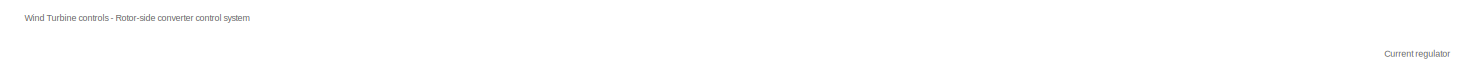
[diagram: DFIG Wind Turbine/Control/Rotor-side Controls - part 1/4, top left region]
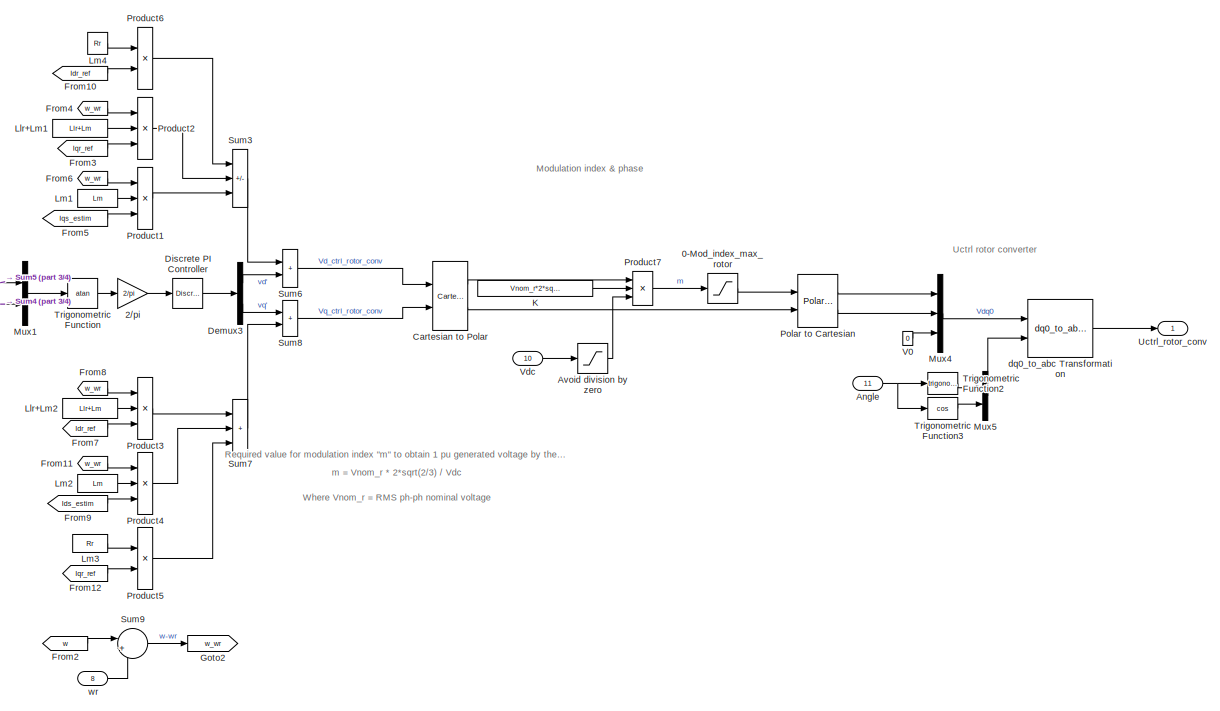
[diagram: DFIG Wind Turbine/Control/Rotor-side Controls - part 2/4, middle right region]
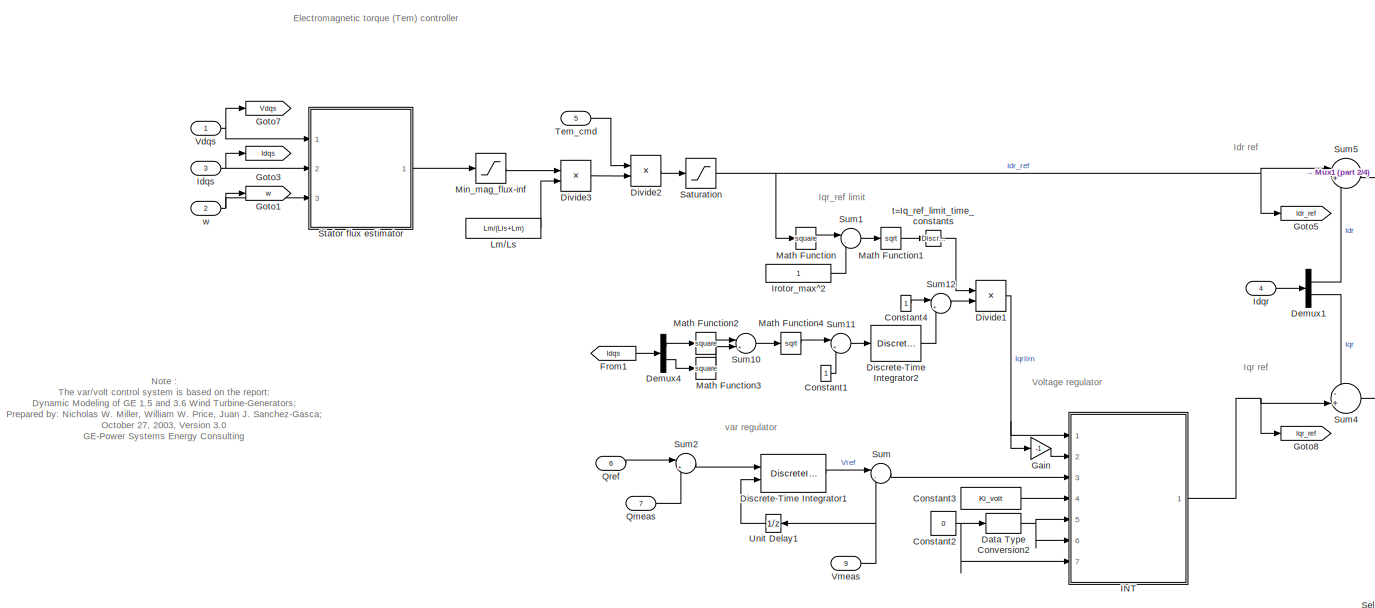
[diagram: DFIG Wind Turbine/Control/Rotor-side Controls - part 3/4, middle left region]
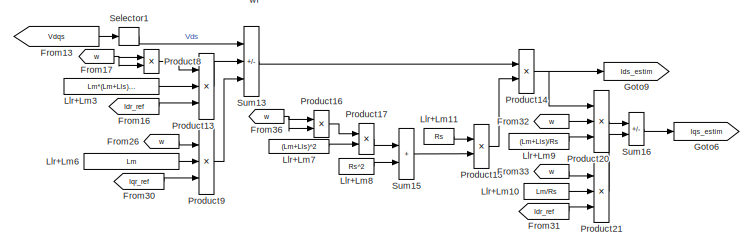
[diagram: DFIG Wind Turbine/Control/Rotor-side Controls - part 4/4, bottom center region]
BLOCK [SubSystem] DFIG Wind Turbine/Control/Rotor-side Controls
  Ports = [11, 1]
  RequestExecContextInheritance = off
BLOCK [Saturate] DFIG Wind Turbine/Control/Rotor-side Controls/0-Mod_index_max_rotor
  LowerLimit = 0
  NameLocation = top
  UpperLimit = Mod_index_max_rotor
BLOCK [Gain] DFIG Wind Turbine/Control/Rotor-side Controls/2//pi
  Gain = 2/pi
BLOCK [Inport] DFIG Wind Turbine/Control/Rotor-side Controls/Angle
  Port = 11
BLOCK [Saturate] DFIG Wind Turbine/Control/Rotor-side Controls/Avoid division by zero
  LowerLimit = 1e-6
  UpperLimit = inf
BLOCK [Reference] DFIG Wind Turbine/Control/Rotor-side Controls/Cartesian to Polar  REF=simulink_extras/Transformations/Cartesian to
Polar
  Ports = [2, 2]
  SourceBlock = simulink_extras/Transformations/Cartesian to\nPolar
  SourceProductBaseCode = SL
  SourceType = Cart2Polar
BLOCK [Constant] DFIG Wind Turbine/Control/Rotor-side Controls/Constant1
BLOCK [Constant] DFIG Wind Turbine/Control/Rotor-side Controls/Constant2
  Value = 0
BLOCK [Constant] DFIG Wind Turbine/Control/Rotor-side Controls/Constant3
  Value = Ki_volt
BLOCK [Constant] DFIG Wind Turbine/Control/Rotor-side Controls/Constant4
BLOCK [DataTypeConversion] DFIG Wind Turbine/Control/Rotor-side Controls/Data Type Conversion2
  OutDataTypeStr = boolean
  RndMeth = Floor
  SaturateOnIntegerOverflow = off
BLOCK [Demux] DFIG Wind Turbine/Control/Rotor-side Controls/Demux1
  DisplayOption = none
  Outputs = 2
  Ports = [1, 2]
BLOCK [Demux] DFIG Wind Turbine/Control/Rotor-side Controls/Demux3
  DisplayOption = none
  Outputs = 2
  Ports = [1, 2]
BLOCK [Demux] DFIG Wind Turbine/Control/Rotor-side Controls/Demux4
  DisplayOption = none
  Outputs = 2
  Ports = [1, 2]
BLOCK [Reference] DFIG Wind Turbine/Control/Rotor-side Controls/Discrete PI Controller  REF=powerlib_extras/Discrete 
Control Blocks/Discrete
PI Controller
  Ports = [1, 1]
  SourceBlock = powerlib_extras/Discrete \nControl Blocks/Discrete\nPI Controller
  SourceProductBaseCode = MT,PS
  SourceType = Discrete PI Controller
BLOCK [DiscreteIntegrator] DFIG Wind Turbine/Control/Rotor-side Controls/Discrete-Time Integrator1
  ICPrevOutput = DiscIntNeverNeededParam
  ICPrevScaledInput = DiscIntNeverNeededParam
  InitialCondition = 1
  InitialConditionSource = external
  LimitOutput = on
  LowerSaturationLimit = Min_var_reg
  Ports = [2, 1]
  SampleTime = Ts
  UpperSaturationLimit = Max_var_reg
  gainval = Ki_var
BLOCK [DiscreteIntegrator] DFIG Wind Turbine/Control/Rotor-side Controls/Discrete-Time Integrator2
  ICPrevOutput = DiscIntNeverNeededParam
  ICPrevScaledInput = DiscIntNeverNeededParam
  LimitOutput = on
  LowerSaturationLimit = 0
  Ports = [1, 1]
  SampleTime = Ts
  UpperSaturationLimit = 1
  gainval = 10
BLOCK [Product] DFIG Wind Turbine/Control/Rotor-side Controls/Divide1
  Inputs = **
  Ports = [2, 1]
BLOCK [Product] DFIG Wind Turbine/Control/Rotor-side Controls/Divide2
  Inputs = */
  Ports = [2, 1]
BLOCK [Product] DFIG Wind Turbine/Control/Rotor-side Controls/Divide3
  Inputs = **
  Ports = [2, 1]
BLOCK [From] DFIG Wind Turbine/Control/Rotor-side Controls/From1
  CloseFcn = tagdialog Close
  GotoTag = Idqs
BLOCK [From] DFIG Wind Turbine/Control/Rotor-side Controls/From10
  CloseFcn = tagdialog Close
  GotoTag = Idr_ref
BLOCK [From] DFIG Wind Turbine/Control/Rotor-side Controls/From11
  CloseFcn = tagdialog Close
  GotoTag = w_wr
BLOCK [From] DFIG Wind Turbine/Control/Rotor-side Controls/From12
  CloseFcn = tagdialog Close
  GotoTag = Iqr_ref
BLOCK [From] DFIG Wind Turbine/Control/Rotor-side Controls/From13
  CloseFcn = tagdialog Close
  GotoTag = Vdqs
BLOCK [From] DFIG Wind Turbine/Control/Rotor-side Controls/From16
  CloseFcn = tagdialog Close
  GotoTag = Idr_ref
BLOCK [From] DFIG Wind Turbine/Control/Rotor-side Controls/From17
  CloseFcn = tagdialog Close
  GotoTag = w
BLOCK [From] DFIG Wind Turbine/Control/Rotor-side Controls/From2
  CloseFcn = tagdialog Close
  GotoTag = w
BLOCK [From] DFIG Wind Turbine/Control/Rotor-side Controls/From26
  CloseFcn = tagdialog Close
  GotoTag = w
BLOCK [From] DFIG Wind Turbine/Control/Rotor-side Controls/From3
  CloseFcn = tagdialog Close
  GotoTag = Iqr_ref
BLOCK [From] DFIG Wind Turbine/Control/Rotor-side Controls/From30
  CloseFcn = tagdialog Close
  GotoTag = Iqr_ref
BLOCK [From] DFIG Wind Turbine/Control/Rotor-side Controls/From31
  CloseFcn = tagdialog Close
  GotoTag = Idr_ref
BLOCK [From] DFIG Wind Turbine/Control/Rotor-side Controls/From32
  CloseFcn = tagdialog Close
  GotoTag = w
BLOCK [From] DFIG Wind Turbine/Control/Rotor-side Controls/From33
  CloseFcn = tagdialog Close
  GotoTag = w
BLOCK [From] DFIG Wind Turbine/Control/Rotor-side Controls/From36
  CloseFcn = tagdialog Close
  GotoTag = w
BLOCK [From] DFIG Wind Turbine/Control/Rotor-side Controls/From4
  CloseFcn = tagdialog Close
  GotoTag = w_wr
BLOCK [From] DFIG Wind Turbine/Control/Rotor-side Controls/From5
  CloseFcn = tagdialog Close
  GotoTag = Iqs_estim
BLOCK [From] DFIG Wind Turbine/Control/Rotor-side Controls/From6
  CloseFcn = tagdialog Close
  GotoTag = w_wr
BLOCK [From] DFIG Wind Turbine/Control/Rotor-side Controls/From7
  CloseFcn = tagdialog Close
  GotoTag = Idr_ref
BLOCK [From] DFIG Wind Turbine/Control/Rotor-side Controls/From8
  CloseFcn = tagdialog Close
  GotoTag = w_wr
BLOCK [From] DFIG Wind Turbine/Control/Rotor-side Controls/From9
  CloseFcn = tagdialog Close
  GotoTag = Ids_estim
BLOCK [Gain] DFIG Wind Turbine/Control/Rotor-side Controls/Gain
  Gain = -1
  OutDataTypeStr = Inherit: Same as input
  ParamDataTypeStr = Inherit: Same as input
  SaturateOnIntegerOverflow = on
BLOCK [Goto] DFIG Wind Turbine/Control/Rotor-side Controls/Goto1
  GotoTag = w
BLOCK [Goto] DFIG Wind Turbine/Control/Rotor-side Controls/Goto2
  GotoTag = w_wr
BLOCK [Goto] DFIG Wind Turbine/Control/Rotor-side Controls/Goto3
  GotoTag = Idqs
BLOCK [Goto] DFIG Wind Turbine/Control/Rotor-side Controls/Goto5
  GotoTag = Idr_ref
BLOCK [Goto] DFIG Wind Turbine/Control/Rotor-side Controls/Goto6
  GotoTag = Iqs_estim
BLOCK [Goto] DFIG Wind Turbine/Control/Rotor-side Controls/Goto7
  GotoTag = Vdqs
BLOCK [Goto] DFIG Wind Turbine/Control/Rotor-side Controls/Goto8
  GotoTag = Iqr_ref
BLOCK [Goto] DFIG Wind Turbine/Control/Rotor-side Controls/Goto9
  GotoTag = Ids_estim
BLOCK [SubSystem] DFIG Wind Turbine/Control/Rotor-side Controls/INT
  Ports = [7, 1]
  RequestExecContextInheritance = off
BLOCK [Gain] DFIG Wind Turbine/Control/Rotor-side Controls/INT/Gain
  Gain = Ts* 0.5
  OutDataTypeStr = Inherit: Same as input
  ParamDataTypeStr = Inherit: Same as input
  SaturateOnIntegerOverflow = on
BLOCK [Inport] DFIG Wind Turbine/Control/Rotor-side Controls/INT/Hold
  Port = 5
BLOCK [UnitDelay] DFIG Wind Turbine/Control/Rotor-side Controls/INT/IC = 0
  HasFrameUpgradeWarning = on
  SampleTime = Ts
BLOCK [UnitDelay] DFIG Wind Turbine/Control/Rotor-side Controls/INT/IC = i_ic
  HasFrameUpgradeWarning = on
  SampleTime = Ts
BLOCK [Inport] DFIG Wind Turbine/Control/Rotor-side Controls/INT/In
  Port = 3
BLOCK [Inport] DFIG Wind Turbine/Control/Rotor-side Controls/INT/Ki
  Port = 4
BLOCK [Logic] DFIG Wind Turbine/Control/Rotor-side Controls/INT/Logical Operator4
  Operator = OR
  Ports = [2, 1]
BLOCK [Inport] DFIG Wind Turbine/Control/Rotor-side Controls/INT/Max
BLOCK [Inport] DFIG Wind Turbine/Control/Rotor-side Controls/INT/Min
  Port = 2
BLOCK [MinMax] DFIG Wind Turbine/Control/Rotor-side Controls/INT/MinMax
  InputSameDT = on
  Inputs = 2
  Ports = [2, 1]
  SaturateOnIntegerOverflow = on
BLOCK [MinMax] DFIG Wind Turbine/Control/Rotor-side Controls/INT/MinMax1
  Function = max
  InputSameDT = on
  Inputs = 2
  Ports = [2, 1]
  SaturateOnIntegerOverflow = on
BLOCK [Outport] DFIG Wind Turbine/Control/Rotor-side Controls/INT/Out
  InitialOutput = 0
  VectorParamsAs1DForOutWhenUnconnected = off
BLOCK [Product] DFIG Wind Turbine/Control/Rotor-side Controls/INT/Product
  OutDataTypeStr = Inherit: Same as first input
  Ports = [2, 1]
  SaturateOnIntegerOverflow = on
BLOCK [Inport] DFIG Wind Turbine/Control/Rotor-side Controls/INT/Reset
  Port = 6
BLOCK [Inport] DFIG Wind Turbine/Control/Rotor-side Controls/INT/Reset Value
  NameLocation = top
  Port = 7
BLOCK [SubSystem] DFIG Wind Turbine/Control/Rotor-side Controls/INT/S6
  Ports = [3, 1]
  RequestExecContextInheritance = off
BLOCK [Outport] DFIG Wind Turbine/Control/Rotor-side Controls/INT/S6/  
  InitialOutput = 0
  VectorParamsAs1DForOutWhenUnconnected = off
BLOCK [Inport] DFIG Wind Turbine/Control/Rotor-side Controls/INT/S6/In
  Port = 2
BLOCK [Inport] DFIG Wind Turbine/Control/Rotor-side Controls/INT/S6/MAX
BLOCK [Inport] DFIG Wind Turbine/Control/Rotor-side Controls/INT/S6/MIN
  Port = 3
BLOCK [MinMax] DFIG Wind Turbine/Control/Rotor-side Controls/INT/S6/MinMax
  Function = max
  InputSameDT = on
  Inputs = 2
  Ports = [2, 1]
  SaturateOnIntegerOverflow = on
BLOCK [MinMax] DFIG Wind Turbine/Control/Rotor-side Controls/INT/S6/MinMax1
  InputSameDT = on
  Inputs = 2
  Ports = [2, 1]
  SaturateOnIntegerOverflow = on
BLOCK [Sum] DFIG Wind Turbine/Control/Rotor-side Controls/INT/Sum
  IconShape = rectangular
  InputSameDT = on
  OutDataTypeStr = Inherit: Same as first input
  Ports = [2, 1]
  SaturateOnIntegerOverflow = on
BLOCK [Sum] DFIG Wind Turbine/Control/Rotor-side Controls/INT/Sum1
  IconShape = rectangular
  InputSameDT = on
  OutDataTypeStr = Inherit: Same as first input
  Ports = [2, 1]
  SaturateOnIntegerOverflow = on
BLOCK [Switch] DFIG Wind Turbine/Control/Rotor-side Controls/INT/Switch2
  Threshold = 0.5
BLOCK [Switch] DFIG Wind Turbine/Control/Rotor-side Controls/INT/Switch3
  Threshold = 0.5
BLOCK [Switch] DFIG Wind Turbine/Control/Rotor-side Controls/INT/Switch7
  Threshold = 0.5
BLOCK [Inport] DFIG Wind Turbine/Control/Rotor-side Controls/Idqr
  NameLocation = top
  Port = 4
BLOCK [Inport] DFIG Wind Turbine/Control/Rotor-side Controls/Idqs
  Port = 3
BLOCK [Constant] DFIG Wind Turbine/Control/Rotor-side Controls/Irotor_max^2
BLOCK [Constant] DFIG Wind Turbine/Control/Rotor-side Controls/K
  Value = Vnom_r*2*sqrt(2/3)
BLOCK [Constant] DFIG Wind Turbine/Control/Rotor-side Controls/Llr+Lm1
  Value = Llr+Lm
BLOCK [Constant] DFIG Wind Turbine/Control/Rotor-side Controls/Llr+Lm10
  Value = Lm/Rs
BLOCK [Constant] DFIG Wind Turbine/Control/Rotor-side Controls/Llr+Lm11
  Value = Rs
BLOCK [Constant] DFIG Wind Turbine/Control/Rotor-side Controls/Llr+Lm2
  Value = Llr+Lm
BLOCK [Constant] DFIG Wind Turbine/Control/Rotor-side Controls/Llr+Lm3
  Value = Lm*(Lm+Lls)/Rs
BLOCK [Constant] DFIG Wind Turbine/Control/Rotor-side Controls/Llr+Lm6
  Value = Lm
BLOCK [Constant] DFIG Wind Turbine/Control/Rotor-side Controls/Llr+Lm7
  Value = (Lm+Lls)^2
BLOCK [Constant] DFIG Wind Turbine/Control/Rotor-side Controls/Llr+Lm8
  Value = Rs^2
BLOCK [Constant] DFIG Wind Turbine/Control/Rotor-side Controls/Llr+Lm9
  Value = (Lm+Lls)/Rs
BLOCK [Constant] DFIG Wind Turbine/Control/Rotor-side Controls/Lm//Ls
  Value = Lm/(Lls+Lm)
BLOCK [Constant] DFIG Wind Turbine/Control/Rotor-side Controls/Lm1
  Value = Lm
BLOCK [Constant] DFIG Wind Turbine/Control/Rotor-side Controls/Lm2
  Value = Lm
BLOCK [Constant] DFIG Wind Turbine/Control/Rotor-side Controls/Lm3
  Value = Rr
BLOCK [Constant] DFIG Wind Turbine/Control/Rotor-side Controls/Lm4
  Value = Rr
  VectorParams1D = off
BLOCK [Math] DFIG Wind Turbine/Control/Rotor-side Controls/Math Function
  Operator = square
  Ports = [1, 1]
  SignedPower = on
BLOCK [Math] DFIG Wind Turbine/Control/Rotor-side Controls/Math Function1
  Operator = sqrt
  Ports = [1, 1]
  SignedPower = on
BLOCK [Math] DFIG Wind Turbine/Control/Rotor-side Controls/Math Function2
  Operator = square
  Ports = [1, 1]
  SignedPower = on
BLOCK [Math] DFIG Wind Turbine/Control/Rotor-side Controls/Math Function3
  Operator = square
  Ports = [1, 1]
  SignedPower = on
BLOCK [Math] DFIG Wind Turbine/Control/Rotor-side Controls/Math Function4
  Operator = sqrt
  Ports = [1, 1]
  SignedPower = on
BLOCK [Saturate] DFIG Wind Turbine/Control/Rotor-side Controls/Min_mag_flux-inf
  LowerLimit = Min_mag_flux
  UpperLimit = inf
BLOCK [Mux] DFIG Wind Turbine/Control/Rotor-side Controls/Mux1
  DisplayOption = bar
  Inputs = 2
  Ports = [2, 1]
BLOCK [Mux] DFIG Wind Turbine/Control/Rotor-side Controls/Mux4
  DisplayOption = bar
  Inputs = 3
  Ports = [3, 1]
BLOCK [Mux] DFIG Wind Turbine/Control/Rotor-side Controls/Mux5
  DisplayOption = bar
  Inputs = 2
  Ports = [2, 1]
BLOCK [Reference] DFIG Wind Turbine/Control/Rotor-side Controls/Polar to Cartesian  REF=simulink_extras/Transformations/Polar to
Cartesian
  Ports = [2, 2]
  SourceBlock = simulink_extras/Transformations/Polar to\nCartesian
  SourceProductBaseCode = SL
  SourceType = Polar2Cart
BLOCK [Product] DFIG Wind Turbine/Control/Rotor-side Controls/Product1
  Inputs = 3
  OutDataTypeStr = Inherit: Same as first input
  Ports = [3, 1]
  SaturateOnIntegerOverflow = on
BLOCK [Product] DFIG Wind Turbine/Control/Rotor-side Controls/Product13
  Inputs = 3
  OutDataTypeStr = Inherit: Same as first input
  Ports = [3, 1]
  SaturateOnIntegerOverflow = on
BLOCK [Product] DFIG Wind Turbine/Control/Rotor-side Controls/Product14
  OutDataTypeStr = Inherit: Same as first input
  Ports = [2, 1]
  SaturateOnIntegerOverflow = on
BLOCK [Product] DFIG Wind Turbine/Control/Rotor-side Controls/Product16
  OutDataTypeStr = Inherit: Same as first input
  Ports = [2, 1]
  SaturateOnIntegerOverflow = on
BLOCK [Product] DFIG Wind Turbine/Control/Rotor-side Controls/Product17
  OutDataTypeStr = Inherit: Same as first input
  Ports = [2, 1]
  SaturateOnIntegerOverflow = on
BLOCK [Product] DFIG Wind Turbine/Control/Rotor-side Controls/Product18
  Inputs = */
  OutDataTypeStr = Inherit: Same as first input
  Ports = [2, 1]
  SaturateOnIntegerOverflow = on
BLOCK [Product] DFIG Wind Turbine/Control/Rotor-side Controls/Product2
  Inputs = 3
  OutDataTypeStr = Inherit: Same as first input
  Ports = [3, 1]
  SaturateOnIntegerOverflow = on
BLOCK [Product] DFIG Wind Turbine/Control/Rotor-side Controls/Product20
  Inputs = 3
  OutDataTypeStr = Inherit: Same as first input
  Ports = [3, 1]
  SaturateOnIntegerOverflow = on
BLOCK [Product] DFIG Wind Turbine/Control/Rotor-side Controls/Product21
  Inputs = 3
  OutDataTypeStr = Inherit: Same as first input
  Ports = [3, 1]
  SaturateOnIntegerOverflow = on
BLOCK [Product] DFIG Wind Turbine/Control/Rotor-side Controls/Product3
  Inputs = 3
  OutDataTypeStr = Inherit: Same as first input
  Ports = [3, 1]
  SaturateOnIntegerOverflow = on
BLOCK [Product] DFIG Wind Turbine/Control/Rotor-side Controls/Product4
  Inputs = 3
  OutDataTypeStr = Inherit: Same as first input
  Ports = [3, 1]
  SaturateOnIntegerOverflow = on
BLOCK [Product] DFIG Wind Turbine/Control/Rotor-side Controls/Product5
  OutDataTypeStr = Inherit: Same as first input
  Ports = [2, 1]
  SaturateOnIntegerOverflow = on
BLOCK [Product] DFIG Wind Turbine/Control/Rotor-side Controls/Product6
  OutDataTypeStr = Inherit: Same as first input
  Ports = [2, 1]
  SaturateOnIntegerOverflow = on
BLOCK [Product] DFIG Wind Turbine/Control/Rotor-side Controls/Product7
  InputSameDT = on
  Inputs = **/
  OutDataTypeStr = Inherit: Same as first input
  Ports = [3, 1]
  SaturateOnIntegerOverflow = on
BLOCK [Product] DFIG Wind Turbine/Control/Rotor-side Controls/Product8
  OutDataTypeStr = Inherit: Same as first input
  Ports = [2, 1]
  SaturateOnIntegerOverflow = on
BLOCK [Product] DFIG Wind Turbine/Control/Rotor-side Controls/Product9
  Inputs = 3
  OutDataTypeStr = Inherit: Same as first input
  Ports = [3, 1]
  SaturateOnIntegerOverflow = on
BLOCK [Inport] DFIG Wind Turbine/Control/Rotor-side Controls/Qmeas
  Port = 7
BLOCK [Inport] DFIG Wind Turbine/Control/Rotor-side Controls/Qref
  Port = 6
BLOCK [Saturate] DFIG Wind Turbine/Control/Rotor-side Controls/Saturation
  LowerLimit = 0
  UpperLimit = Max_Idr_ref
BLOCK [Selector] DFIG Wind Turbine/Control/Rotor-side Controls/Selector1
  IndexOptions = Index vector (dialog)
  Indices = 1
  InputPortWidth = 2
  OutputSizes = [(-2)]
  Ports = [1, 1]
BLOCK [SubSystem] DFIG Wind Turbine/Control/Rotor-side Controls/Stator flux estimator
  Ports = [3, 1]
  RequestExecContextInheritance = off
BLOCK [Product] DFIG Wind Turbine/Control/Rotor-side Controls/Stator flux estimator/Divide1
  Inputs = */
  Ports = [2, 1]
BLOCK [Product] DFIG Wind Turbine/Control/Rotor-side Controls/Stator flux estimator/Divide2
  Inputs = **
  Ports = [2, 1]
BLOCK [Product] DFIG Wind Turbine/Control/Rotor-side Controls/Stator flux estimator/Divide4
  Inputs = */
  Ports = [2, 1]
BLOCK [Product] DFIG Wind Turbine/Control/Rotor-side Controls/Stator flux estimator/Divide6
  Inputs = **
  Ports = [2, 1]
BLOCK [Gain] DFIG Wind Turbine/Control/Rotor-side Controls/Stator flux estimator/Gain
  Gain = -1
BLOCK [Inport] DFIG Wind Turbine/Control/Rotor-side Controls/Stator flux estimator/Idqs
  Port = 2
BLOCK [Reference] DFIG Wind Turbine/Control/Rotor-side Controls/Stator flux estimator/Lowpass Tau=1//4 cycle  REF=powerlib_extras/Discrete 
Control Blocks/Discrete
1st-Order
Filter
  Ports = [1, 1]
  SourceBlock = powerlib_extras/Discrete \nControl Blocks/Discrete\n1st-Order\nFilter
  SourceProductBaseCode = MT,PS
  SourceType = Discrete 1st-Order Filter
BLOCK [Outport] DFIG Wind Turbine/Control/Rotor-side Controls/Stator flux estimator/Mag_Flux
  VectorParamsAs1DForOutWhenUnconnected = off
BLOCK [Math] DFIG Wind Turbine/Control/Rotor-side Controls/Stator flux estimator/Math Function1
  Operator = square
  Ports = [1, 1]
  SignedPower = on
BLOCK [Math] DFIG Wind Turbine/Control/Rotor-side Controls/Stator flux estimator/Math Function2
  Operator = square
  Ports = [1, 1]
  SignedPower = on
BLOCK [Math] DFIG Wind Turbine/Control/Rotor-side Controls/Stator flux estimator/Math Function3
  Operator = sqrt
  Ports = [1, 1]
  SignedPower = on
BLOCK [Constant] DFIG Wind Turbine/Control/Rotor-side Controls/Stator flux estimator/Rs
  Value = Rs
BLOCK [Constant] DFIG Wind Turbine/Control/Rotor-side Controls/Stator flux estimator/Rs2
  Value = Rs
BLOCK [Selector] DFIG Wind Turbine/Control/Rotor-side Controls/Stator flux estimator/Selector1
  IndexOptions = Index vector (dialog)
  Indices = 2
  InputPortWidth = 2
  OutputSizes = 1
  Ports = [1, 1]
BLOCK [Selector] DFIG Wind Turbine/Control/Rotor-side Controls/Stator flux estimator/Selector2
  IndexOptions = Index vector (dialog)
  Indices = 1
  InputPortWidth = 2
  OutputSizes = 1
  Ports = [1, 1]
BLOCK [Selector] DFIG Wind Turbine/Control/Rotor-side Controls/Stator flux estimator/Selector3
  IndexOptions = Index vector (dialog)
  Indices = 2
  InputPortWidth = 2
  OutputSizes = 1
  Ports = [1, 1]
BLOCK [Selector] DFIG Wind Turbine/Control/Rotor-side Controls/Stator flux estimator/Selector4
  IndexOptions = Index vector (dialog)
  Indices = 1
  InputPortWidth = 2
  OutputSizes = 1
  Ports = [1, 1]
BLOCK [Sum] DFIG Wind Turbine/Control/Rotor-side Controls/Stator flux estimator/Sum1
  Inputs = |++
  Ports = [2, 1]
BLOCK [Sum] DFIG Wind Turbine/Control/Rotor-side Controls/Stator flux estimator/Sum2
  Inputs = |+-
  Ports = [2, 1]
BLOCK [Sum] DFIG Wind Turbine/Control/Rotor-side Controls/Stator flux estimator/Sum3
  Inputs = |+-
  Ports = [2, 1]
BLOCK [Inport] DFIG Wind Turbine/Control/Rotor-side Controls/Stator flux estimator/Vdqs
BLOCK [Inport] DFIG Wind Turbine/Control/Rotor-side Controls/Stator flux estimator/w_pu
  Port = 3
BLOCK [Sum] DFIG Wind Turbine/Control/Rotor-side Controls/Sum
  InputSameDT = on
  Inputs = |-+
  OutDataTypeStr = Inherit: Same as first input
  Ports = [2, 1]
  SaturateOnIntegerOverflow = on
BLOCK [Sum] DFIG Wind Turbine/Control/Rotor-side Controls/Sum1
  InputSameDT = on
  Inputs = |-+
  OutDataTypeStr = Inherit: Same as first input
  Ports = [2, 1]
  SaturateOnIntegerOverflow = on
BLOCK [Sum] DFIG Wind Turbine/Control/Rotor-side Controls/Sum10
  InputSameDT = on
  Inputs = |++
  OutDataTypeStr = Inherit: Same as first input
  Ports = [2, 1]
  SaturateOnIntegerOverflow = on
BLOCK [Sum] DFIG Wind Turbine/Control/Rotor-side Controls/Sum11
  InputSameDT = on
  Inputs = |+-
  OutDataTypeStr = Inherit: Same as first input
  Ports = [2, 1]
  SaturateOnIntegerOverflow = on
BLOCK [Sum] DFIG Wind Turbine/Control/Rotor-side Controls/Sum12
  InputSameDT = on
  Inputs = |+-
  OutDataTypeStr = Inherit: Same as first input
  Ports = [2, 1]
  SaturateOnIntegerOverflow = on
BLOCK [Sum] DFIG Wind Turbine/Control/Rotor-side Controls/Sum13
  IconShape = rectangular
  InputSameDT = on
  Inputs = +-+
  OutDataTypeStr = Inherit: Same as first input
  Ports = [3, 1]
  SaturateOnIntegerOverflow = on
BLOCK [Sum] DFIG Wind Turbine/Control/Rotor-side Controls/Sum15
  IconShape = rectangular
  InputSameDT = on
  OutDataTypeStr = Inherit: Same as first input
  Ports = [2, 1]
  SaturateOnIntegerOverflow = on
BLOCK [Sum] DFIG Wind Turbine/Control/Rotor-side Controls/Sum16
  IconShape = rectangular
  InputSameDT = on
  Inputs = --
  OutDataTypeStr = Inherit: Same as first input
  Ports = [2, 1]
  SaturateOnIntegerOverflow = on
BLOCK [Sum] DFIG Wind Turbine/Control/Rotor-side Controls/Sum2
  InputSameDT = on
  Inputs = |+-
  OutDataTypeStr = Inherit: Same as first input
  Ports = [2, 1]
  SaturateOnIntegerOverflow = on
BLOCK [Sum] DFIG Wind Turbine/Control/Rotor-side Controls/Sum3
  IconShape = rectangular
  InputSameDT = on
  Inputs = +--
  OutDataTypeStr = Inherit: Same as first input
  Ports = [3, 1]
  SaturateOnIntegerOverflow = on
BLOCK [Sum] DFIG Wind Turbine/Control/Rotor-side Controls/Sum4
  InputSameDT = on
  Inputs = -+|
  OutDataTypeStr = Inherit: Same as first input
  Ports = [2, 1]
  SaturateOnIntegerOverflow = on
BLOCK [Sum] DFIG Wind Turbine/Control/Rotor-side Controls/Sum5
  InputSameDT = on
  Inputs = |+-
  OutDataTypeStr = Inherit: Same as first input
  Ports = [2, 1]
  SaturateOnIntegerOverflow = on
BLOCK [Sum] DFIG Wind Turbine/Control/Rotor-side Controls/Sum6
  IconShape = rectangular
  InputSameDT = on
  OutDataTypeStr = Inherit: Same as first input
  Ports = [2, 1]
  SaturateOnIntegerOverflow = on
BLOCK [Sum] DFIG Wind Turbine/Control/Rotor-side Controls/Sum7
  IconShape = rectangular
  InputSameDT = on
  Inputs = +++
  OutDataTypeStr = Inherit: Same as first input
  Ports = [3, 1]
  SaturateOnIntegerOverflow = on
BLOCK [Sum] DFIG Wind Turbine/Control/Rotor-side Controls/Sum8
  IconShape = rectangular
  InputSameDT = on
  OutDataTypeStr = Inherit: Same as first input
  Ports = [2, 1]
  SaturateOnIntegerOverflow = on
BLOCK [Sum] DFIG Wind Turbine/Control/Rotor-side Controls/Sum9
  InputSameDT = on
  Inputs = |+-
  OutDataTypeStr = Inherit: Same as first input
  Ports = [2, 1]
  SaturateOnIntegerOverflow = on
BLOCK [Inport] DFIG Wind Turbine/Control/Rotor-side Controls/Tem_cmd
  Port = 5
BLOCK [Trigonometry] DFIG Wind Turbine/Control/Rotor-side Controls/Trigonometric Function
  Operator = atan
  Ports = [1, 1]
BLOCK [Trigonometry] DFIG Wind Turbine/Control/Rotor-side Controls/Trigonometric Function2
  Ports = [1, 1]
BLOCK [Trigonometry] DFIG Wind Turbine/Control/Rotor-side Controls/Trigonometric Function3
  Operator = cos
  Ports = [1, 1]
BLOCK [Outport] DFIG Wind Turbine/Control/Rotor-side Controls/Uctrl_rotor_conv
  VectorParamsAs1DForOutWhenUnconnected = off
BLOCK [UnitDelay] DFIG Wind Turbine/Control/Rotor-side Controls/Unit Delay1
  HasFrameUpgradeWarning = on
  InitialCondition = 1
  SampleTime = Ts
BLOCK [Constant] DFIG Wind Turbine/Control/Rotor-side Controls/V0
  Value = 0
BLOCK [Inport] DFIG Wind Turbine/Control/Rotor-side Controls/Vdc
  Port = 10
BLOCK [Inport] DFIG Wind Turbine/Control/Rotor-side Controls/Vdqs
BLOCK [Inport] DFIG Wind Turbine/Control/Rotor-side Controls/Vmeas
  Port = 9
BLOCK [Reference] DFIG Wind Turbine/Control/Rotor-side Controls/dq0_to_abc Transformation  REF=powerlib_extras/Measurements/dq0_to_abc
Transformation
  Ports = [2, 1]
  SourceBlock = powerlib_extras/Measurements/dq0_to_abc\nTransformation
  SourceProductBaseCode = MT,PS
  SourceType = dq0 to abc Transformation
BLOCK [Reference] DFIG Wind Turbine/Control/Rotor-side Controls/t=Iq_ref_limit_time_constants  REF=powerlib_extras/Discrete 
Control Blocks/Discrete
1st-Order
Filter
  Ports = [1, 1]
  SourceBlock = powerlib_extras/Discrete \nControl Blocks/Discrete\n1st-Order\nFilter
  SourceProductBaseCode = MT,PS
  SourceType = Discrete 1st-Order Filter
BLOCK [Inport] DFIG Wind Turbine/Control/Rotor-side Controls/w
  Port = 2
BLOCK [Inport] DFIG Wind Turbine/Control/Rotor-side Controls/wr
  Port = 8
BLOCK [SubSystem] DFIG Wind Turbine/Control/Speed & Pitch Control
  Ports = [2, 2]
  RequestExecContextInheritance = off
BLOCK [Saturate] DFIG Wind Turbine/Control/Speed & Pitch Control/0-inf
  LowerLimit = 0
  UpperLimit = inf
BLOCK [Saturate] DFIG Wind Turbine/Control/Speed & Pitch Control/0-pitch_max
  LowerLimit = 0
  UpperLimit = pitch_max
BLOCK [Saturate] DFIG Wind Turbine/Control/Speed & Pitch Control/0-pitch_max 
  LowerLimit = 0
  UpperLimit = pitch_max
BLOCK [Constant] DFIG Wind Turbine/Control/Speed & Pitch Control/Constant2
BLOCK [SubSystem] DFIG Wind Turbine/Control/Speed & Pitch Control/Discrete PI Controller
  DialogController = POWERSYS.PowerSysDialog
  Ports = [1, 1]
  RequestExecContextInheritance = off
BLOCK [DiscreteIntegrator] DFIG Wind Turbine/Control/Speed & Pitch Control/Discrete PI Controller/Discrete-Time Integrator
  ICPrevOutput = DiscIntNeverNeededParam
  ICPrevScaledInput = DiscIntNeverNeededParam
  InitialCondition = Init
  LimitOutput = on
  LowerSaturationLimit = LowerLimit
  Ports = [1, 1]
  SampleTime = Ts
  UpperSaturationLimit = UpperLimit
BLOCK [Inport] DFIG Wind Turbine/Control/Speed & Pitch Control/Discrete PI Controller/Error
BLOCK [Outport] DFIG Wind Turbine/Control/Speed & Pitch Control/Discrete PI Controller/Out
  InitialOutput = 0
  VectorParamsAs1DForOutWhenUnconnected = off
BLOCK [Product] DFIG Wind Turbine/Control/Speed & Pitch Control/Discrete PI Controller/Product1
  Ports = [2, 1]
  RndMeth = Zero
BLOCK [Product] DFIG Wind Turbine/Control/Speed & Pitch Control/Discrete PI Controller/Product2
  Ports = [2, 1]
  RndMeth = Zero
BLOCK [Saturate] DFIG Wind Turbine/Control/Speed & Pitch Control/Discrete PI Controller/Saturation2
  LowerLimit = LowerLimit
  NameLocation = top
  UpperLimit = UpperLimit
BLOCK [Step] DFIG Wind Turbine/Control/Speed & Pitch Control/Discrete PI Controller/Step_Ki_speed
  After = Ki
  Before = Ki
  SampleTime = Ts
  Time = 999
BLOCK [Step] DFIG Wind Turbine/Control/Speed & Pitch Control/Discrete PI Controller/Step_Kp_speed
  After = Kp
  Before = Kp
  SampleTime = Ts
  Time = 999
BLOCK [Sum] DFIG Wind Turbine/Control/Speed & Pitch Control/Discrete PI Controller/Sum6
  IconShape = rectangular
  InputSameDT = on
  OutDataTypeStr = Inherit: Same as first input
  Ports = [2, 1]
  SaturateOnIntegerOverflow = on
BLOCK [Reference] DFIG Wind Turbine/Control/Speed & Pitch Control/Discrete PI Controller1  REF=powerlib_extras/Discrete 
Control Blocks/Discrete
PI Controller
  Ports = [1, 1]
  SourceBlock = powerlib_extras/Discrete \nControl Blocks/Discrete\nPI Controller
  SourceProductBaseCode = MT,PS
  SourceType = Discrete PI Controller
BLOCK [Gain] DFIG Wind Turbine/Control/Speed & Pitch Control/Gain2
  Gain = Kp_pitch
  OutDataTypeStr = Inherit: Same as input
  ParamDataTypeStr = Inherit: Same as input
  SaturateOnIntegerOverflow = on
BLOCK [Outport] DFIG Wind Turbine/Control/Speed & Pitch Control/Pitch (deg)
  Port = 2
  VectorParamsAs1DForOutWhenUnconnected = off
BLOCK [Inport] DFIG Wind Turbine/Control/Speed & Pitch Control/Pmeas
  Port = 2
BLOCK [RateLimiter] DFIG Wind Turbine/Control/Speed & Pitch Control/Rate Limiter   1
  FallingSlewLimit = -pitch_rate
  RisingSlewLimit = pitch_rate
BLOCK [Saturate] DFIG Wind Turbine/Control/Speed & Pitch Control/Saturation
  LowerLimit = Speed_min
  UpperLimit = Speed_max
BLOCK [Sum] DFIG Wind Turbine/Control/Speed & Pitch Control/Sum
  Inputs = -+
  Ports = [2, 1]
  SaturateOnIntegerOverflow = on
BLOCK [Sum] DFIG Wind Turbine/Control/Speed & Pitch Control/Sum1
  Inputs = |+-
  Ports = [2, 1]
BLOCK [Sum] DFIG Wind Turbine/Control/Speed & Pitch Control/Sum2
  Inputs = |+-
  Ports = [2, 1]
  SaturateOnIntegerOverflow = on
BLOCK [Sum] DFIG Wind Turbine/Control/Speed & Pitch Control/Sum3
  Inputs = |++
  Ports = [2, 1]
BLOCK [Switch] DFIG Wind Turbine/Control/Speed & Pitch Control/Switch
  InputSameDT = off
  SaturateOnIntegerOverflow = off
  Threshold = 0.75
BLOCK [Outport] DFIG Wind Turbine/Control/Speed & Pitch Control/Tem_cmd
  VectorParamsAs1DForOutWhenUnconnected = off
BLOCK [Fcn] DFIG Wind Turbine/Control/Speed & Pitch Control/Tracking Curve
  Expr = -0.67*u(1)^2+1.42*u(1)+0.51
BLOCK [Gain] DFIG Wind Turbine/Control/Speed & Pitch Control/pu_elec->pu_mec
  Gain = Pnom/Pmec
BLOCK [Reference] DFIG Wind Turbine/Control/Speed & Pitch Control/t=Pitch_time_constant  REF=powerlib_extras/Discrete 
Control Blocks/Discrete
1st-Order
Filter
  Ports = [1, 1]
  SourceBlock = powerlib_extras/Discrete \nControl Blocks/Discrete\n1st-Order\nFilter
  SourceProductBaseCode = MT,PS
  SourceType = Discrete 1st-Order Filter
BLOCK [Reference] DFIG Wind Turbine/Control/Speed & Pitch Control/t=T_speed  REF=powerlib_extras/Discrete 
Control Blocks/Discrete
1st-Order
Filter
  Ports = [1, 1]
  SourceBlock = powerlib_extras/Discrete \nControl Blocks/Discrete\n1st-Order\nFilter
  SourceProductBaseCode = MT,PS
  SourceType = Discrete 1st-Order Filter
BLOCK [Inport] DFIG Wind Turbine/Control/Speed & Pitch Control/wr
BLOCK [Constant] DFIG Wind Turbine/Control/Speed & Pitch Control/wref
  Value = 1.2
BLOCK [Terminator] DFIG Wind Turbine/Control/Terminator
BLOCK [Terminator] DFIG Wind Turbine/Control/Terminator1
BLOCK [UnitDelay] DFIG Wind Turbine/Control/Unit Delay1
  HasFrameUpgradeWarning = on
  SampleTime = Ts
BLOCK [UnitDelay] DFIG Wind Turbine/Control/Unit Delay2
  HasFrameUpgradeWarning = on
  SampleTime = Ts
BLOCK [UnitDelay] DFIG Wind Turbine/Control/Unit Delay4
  HasFrameUpgradeWarning = on
  SampleTime = Ts
BLOCK [UnitDelay] DFIG Wind Turbine/Control/Unit Delay5
  HasFrameUpgradeWarning = on
  SampleTime = Ts
BLOCK [UnitDelay] DFIG Wind Turbine/Control/Unit Delay6
  HasFrameUpgradeWarning = on
  SampleTime = Ts
BLOCK [Inport] DFIG Wind Turbine/Control/Vabc_B1
BLOCK [Inport] DFIG Wind Turbine/Control/Vdc_V
  Port = 5
BLOCK [Inport] DFIG Wind Turbine/Control/angle_rotor_rad
  Port = 7
BLOCK [Inport] DFIG Wind Turbine/Control/wr
  Port = 8
BLOCK [SubSystem] DFIG Wind Turbine/Drive Train
  Ports = [2, 2]
  RequestExecContextInheritance = off
BLOCK [Gain] DFIG Wind Turbine/Drive Train/1_2H_WT
  Gain = 1/(2*H_WT)
  OutDataTypeStr = Inherit: Same as input
  ParamDataTypeStr = Inherit: Same as input
  SaturateOnIntegerOverflow = on
BLOCK [DiscreteIntegrator] DFIG Wind Turbine/Drive Train/Discrete-Time Integrator
  ICPrevOutput = DiscIntNeverNeededParam
  ICPrevScaledInput = DiscIntNeverNeededParam
  InitialCondition = w_wt0
  Ports = [1, 1]
  SampleTime = Ts
BLOCK [DiscreteIntegrator] DFIG Wind Turbine/Drive Train/Discrete-Time Integrator1
  ICPrevOutput = DiscIntNeverNeededParam
  ICPrevScaledInput = DiscIntNeverNeededParam
  InitialCondition = torque0/Ksh
  Ports = [1, 1]
  SampleTime = Ts
BLOCK [Inport] DFIG Wind Turbine/Drive Train/Generator speed (pu)
  Port = 2
BLOCK [Gain] DFIG Wind Turbine/Drive Train/Mutual damping
  Gain = D_mutual
  OutDataTypeStr = Inherit: Same as input
  ParamDataTypeStr = Inherit: Same as input
  SaturateOnIntegerOverflow = on
BLOCK [Gain] DFIG Wind Turbine/Drive Train/Stiffness
  Gain = Ksh
  OutDataTypeStr = Inherit: Same as input
  ParamDataTypeStr = Inherit: Same as input
  SaturateOnIntegerOverflow = on
BLOCK [Sum] DFIG Wind Turbine/Drive Train/Sum
  IconShape = rectangular
  InputSameDT = on
  Inputs = +-
  OutDataTypeStr = Inherit: Same as first input
  Ports = [2, 1]
  SaturateOnIntegerOverflow = on
BLOCK [Sum] DFIG Wind Turbine/Drive Train/Sum1
  IconShape = rectangular
  InputSameDT = on
  Inputs = +-
  OutDataTypeStr = Inherit: Same as first input
  Ports = [2, 1]
  SaturateOnIntegerOverflow = on
BLOCK [Sum] DFIG Wind Turbine/Drive Train/Sum2
  IconShape = rectangular
  InputSameDT = on
  OutDataTypeStr = Inherit: Same as first input
  Ports = [2, 1]
  SaturateOnIntegerOverflow = on
BLOCK [Outport] DFIG Wind Turbine/Drive Train/T_shaft (pu)
  Port = 2
  VectorParamsAs1DForOutWhenUnconnected = off
BLOCK [Inport] DFIG Wind Turbine/Drive Train/T_wt (pu)
BLOCK [Outport] DFIG Wind Turbine/Drive Train/W_wt (pu)
  VectorParamsAs1DForOutWhenUnconnected = off
BLOCK [Gain] DFIG Wind Turbine/Drive Train/wbase
  Gain = wbase
  OutDataTypeStr = Inherit: Same as input
  ParamDataTypeStr = Inherit: Same as input
  SaturateOnIntegerOverflow = on
BLOCK [Reference] DFIG Wind Turbine/Filter Q=50  REF=powerlib/Elements/Three-Phase
Series RLC Load
  AttributesFormatString = \n
  NameLocation = left
  Ports = [0, 0, 0, 0, 0, 3]
  SourceBlock = powerlib/Elements/Three-Phase\nSeries RLC Load
  SourceProductBaseCode = MT,PS
  SourceType = Three-Phase Series RLC Load
BLOCK [From] DFIG Wind Turbine/From
  CloseFcn = tagdialog Close
  GotoTag = wr
BLOCK [From] DFIG Wind Turbine/From1
  CloseFcn = tagdialog Close
  GotoTag = Vdc_V
BLOCK [From] DFIG Wind Turbine/From10
  CloseFcn = tagdialog Close
  GotoTag = Iabc_rotor
BLOCK [From] DFIG Wind Turbine/From11
  CloseFcn = tagdialog Close
  GotoTag = angle_rotor_rad
BLOCK [From] DFIG Wind Turbine/From12
  CloseFcn = tagdialog Close
  GotoTag = Pulses_grid_conv
BLOCK [From] DFIG Wind Turbine/From13
  CloseFcn = tagdialog Close
  GotoTag = wr
BLOCK [From] DFIG Wind Turbine/From14
  CloseFcn = tagdialog Close
  GotoTag = Tm
BLOCK [From] DFIG Wind Turbine/From15
  CloseFcn = tagdialog Close
  GotoTag = Vabc_B1
BLOCK [From] DFIG Wind Turbine/From16
  CloseFcn = tagdialog Close
  GotoTag = wr
BLOCK [From] DFIG Wind Turbine/From17
  CloseFcn = tagdialog Close
  GotoTag = Pulses_rotor_conv
BLOCK [From] DFIG Wind Turbine/From18
  CloseFcn = tagdialog Close
  GotoTag = Pitch_deg
BLOCK [From] DFIG Wind Turbine/From2
  CloseFcn = tagdialog Close
  GotoTag = Tm
BLOCK [From] DFIG Wind Turbine/From21
  CloseFcn = tagdialog Close
  GotoTag = Iabc_grid_conv
BLOCK [From] DFIG Wind Turbine/From22
  CloseFcn = tagdialog Close
  GotoTag = Vdc_V
BLOCK [From] DFIG Wind Turbine/From23
  CloseFcn = tagdialog Close
  GotoTag = Vabc_grid_conv
BLOCK [From] DFIG Wind Turbine/From24
  CloseFcn = tagdialog Close
  GotoTag = PQ_pu
BLOCK [From] DFIG Wind Turbine/From25
  CloseFcn = tagdialog Close
  GotoTag = Tem
BLOCK [From] DFIG Wind Turbine/From26
  CloseFcn = tagdialog Close
  GotoTag = AsyncMac_sig
BLOCK [From] DFIG Wind Turbine/From27
  CloseFcn = tagdialog Close
  GotoTag = TurbineSpeed
BLOCK [From] DFIG Wind Turbine/From3
  CloseFcn = tagdialog Close
  GotoTag = Iabc_grid_conv
BLOCK [From] DFIG Wind Turbine/From4
  CloseFcn = tagdialog Close
  GotoTag = Vabc_B1
BLOCK [From] DFIG Wind Turbine/From5
  CloseFcn = tagdialog Close
  GotoTag = Iabc_rotor
BLOCK [From] DFIG Wind Turbine/From6
  CloseFcn = tagdialog Close
  GotoTag = Vabc_rotor
BLOCK [From] DFIG Wind Turbine/From7
  CloseFcn = tagdialog Close
  GotoTag = Pitch_deg
BLOCK [From] DFIG Wind Turbine/From8
  CloseFcn = tagdialog Close
  GotoTag = Iabc_stator
BLOCK [From] DFIG Wind Turbine/From9
  CloseFcn = tagdialog Close
  GotoTag = Iabc_stator
BLOCK [Goto] DFIG Wind Turbine/Goto1
  GotoTag = Tm
BLOCK [Goto] DFIG Wind Turbine/Goto10
  GotoTag = angle_rotor_rad
BLOCK [Goto] DFIG Wind Turbine/Goto11
  GotoTag = wr
BLOCK [Goto] DFIG Wind Turbine/Goto12
  GotoTag = Vabc_rotor
BLOCK [Goto] DFIG Wind Turbine/Goto13
  GotoTag = Vabc_grid_conv
BLOCK [Goto] DFIG Wind Turbine/Goto14
  GotoTag = PQ_pu
BLOCK [Goto] DFIG Wind Turbine/Goto16
  GotoTag = AsyncMac_sig
BLOCK [Goto] DFIG Wind Turbine/Goto18
  GotoTag = Pulses_grid_conv
BLOCK [Goto] DFIG Wind Turbine/Goto2
  GotoTag = Pulses_rotor_conv
BLOCK [Goto] DFIG Wind Turbine/Goto3
  GotoTag = Pitch_deg
BLOCK [Goto] DFIG Wind Turbine/Goto4
  GotoTag = Tem
BLOCK [Goto] DFIG Wind Turbine/Goto5
  GotoTag = Iabc_rotor
BLOCK [Goto] DFIG Wind Turbine/Goto6
  GotoTag = Vdc_V
BLOCK [Goto] DFIG Wind Turbine/Goto7
  GotoTag = Vabc_B1
BLOCK [Goto] DFIG Wind Turbine/Goto8
  GotoTag = Iabc_grid_conv
BLOCK [Goto] DFIG Wind Turbine/Goto9
  GotoTag = Iabc_stator
BLOCK [Reference] DFIG Wind Turbine/Multimeter  REF=powerlib/Measurements/Multimeter
  Ports = [0, 1]
  SourceBlock = powerlib/Measurements/Multimeter
  SourceProductBaseCode = MT,PS
  SourceType = MultimeterPSB
BLOCK [Mux] DFIG Wind Turbine/Mux
  DisplayOption = bar
  Inputs = 3
  Ports = [3, 1]
BLOCK [Mux] DFIG Wind Turbine/Mux1
  DisplayOption = bar
  Inputs = 3
  Ports = [3, 1]
BLOCK [Gain] DFIG Wind Turbine/Power base for the Generator
  Gain = -Pmec/Pnom
  OutDataTypeStr = Inherit: Same as input
  ParamDataTypeStr = Inherit: Same as input
  SaturateOnIntegerOverflow = on
BLOCK [Inport] DFIG Wind Turbine/Qref_pu
  Port = 2
BLOCK [Reference] DFIG Wind Turbine/Universal Bridge  REF=powerlib/Power
Electronics/Universal Bridge
  Ports = [1, 0, 0, 0, 0, 3, 2]
  SourceBlock = powerlib/Power\nElectronics/Universal Bridge
  SourceProductBaseCode = MT,PS
  SourceType = Universal Bridge
BLOCK [Reference] DFIG Wind Turbine/Universal Bridge1  REF=powerlib/Power
Electronics/Universal Bridge
  Ports = [1, 0, 0, 0, 0, 3, 2]
  SourceBlock = powerlib/Power\nElectronics/Universal Bridge
  SourceProductBaseCode = MT,PS
  SourceType = Universal Bridge
BLOCK [Reference] DFIG Wind Turbine/Vnom_r//Vnom Z=0%  REF=powerlib/Elements/Three-Phase
Transformer
(Two Windings)
  Ports = [0, 0, 0, 0, 0, 3, 3]
  SourceBlock = powerlib/Elements/Three-Phase\nTransformer\n(Two Windings)
  SourceProductBaseCode = MT,PS
  SourceType = Three-Phase Transformer (Two Windings)
BLOCK [Inport] DFIG Wind Turbine/Wind (m//s) 
BLOCK [SubSystem] DFIG Wind Turbine/Wind Turbine
  OpenFcn = power_openblockproxy();
  Ports = [3, 1]
  RequestExecContextInheritance = off
BLOCK [Gain] DFIG Wind Turbine/Wind Turbine/->pu
  Gain = 1/Prated
BLOCK [Saturate] DFIG Wind Turbine/Wind Turbine/Avoid div. by zero
  LowerLimit = eps
  UpperLimit = inf
BLOCK [Saturate] DFIG Wind Turbine/Wind Turbine/Avoid div. by zero 
  LowerLimit = eps
  UpperLimit = inf
BLOCK [Fcn] DFIG Wind Turbine/Wind Turbine/Fcn1
  Expr = K1*u[2]/u[1]
BLOCK [Fcn] DFIG Wind Turbine/Wind Turbine/Fcn2
  Expr = c1*(c6*u[1] + (-c4 - c3*(2.5 + u[2]) + c2*(1/(u[1] + c7*(2.5 + u[2])) -c8/(1 + (2.5 + u[2])^3)))/exp(c5*(1/(u[1] + c7*(2.5 + u[2])) - c8/(1 + (2.5 + u[2])^3))))
BLOCK [Fcn] DFIG Wind Turbine/Wind Turbine/K2*Cp*wind^3 
  Expr = K2*u[1]^3*u[2]
BLOCK [Mux] DFIG Wind Turbine/Wind Turbine/Mux
  DisplayOption = bar
  Inputs = 2
  Ports = [2, 1]
BLOCK [Mux] DFIG Wind Turbine/Wind Turbine/Mux1
  DisplayOption = bar
  Inputs = 2
  Ports = [2, 1]
BLOCK [Mux] DFIG Wind Turbine/Wind Turbine/Mux2
  DisplayOption = bar
  Inputs = 2
  Ports = [2, 1]
BLOCK [Inport] DFIG Wind Turbine/Wind Turbine/Pitch angle (deg)
  Port = 2
BLOCK [Product] DFIG Wind Turbine/Wind Turbine/Product2
  InputSameDT = on
  Inputs = */
  OutDataTypeStr = Inherit: Same as first input
  Ports = [2, 1]
  SaturateOnIntegerOverflow = on
BLOCK [Outport] DFIG Wind Turbine/Wind Turbine/Tt (pu)
  VectorParamsAs1DForOutWhenUnconnected = off
BLOCK [Inport] DFIG Wind Turbine/Wind Turbine/W_wt (pu)
BLOCK [Inport] DFIG Wind Turbine/Wind Turbine/Wind speed (m//s)
  Port = 3
BLOCK [Outport] DFIG Wind Turbine/m
  VectorParamsAs1DForOutWhenUnconnected = off
BLOCK [Goto] Goto1
  GotoTag = P_pu
  TagVisibility = global
BLOCK [Goto] Goto2
  GotoTag = Vdc
  TagVisibility = global
BLOCK [Goto] Goto3
  GotoTag = wr
  TagVisibility = global
BLOCK [Goto] Goto5
  GotoTag = Q_pu
  TagVisibility = global
BLOCK [Reference] Ground3  REF=powerlib/Elements/Ground
  AttributesFormatString = \n
  NameLocation = right
  Ports = [0, 0, 0, 0, 0, 1]
  SourceBlock = powerlib/Elements/Ground
  SourceProductBaseCode = MT,PS
  SourceType = Ground
BLOCK [Reference] Grounding Transformer X0=4.7 Ohms  REF=powerlib/Elements/Three-Phase
Transformer
(Two Windings)
  AttributesFormatString = \n
  Ports = [0, 0, 0, 0, 0, 4, 3]
  SourceBlock = powerlib/Elements/Three-Phase\nTransformer\n(Two Windings)
  SourceProductBaseCode = MT,PS
  SourceType = Three-Phase Transformer (Two Windings)
BLOCK [Reference] Load  REF=powerlib/Measurements/Three-Phase
V-I Measurement
  NameLocation = right
  Ports = [0, 0, 0, 0, 0, 3, 3]
  SourceBlock = powerlib/Measurements/Three-Phase\nV-I Measurement
  SourceProductBaseCode = PS
  SourceType = Three-Phase VI Measurement
BLOCK [Reference] Local  REF=powerlib/Measurements/Three-Phase
V-I Measurement
  Ports = [0, 0, 0, 0, 0, 3, 3]
  SourceBlock = powerlib/Measurements/Three-Phase\nV-I Measurement
  SourceProductBaseCode = MT,PS
  SourceType = Three-Phase VI Measurement
BLOCK [Reference] PCC  REF=powerlib/Measurements/Three-Phase
V-I Measurement
  Ports = [0, 0, 0, 0, 0, 3, 3]
  SourceBlock = powerlib/Measurements/Three-Phase\nV-I Measurement
  SourceProductBaseCode = MT,PS
  SourceType = Three-Phase VI Measurement
BLOCK [SubSystem] Subsystem1
  NameLocation = top
  Ports = []
  RequestExecContextInheritance = off
BLOCK [Sum] Subsystem1/Add
  IconShape = rectangular
  Inputs = +-
  Ports = [2, 1]
BLOCK [Sum] Subsystem1/Add1
  IconShape = rectangular
  Inputs = +-
  Ports = [2, 1]
BLOCK [Demux] Subsystem1/Demux
  Outputs = 2
  Ports = [1, 2]
BLOCK [From] Subsystem1/From10
  CloseFcn = tagdialog Close
  GotoTag = Q_pu
  TagVisibility = global
BLOCK [From] Subsystem1/From11
  CloseFcn = tagdialog Close
  GotoTag = P_pu
  TagVisibility = global
BLOCK [From] Subsystem1/From3
  CloseFcn = tagdialog Close
  GotoTag = Vabc_PCC
  TagVisibility = global
BLOCK [From] Subsystem1/From4
  CloseFcn = tagdialog Close
  GotoTag = Iabc_PCC
  TagVisibility = global
BLOCK [From] Subsystem1/From6
  CloseFcn = tagdialog Close
  GotoTag = Vdc
  TagVisibility = global
BLOCK [From] Subsystem1/From7
  CloseFcn = tagdialog Close
  GotoTag = wr
  TagVisibility = global
BLOCK [From] Subsystem1/From8
  CloseFcn = tagdialog Close
  GotoTag = Vabc_Local
  TagVisibility = global
BLOCK [From] Subsystem1/From9
  CloseFcn = tagdialog Close
  GotoTag = Iabc_Local
  TagVisibility = global
BLOCK [SubSystem] Subsystem1/Load
  Ports = [0, 4]
  RequestExecContextInheritance = off
BLOCK [From] Subsystem1/Load/From2
  CloseFcn = tagdialog Close
  GotoTag = Vabc_Load
  TagVisibility = global
BLOCK [From] Subsystem1/Load/From4
  CloseFcn = tagdialog Close
  GotoTag = Iabc_Load
  TagVisibility = global
BLOCK [Outport] Subsystem1/Load/Ia
  Port = 2
  VectorParamsAs1DForOutWhenUnconnected = off
BLOCK [Outport] Subsystem1/Load/P
  Port = 3
  VectorParamsAs1DForOutWhenUnconnected = off
BLOCK [Reference] Subsystem1/Load/Power (Positive-Sequence)  REF=powerlib_meascontrol/Measurements/Power
(Positive-Sequence)
  Ports = [2, 2]
  SourceBlock = powerlib_meascontrol/Measurements/Power\n(Positive-Sequence)
  SourceProductBaseCode = MT,PS
  SourceType = Power (Positive-Sequence)
BLOCK [Outport] Subsystem1/Load/Q
  Port = 4
  VectorParamsAs1DForOutWhenUnconnected = off
BLOCK [Selector] Subsystem1/Load/Selector
  IndexOptions = Index vector (dialog)
  Indices = [1]
  InputPortWidth = 3
  OutputSizes = 1
  Ports = [1, 1]
BLOCK [Selector] Subsystem1/Load/Selector1
  IndexOptions = Index vector (dialog)
  Indices = [1]
  InputPortWidth = 3
  OutputSizes = 1
  Ports = [1, 1]
BLOCK [Outport] Subsystem1/Load/Va
  VectorParamsAs1DForOutWhenUnconnected = off
BLOCK [Gain] Subsystem1/Load/W2kW
  Gain = 6*1.5/0.9
BLOCK [Gain] Subsystem1/Load/W2kW1
  Gain = 6*1.5/0.9
BLOCK [SubSystem] Subsystem1/Local
  Ports = [0, 4]
  RequestExecContextInheritance = off
BLOCK [From] Subsystem1/Local/From2
  CloseFcn = tagdialog Close
  GotoTag = Vabc_Local
  TagVisibility = global
BLOCK [From] Subsystem1/Local/From4
  CloseFcn = tagdialog Close
  GotoTag = Iabc_Local
  TagVisibility = global
BLOCK [Outport] Subsystem1/Local/Ia
  Port = 2
  VectorParamsAs1DForOutWhenUnconnected = off
BLOCK [Outport] Subsystem1/Local/P
  Port = 3
  VectorParamsAs1DForOutWhenUnconnected = off
BLOCK [Reference] Subsystem1/Local/Power (Positive-Sequence)  REF=powerlib_meascontrol/Measurements/Power
(Positive-Sequence)
  Ports = [2, 2]
  SourceBlock = powerlib_meascontrol/Measurements/Power\n(Positive-Sequence)
  SourceProductBaseCode = MT,PS
  SourceType = Power (Positive-Sequence)
BLOCK [Outport] Subsystem1/Local/Q
  Port = 4
  VectorParamsAs1DForOutWhenUnconnected = off
BLOCK [Selector] Subsystem1/Local/Selector
  IndexOptions = Index vector (dialog)
  Indices = [1]
  InputPortWidth = 3
  OutputSizes = 1
  Ports = [1, 1]
BLOCK [Selector] Subsystem1/Local/Selector1
  IndexOptions = Index vector (dialog)
  Indices = [1]
  InputPortWidth = 3
  OutputSizes = 1
  Ports = [1, 1]
BLOCK [Outport] Subsystem1/Local/Va
  VectorParamsAs1DForOutWhenUnconnected = off
BLOCK [Gain] Subsystem1/Local/W2kW
  Gain = 6*1.5/0.9
BLOCK [Gain] Subsystem1/Local/W2kW1
  Gain = 6*1.5/0.9
BLOCK [Gain] Subsystem1/MW
  Gain = 6*1.5/0.9
  OutDataTypeStr = Inherit: Same as input
  ParamDataTypeStr = Inherit: Same as input
  SaturateOnIntegerOverflow = on
BLOCK [Mux] Subsystem1/Mux
  DisplayOption = bar
  Inputs = 2
  Ports = [2, 1]
BLOCK [Scope] Subsystem1/P, Q  (MW//MVAR)
  Floating = off
  NumInputPorts = 2
  Ports = [2]
  ScopeSpecificationString = Simulink.scopes.TimeScopeBlockCfg('CurrentConfiguration', extmgr.ConfigurationSet(extmgr.Configuration('Core','General UI',true),extmgr.Configuration('Core','Source UI',true),extmgr.Configuration('Sources','WiredSimulink',true,'DataLoggingDecimation','10','DataLoggingDecimateData',true,'DataLoggingSaveFormat','Array','DataLoggingVariableName','ScopeData1'),extmgr.Configuration('Visuals','Time Doma...<+1742ch>
BLOCK [Scope] Subsystem1/P, Q (kW//KVAR)1
  Floating = off
  NumInputPorts = 2
  Ports = [2]
  ScopeSpecificationString = Simulink.scopes.TimeScopeBlockCfg('CurrentConfiguration', extmgr.ConfigurationSet(extmgr.Configuration('Core','General UI',true),extmgr.Configuration('Core','Source UI',true),extmgr.Configuration('Sources','WiredSimulink',true,'DataLoggingDecimation','10','DataLoggingDecimateData',true,'DataLoggingSaveFormat','Array','DataLoggingVariableName','ScopeData2'),extmgr.Configuration('Visuals','Time Doma...<+1738ch>
BLOCK [Scope] Subsystem1/Scope
  Floating = off
  NumInputPorts = 8
  Ports = [8]
  ScopeSpecificationString = Simulink.scopes.TimeScopeBlockCfg('CurrentConfiguration', extmgr.ConfigurationSet(extmgr.Configuration('Core','General UI',true),extmgr.Configuration('Core','Source UI',true),extmgr.Configuration('Sources','WiredSimulink',true,'DataLoggingSaveFormat','Array','DataLoggingDecimation','1','DataLoggingDecimateData',true,'DataLoggingVariableName','ScopeData1'),extmgr.Configuration('Visuals','Time Domai...<+6720ch>
BLOCK [Scope] Subsystem1/Va Ia Load
  Floating = off
  NameLocation = right
  NumInputPorts = 2
  Ports = [2]
  ScopeSpecificationString = Simulink.scopes.TimeScopeBlockCfg('CurrentConfiguration', extmgr.ConfigurationSet(extmgr.Configuration('Core','General UI',true),extmgr.Configuration('Core','Source UI',true),extmgr.Configuration('Sources','WiredSimulink',true,'DataLogging',true,'DataLoggingVariableName','ScopeData4','DataLoggingSaveFormat','StructureWithTime','DataLoggingDecimation','1','DataLoggingDecimateData',true),extmgr.Conf...<+2390ch>
BLOCK [Scope] Subsystem1/Va Ia Local
  Floating = off
  NameLocation = right
  NumInputPorts = 2
  Ports = [2]
  ScopeSpecificationString = Simulink.scopes.TimeScopeBlockCfg('CurrentConfiguration', extmgr.ConfigurationSet(extmgr.Configuration('Core','General UI',true),extmgr.Configuration('Core','Source UI',true),extmgr.Configuration('Sources','WiredSimulink',true,'DataLogging',true,'DataLoggingVariableName','ScopeData3','DataLoggingSaveFormat','StructureWithTime','DataLoggingDecimation','1','DataLoggingDecimateData',true),extmgr.Conf...<+2389ch>
BLOCK [Scope] Subsystem1/dP, dQ (kW//KVAR)
  Floating = off
  NumInputPorts = 2
  Ports = [2]
  ScopeSpecificationString = Simulink.scopes.TimeScopeBlockCfg('CurrentConfiguration', extmgr.ConfigurationSet(extmgr.Configuration('Core','General UI',true),extmgr.Configuration('Core','Source UI',true),extmgr.Configuration('Sources','WiredSimulink',true,'DataLoggingDecimation','10','DataLoggingDecimateData',true,'DataLoggingSaveFormat','Array','DataLoggingVariableName','ScopeData5'),extmgr.Configuration('Visuals','Time Doma...<+1733ch>
BLOCK [SubSystem] Subsystem2
  NameLocation = top
  Ports = []
  RequestExecContextInheritance = off
BLOCK [Derivative] Subsystem2/Derivative1
BLOCK [Derivative] Subsystem2/Derivative16
BLOCK [Derivative] Subsystem2/Derivative2
BLOCK [Derivative] Subsystem2/Derivative20
BLOCK [Derivative] Subsystem2/Derivative21
BLOCK [Derivative] Subsystem2/Derivative22
BLOCK [Derivative] Subsystem2/Derivative23
BLOCK [Derivative] Subsystem2/Derivative24
BLOCK [Derivative] Subsystem2/Derivative25
BLOCK [Derivative] Subsystem2/Derivative3
BLOCK [Derivative] Subsystem2/Derivative4
BLOCK [Reference] Subsystem2/Fourier  REF=powerlib_meascontrol/Measurements/Fourier
  Ports = [1, 2]
  SourceBlock = powerlib_meascontrol/Measurements/Fourier
  SourceProductBaseCode = PS
  SourceType = Fourier
BLOCK [Reference] Subsystem2/Fourier1  REF=powerlib_meascontrol/Measurements/Fourier
  Ports = [1, 2]
  SourceBlock = powerlib_meascontrol/Measurements/Fourier
  SourceProductBaseCode = PS
  SourceType = Fourier
BLOCK [From] Subsystem2/From
  GotoTag = Vabc_PCC
  TagVisibility = global
BLOCK [From] Subsystem2/From1
  GotoTag = Vabc_Local
  TagVisibility = global
BLOCK [From] Subsystem2/From10
  GotoTag = Iabc_Local
  TagVisibility = global
BLOCK [From] Subsystem2/From11
  GotoTag = Vabc_Local
  TagVisibility = global
BLOCK [From] Subsystem2/From12
  GotoTag = Iabc_Local
  TagVisibility = global
BLOCK [From] Subsystem2/From3
  GotoTag = Vabc_Load
  TagVisibility = global
BLOCK [From] Subsystem2/From6
  GotoTag = Vabc_Local
  TagVisibility = global
BLOCK [From] Subsystem2/From7
  GotoTag = Iabc_Local
  TagVisibility = global
BLOCK [From] Subsystem2/From8
  GotoTag = Vabc_Local
  TagVisibility = global
BLOCK [From] Subsystem2/From9
  GotoTag = Vabc_Local
  TagVisibility = global
BLOCK [Mux] Subsystem2/Mux
  DisplayOption = bar
  Inputs = 14
  Ports = [14, 1]
BLOCK [Mux] Subsystem2/Mux1
  DisplayOption = bar
  Inputs = 15
  Ports = [15, 1]
BLOCK [Reference] Subsystem2/PLL (3ph)  REF=powerlib_meascontrol/PLL/PLL
(3ph)
  Ports = [1, 2]
  SourceBlock = powerlib_meascontrol/PLL/PLL\n(3ph)
  SourceProductBaseCode = PS
  SourceType = PLL (3ph)
BLOCK [Reference] Subsystem2/PMU (PLL-Based, Positive-Sequence)1  REF=powerlib_meascontrol/Measurements/PMU
(PLL-Based,
Positive-Sequence)
  Ports = [1, 3]
  SourceBlock = powerlib_meascontrol/Measurements/PMU\n(PLL-Based,\nPositive-Sequence)
  SourceProductBaseCode = PS
  SourceType = PMU (PLL-Based, Positive-Sequence)
BLOCK [Reference] Subsystem2/PMU (PLL-Based, Positive-Sequence)2  REF=powerlib_meascontrol/Measurements/PMU
(PLL-Based,
Positive-Sequence)
  Ports = [1, 3]
  SourceBlock = powerlib_meascontrol/Measurements/PMU\n(PLL-Based,\nPositive-Sequence)
  SourceProductBaseCode = PS
  SourceType = PMU (PLL-Based, Positive-Sequence)
BLOCK [Reference] Subsystem2/PMU (PLL-Based, Positive-Sequence)4  REF=powerlib_meascontrol/Measurements/PMU
(PLL-Based,
Positive-Sequence)
  Ports = [1, 3]
  SourceBlock = powerlib_meascontrol/Measurements/PMU\n(PLL-Based,\nPositive-Sequence)
  SourceProductBaseCode = PS
  SourceType = PMU (PLL-Based, Positive-Sequence)
BLOCK [Reference] Subsystem2/Power (Positive-Sequence)  REF=powerlib_meascontrol/Measurements/Power
(Positive-Sequence)
  Ports = [2, 2]
  SourceBlock = powerlib_meascontrol/Measurements/Power\n(Positive-Sequence)
  SourceProductBaseCode = PS
  SourceType = Power (Positive-Sequence)
BLOCK [Reference] Subsystem2/THD6  REF=powerlib_meascontrol/Measurements/THD
  Ports = [1, 1]
  SourceBlock = powerlib_meascontrol/Measurements/THD
  SourceProductBaseCode = PS
  SourceType = THD
BLOCK [Reference] Subsystem2/THD7  REF=powerlib_meascontrol/Measurements/THD
  Ports = [1, 1]
  SourceBlock = powerlib_meascontrol/Measurements/THD
  SourceProductBaseCode = PS
  SourceType = THD
BLOCK [ToWorkspace] Subsystem2/To Workspace2
  FixptAsFi = on
  MaxDataPoints = inf
  Ports = [1]
  SampleTime = 1/50
  Save2DSignal = 2-D array (concatenate along first dimension)
  VariableName = PMU
BLOCK [ToWorkspace] Subsystem2/To Workspace3
  FixptAsFi = on
  MaxDataPoints = inf
  Ports = [1]
  SampleTime = 1/50/64
  Save2DSignal = 2-D array (concatenate along first dimension)
  VariableName = Local
BLOCK [Reference] Three-Phase Breaker  REF=powerlib/Elements/Three-Phase Breaker
  Ports = [0, 0, 0, 0, 0, 3, 3]
  SourceBlock = powerlib/Elements/Three-Phase Breaker
  SourceProductBaseCode = PS
  SourceType = Three-Phase Breaker
BLOCK [Reference] Three-Phase Breaker1  REF=powerlib/Elements/Three-Phase Breaker
  NameLocation = left
  Ports = [0, 0, 0, 0, 0, 3, 3]
  SourceBlock = powerlib/Elements/Three-Phase Breaker
  SourceProductBaseCode = PS
  SourceType = Three-Phase Breaker
BLOCK [Reference] Three-Phase Breaker2  REF=powerlib/Elements/Three-Phase Breaker
  NameLocation = left
  Ports = [0, 0, 0, 0, 0, 3, 3]
  SourceBlock = powerlib/Elements/Three-Phase Breaker
  SourceProductBaseCode = PS
  SourceType = Three-Phase Breaker
BLOCK [Reference] Three-Phase Parallel RLC Load  REF=powerlib/Elements/Three-Phase
Parallel RLC Load
  AttributesFormatString = \n
  NameLocation = right
  Ports = [0, 0, 0, 0, 0, 3]
  SourceBlock = powerlib/Elements/Three-Phase\nParallel RLC Load
  SourceProductBaseCode = PS
  SourceType = Three-Phase Parallel RLC Load
BLOCK [Reference] Three-Phase Parallel RLC Load1  REF=powerlib/Elements/Three-Phase
Parallel RLC Load
  AttributesFormatString = \n
  NameLocation = right
  Ports = [0, 0, 0, 0, 0, 3]
  SourceBlock = powerlib/Elements/Three-Phase\nParallel RLC Load
  SourceProductBaseCode = PS
  SourceType = Three-Phase Parallel RLC Load
BLOCK [Reference] Three-Phase Parallel RLC Load2  REF=powerlib/Elements/Three-Phase
Parallel RLC Load
  AttributesFormatString = \n
  NameLocation = right
  Ports = [0, 0, 0, 0, 0, 3]
  SourceBlock = powerlib/Elements/Three-Phase\nParallel RLC Load
  SourceProductBaseCode = PS
  SourceType = Three-Phase Parallel RLC Load
BLOCK [Reference] Three-Phase Source  REF=powerlib/Electrical
Sources/Three-Phase Source
  Ports = [0, 0, 0, 0, 0, 0, 3]
  SourceBlock = powerlib/Electrical\nSources/Three-Phase Source
  SourceProductBaseCode = PS
  SourceType = Three-Phase Source
BLOCK [Reference] powergui  REF=powerlib/powergui
  Ports = []
  Priority = 2
  SourceBlock = powerlib/powergui
  SourceProductBaseCode = PS
  SourceType = PSB option menu block
ANNOTATION DFIG Wind Turbine: Outputs
ANNOTATION DFIG Wind Turbine: AC-DC-AC Converter Average Model
ANNOTATION DFIG Wind Turbine: Turbine and Drive Train
ANNOTATION DFIG Wind Turbine: Wind Turbine Control
ANNOTATION DFIG Wind Turbine: Wound-Rotor Induction Generator
ANNOTATION DFIG Wind Turbine/Control: Filtering and Measurements
ANNOTATION DFIG Wind Turbine/Control: Grid-Side Converter Control System
ANNOTATION DFIG Wind Turbine/Control: Rotor-Side Converter Control System
ANNOTATION DFIG Wind Turbine/Control: Speed regulator & Pitch Control
ANNOTATION DFIG Wind Turbine/Control: Wind Turbine controls - GE DFIG 1.5MW
ANNOTATION DFIG Wind Turbine/Control/Grid-side Controls: Current regulator
ANNOTATION DFIG Wind Turbine/Control/Grid-side Controls: Modulation index & phase
ANNOTATION DFIG Wind Turbine/Control/Grid-side Controls: Required value for modulation index "m" to obtain 1 pu generated voltage by the converter:
ANNOTATION DFIG Wind Turbine/Control/Grid-side Controls: Uctrl grid converter
ANNOTATION DFIG Wind Turbine/Control/Grid-side Controls: Vdc regulator
ANNOTATION DFIG Wind Turbine/Control/Grid-side Controls: Where Vnom = RMS ph-ph nominal voltage
ANNOTATION DFIG Wind Turbine/Control/Grid-side Controls: Wind Turbine controls - Grid-side converter control system
ANNOTATION DFIG Wind Turbine/Control/Grid-side Controls: m = Vnom * 2*sqrt(2/3) / Vdc
ANNOTATION DFIG Wind Turbine/Control/Measurement and Transformation: Calculation of P Q measured including filter contribution
ANNOTATION DFIG Wind Turbine/Control/Measurement and Transformation: DQ Transformation
ANNOTATION DFIG Wind Turbine/Control/Measurement and Transformation: Inputs
ANNOTATION DFIG Wind Turbine/Control/Measurement and Transformation: Outputs
ANNOTATION DFIG Wind Turbine/Control/Measurement and Transformation: P,Q & V
ANNOTATION DFIG Wind Turbine/Control/Measurement and Transformation: PLL
ANNOTATION DFIG Wind Turbine/Control/Measurement and Transformation: Wind Turbine controls - Filtering, Measurements and transformation
ANNOTATION DFIG Wind Turbine/Control/Measurement and Transformation/ Improved Discrete 3-phase PLL: New Discrete 3-phase PLL
ANNOTATION DFIG Wind Turbine/Control/Measurement and Transformation/ Improved Discrete 3-phase PLL: Pierre Giroux, Gilbert Sybille, R. Gagnon Power System Laboratory, IREQ Hydro-Quebec
ANNOTATION DFIG Wind Turbine/Control/Measurement and Transformation/Discrete 3-phase PLL-Driven Positive-Sequence Active & Reactive Power: Discrete 3-phase PLL-driven Positive-Sequence Active & Reactive Power
ANNOTATION DFIG Wind Turbine/Control/Measurement and Transformation/Discrete 3-phase PLL-Driven Positive-Sequence Active & Reactive Power: Pierre Giroux, Gilbert Sybille Power System Simulation Laboratory IREQ, Hydro-Quebc
ANNOTATION DFIG Wind Turbine/Control/Measurement and Transformation/Discrete 3-phase PLL-Driven Positive-Sequence Active & Reactive Power/Discrete 3-phase PLL-Driven Positive-Sequence Fundamental Value: Discrete 3-phase PLL-Driven Positive-Sequence Fundamental Value
ANNOTATION DFIG Wind Turbine/Control/Measurement and Transformation/Discrete 3-phase PLL-Driven Positive-Sequence Active & Reactive Power/Discrete 3-phase PLL-Driven Positive-Sequence Fundamental Value: Pierre Giroux, Gilbert Sybille Power System Simulation Laboratory IREQ, Hydro-Quebc
ANNOTATION DFIG Wind Turbine/Control/Measurement and Transformation/Discrete 3-phase PLL-Driven Positive-Sequence Active & Reactive Power/Discrete 3-phase PLL-Driven Positive-Sequence Fundamental Value/Discrete Variable Frequency Mean value1: Pierre Giroux, Gilbert Sybille, Richard Gagnon Power System Simulation Laboratory IREQ, Hydro-Quebc
ANNOTATION DFIG Wind Turbine/Control/Measurement and Transformation/Discrete 3-phase PLL-Driven Positive-Sequence Active & Reactive Power/Discrete 3-phase PLL-Driven Positive-Sequence Fundamental Value/Discrete Variable Frequency Mean value1: Variable frequency - Discrete Mean Value
ANNOTATION DFIG Wind Turbine/Control/Measurement and Transformation/Discrete 3-phase PLL-Driven Positive-Sequence Active & Reactive Power/Discrete 3-phase PLL-Driven Positive-Sequence Fundamental Value/Discrete Variable Frequency Mean value2: Pierre Giroux, Gilbert Sybille, Richard Gagnon Power System Simulation Laboratory IREQ, Hydro-Quebc
ANNOTATION DFIG Wind Turbine/Control/Measurement and Transformation/Discrete 3-phase PLL-Driven Positive-Sequence Active & Reactive Power/Discrete 3-phase PLL-Driven Positive-Sequence Fundamental Value/Discrete Variable Frequency Mean value2: Variable frequency - Discrete Mean Value
ANNOTATION DFIG Wind Turbine/Control/Measurement and Transformation/Discrete 3-phase PLL-Driven Positive-Sequence Active & Reactive Power/Discrete 3-phase PLL-Driven Positive-Sequence Fundamental Value2: Discrete 3-phase PLL-Driven Positive-Sequence Fundamental Value
ANNOTATION DFIG Wind Turbine/Control/Measurement and Transformation/Discrete 3-phase PLL-Driven Positive-Sequence Active & Reactive Power/Discrete 3-phase PLL-Driven Positive-Sequence Fundamental Value2: Pierre Giroux, Gilbert Sybille Power System Simulation Laboratory IREQ, Hydro-Quebc
ANNOTATION DFIG Wind Turbine/Control/Measurement and Transformation/Discrete 3-phase PLL-Driven Positive-Sequence Active & Reactive Power/Discrete 3-phase PLL-Driven Positive-Sequence Fundamental Value2/Discrete Variable Frequency Mean value1: Pierre Giroux, Gilbert Sybille, Richard Gagnon Power System Simulation Laboratory IREQ, Hydro-Quebc
ANNOTATION DFIG Wind Turbine/Control/Measurement and Transformation/Discrete 3-phase PLL-Driven Positive-Sequence Active & Reactive Power/Discrete 3-phase PLL-Driven Positive-Sequence Fundamental Value2/Discrete Variable Frequency Mean value1: Variable frequency - Discrete Mean Value
ANNOTATION DFIG Wind Turbine/Control/Measurement and Transformation/Discrete 3-phase PLL-Driven Positive-Sequence Active & Reactive Power/Discrete 3-phase PLL-Driven Positive-Sequence Fundamental Value2/Discrete Variable Frequency Mean value2: Pierre Giroux, Gilbert Sybille, Richard Gagnon Power System Simulation Laboratory IREQ, Hydro-Quebc
ANNOTATION DFIG Wind Turbine/Control/Measurement and Transformation/Discrete 3-phase PLL-Driven Positive-Sequence Active & Reactive Power/Discrete 3-phase PLL-Driven Positive-Sequence Fundamental Value2/Discrete Variable Frequency Mean value2: Variable frequency - Discrete Mean Value
ANNOTATION DFIG Wind Turbine/Control/Rotor-side Controls: Current regulator
ANNOTATION DFIG Wind Turbine/Control/Rotor-side Controls: Electromagnetic torque (Tem) controller
ANNOTATION DFIG Wind Turbine/Control/Rotor-side Controls: Idr ref
ANNOTATION DFIG Wind Turbine/Control/Rotor-side Controls: Iqr ref
ANNOTATION DFIG Wind Turbine/Control/Rotor-side Controls: Iqr_ref limit
ANNOTATION DFIG Wind Turbine/Control/Rotor-side Controls: Modulation index & phase
ANNOTATION DFIG Wind Turbine/Control/Rotor-side Controls: Note : The var/volt control system is based on the report: Dynamic Modeling of GE 1.5 and 3.6 Wind Turbine-Generators; Prepared by: Nicholas W. Miller, William W. Price, Juan J. Sanchez-Gasca; October 27, 2003, Version 3.0 GE-Power Systems Energy Consulting <copyright redacted>
ANNOTATION DFIG Wind Turbine/Control/Rotor-side Controls: Required value for modulation index "m" to obtain 1 pu generated voltage by the converter:
ANNOTATION DFIG Wind Turbine/Control/Rotor-side Controls: Uctrl rotor converter
ANNOTATION DFIG Wind Turbine/Control/Rotor-side Controls: Voltage regulator
ANNOTATION DFIG Wind Turbine/Control/Rotor-side Controls: Where Vnom_r = RMS ph-ph nominal voltage
ANNOTATION DFIG Wind Turbine/Control/Rotor-side Controls: Wind Turbine controls - Rotor-side converter control system
ANNOTATION DFIG Wind Turbine/Control/Rotor-side Controls: m = Vnom_r * 2*sqrt(2/3) / Vdc
ANNOTATION DFIG Wind Turbine/Control/Rotor-side Controls: var regulator
ANNOTATION DFIG Wind Turbine/Control/Rotor-side Controls/INT: INTEGRATOR (Trapezoidal) with External limits & Reset & Hold
ANNOTATION DFIG Wind Turbine/Control/Rotor-side Controls/INT/S6: Limiter with external limits
ANNOTATION DFIG Wind Turbine/Control/Rotor-side Controls/Stator flux estimator: Quasi steady-state magnitude of flux at generator stator
ANNOTATION DFIG Wind Turbine/Control/Speed & Pitch Control: Note : This control system is based on the report: Dynamic Modeling of GE 1.5 and 3.6 Wind Turbine-Generators; Prepared by: Nicholas W. Miller, William W. Price, Juan J. Sanchez-Gasca; October 27, 2003, Version 3.0 GE-Power Systems Energy Consulting <copyright redacted>
ANNOTATION DFIG Wind Turbine/Control/Speed & Pitch Control: Pitch Compensation
ANNOTATION DFIG Wind Turbine/Control/Speed & Pitch Control: Pitch Control
ANNOTATION DFIG Wind Turbine/Control/Speed & Pitch Control: Speed Regulator (Torque control)
ANNOTATION DFIG Wind Turbine/Control/Speed & Pitch Control/Discrete PI Controller: Discrete PID Controller
ANNOTATION DFIG Wind Turbine/Control/Speed & Pitch Control/Discrete PI Controller: Pierre Giroux, Gilbert Sybille Power System Simulation Laboratory IREQ, Hydro-Quebc
ANNOTATION DFIG Wind Turbine/Drive Train: Shaft
ANNOTATION DFIG Wind Turbine/Drive Train: Turbine
ANNOTATION DFIG Wind Turbine/Drive Train: Wind turbine drive train based on a 2-masse model
LINE Bus Selector1:1 -> Goto2:1
LINE Bus Selector1:2 -> Goto3:1
LINE Bus Selector1:3 -> Goto1:1
LINE Bus Selector1:4 -> Goto5:1
LINE Constant1:1 -> DFIG Wind Turbine:1
LINE Constant:1 -> DFIG Wind Turbine:2
LINE DFIG Wind Turbine:1 -> Bus Selector1:1
LINE Subsystem1/Add1:1 -> Subsystem1/dP, dQ (kW//KVAR):2
LINE Subsystem1/Add:1 -> Subsystem1/dP, dQ (kW//KVAR):1
LINE Subsystem1/Demux:1 -> Subsystem1/Scope:3
LINE Subsystem1/Demux:2 -> Subsystem1/Scope:4
LINE Subsystem1/From10:1 -> Subsystem1/Mux:2
LINE Subsystem1/From11:1 -> Subsystem1/Mux:1
LINE Subsystem1/From3:1 -> Subsystem1/Scope:7
LINE Subsystem1/From4:1 -> Subsystem1/Scope:8
LINE Subsystem1/From6:1 -> Subsystem1/Scope:5
LINE Subsystem1/From7:1 -> Subsystem1/Scope:6
LINE Subsystem1/From8:1 -> Subsystem1/Scope:1
LINE Subsystem1/From9:1 -> Subsystem1/Scope:2
NET Subsystem1/Load/From2:1 -> Subsystem1/Load/Power (Positive-Sequence):1, Subsystem1/Load/Selector:1
NET Subsystem1/Load/From4:1 -> Subsystem1/Load/Power (Positive-Sequence):2, Subsystem1/Load/Selector1:1
LINE Subsystem1/Load/Power (Positive-Sequence):1 -> Subsystem1/Load/W2kW:1
LINE Subsystem1/Load/Power (Positive-Sequence):2 -> Subsystem1/Load/W2kW1:1
LINE Subsystem1/Load/Selector1:1 -> Subsystem1/Load/Ia:1
LINE Subsystem1/Load/Selector:1 -> Subsystem1/Load/Va:1
LINE Subsystem1/Load/W2kW1:1 -> Subsystem1/Load/Q:1
LINE Subsystem1/Load/W2kW:1 -> Subsystem1/Load/P:1
LINE Subsystem1/Load:1 -> Subsystem1/Va Ia Load:1
LINE Subsystem1/Load:2 -> Subsystem1/Va Ia Load:2
NET Subsystem1/Load:3 -> Subsystem1/Add:2, Subsystem1/P, Q (kW//KVAR)1:1
NET Subsystem1/Load:4 -> Subsystem1/Add1:2, Subsystem1/P, Q (kW//KVAR)1:2
NET Subsystem1/Local/From2:1 -> Subsystem1/Local/Power (Positive-Sequence):1, Subsystem1/Local/Selector:1
NET Subsystem1/Local/From4:1 -> Subsystem1/Local/Power (Positive-Sequence):2, Subsystem1/Local/Selector1:1
LINE Subsystem1/Local/Power (Positive-Sequence):1 -> Subsystem1/Local/W2kW:1
LINE Subsystem1/Local/Power (Positive-Sequence):2 -> Subsystem1/Local/W2kW1:1
LINE Subsystem1/Local/Selector1:1 -> Subsystem1/Local/Ia:1
LINE Subsystem1/Local/Selector:1 -> Subsystem1/Local/Va:1
LINE Subsystem1/Local/W2kW1:1 -> Subsystem1/Local/Q:1
LINE Subsystem1/Local/W2kW:1 -> Subsystem1/Local/P:1
LINE Subsystem1/Local:1 -> Subsystem1/Va Ia Local:1
LINE Subsystem1/Local:2 -> Subsystem1/Va Ia Local:2
NET Subsystem1/Local:3 -> Subsystem1/Add:1, Subsystem1/P, Q  (MW//MVAR):1
NET Subsystem1/Local:4 -> Subsystem1/Add1:1, Subsystem1/P, Q  (MW//MVAR):2
LINE Subsystem1/MW:1 -> Subsystem1/Demux:1
LINE Subsystem1/Mux:1 -> Subsystem1/MW:1
LINE Subsystem2/Derivative16:1 -> Subsystem2/Mux1:2
LINE Subsystem2/Derivative1:1 -> Subsystem2/Mux1:7
LINE Subsystem2/Derivative20:1 -> Subsystem2/Mux1:5
LINE Subsystem2/Derivative21:1 -> Subsystem2/Mux:2
LINE Subsystem2/Derivative22:1 -> Subsystem2/Mux:5
LINE Subsystem2/Derivative23:1 -> Subsystem2/Mux:10
LINE Subsystem2/Derivative24:1 -> Subsystem2/Mux:12
LINE Subsystem2/Derivative25:1 -> Subsystem2/Mux:14
LINE Subsystem2/Derivative2:1 -> Subsystem2/Mux1:10
LINE Subsystem2/Derivative3:1 -> Subsystem2/Mux1:12
LINE Subsystem2/Derivative4:1 -> Subsystem2/Mux1:15
NET Subsystem2/Fourier1:1 -> Subsystem2/Derivative22:1, Subsystem2/Mux:4
LINE Subsystem2/Fourier1:2 -> Subsystem2/Mux:6
NET Subsystem2/Fourier:1 -> Subsystem2/Derivative21:1, Subsystem2/Mux:1
LINE Subsystem2/Fourier:2 -> Subsystem2/Mux:3
LINE Subsystem2/From10:1 -> Subsystem2/Power (Positive-Sequence):2
LINE Subsystem2/From11:1 -> Subsystem2/THD6:1
LINE Subsystem2/From12:1 -> Subsystem2/THD7:1
LINE Subsystem2/From1:1 -> Subsystem2/PMU (PLL-Based, Positive-Sequence)4:1
LINE Subsystem2/From3:1 -> Subsystem2/PMU (PLL-Based, Positive-Sequence)1:1
LINE Subsystem2/From6:1 -> Subsystem2/Fourier:1
LINE Subsystem2/From7:1 -> Subsystem2/Fourier1:1
LINE Subsystem2/From8:1 -> Subsystem2/PLL (3ph):1
LINE Subsystem2/From9:1 -> Subsystem2/Power (Positive-Sequence):1
LINE Subsystem2/From:1 -> Subsystem2/PMU (PLL-Based, Positive-Sequence)2:1
LINE Subsystem2/Mux1:1 -> Subsystem2/To Workspace2:1
LINE Subsystem2/Mux:1 -> Subsystem2/To Workspace3:1
NET Subsystem2/PLL (3ph):1 -> Subsystem2/Derivative25:1, Subsystem2/Mux:13
NET Subsystem2/PMU (PLL-Based, Positive-Sequence)1:1 -> Subsystem2/Derivative1:1, Subsystem2/Mux1:6
LINE Subsystem2/PMU (PLL-Based, Positive-Sequence)1:2 -> Subsystem2/Mux1:8
NET Subsystem2/PMU (PLL-Based, Positive-Sequence)1:3 -> Subsystem2/Derivative2:1, Subsystem2/Mux1:9
NET Subsystem2/PMU (PLL-Based, Positive-Sequence)2:1 -> Subsystem2/Derivative3:1, Subsystem2/Mux1:11
LINE Subsystem2/PMU (PLL-Based, Positive-Sequence)2:2 -> Subsystem2/Mux1:13
NET Subsystem2/PMU (PLL-Based, Positive-Sequence)2:3 -> Subsystem2/Derivative4:1, Subsystem2/Mux1:14
NET Subsystem2/PMU (PLL-Based, Positive-Sequence)4:1 -> Subsystem2/Derivative16:1, Subsystem2/Mux1:1
LINE Subsystem2/PMU (PLL-Based, Positive-Sequence)4:2 -> Subsystem2/Mux1:3
NET Subsystem2/PMU (PLL-Based, Positive-Sequence)4:3 -> Subsystem2/Derivative20:1, Subsystem2/Mux1:4
NET Subsystem2/Power (Positive-Sequence):1 -> Subsystem2/Derivative23:1, Subsystem2/Mux:9
NET Subsystem2/Power (Positive-Sequence):2 -> Subsystem2/Derivative24:1, Subsystem2/Mux:11
LINE Subsystem2/THD6:1 -> Subsystem2/Mux:7
LINE Subsystem2/THD7:1 -> Subsystem2/Mux:8
PLINE 10 km line:LConn1 -- PCC:RConn1
PLINE 10 km line:LConn2 -- PCC:RConn2
PLINE 10 km line:LConn3 -- PCC:RConn3
PLINE 10 km line:RConn1 -- 25 kV// 575 V 6*2 MVA:LConn1
PLINE 10 km line:RConn2 -- 25 kV// 575 V 6*2 MVA:LConn2
PLINE 10 km line:RConn3 -- 25 kV// 575 V 6*2 MVA:LConn3
PLINE 120 kV//25 kV 47 MVA:LConn1 -- B120 (120 kV):RConn1
PLINE 120 kV//25 kV 47 MVA:LConn2 -- B120 (120 kV):RConn2
PLINE 120 kV//25 kV 47 MVA:LConn3 -- B120 (120 kV):RConn3
PNET net1: 120 kV//25 kV 47 MVA:RConn1 -- 20 km line:LConn1 -- Grounding Transformer X0=4.7 Ohms:LConn1
PNET net2: 120 kV//25 kV 47 MVA:RConn2 -- 20 km line:LConn2 -- Grounding Transformer X0=4.7 Ohms:LConn2
PNET net3: 120 kV//25 kV 47 MVA:RConn3 -- 20 km line:LConn3 -- Grounding Transformer X0=4.7 Ohms:LConn3
PLINE 20 km line:RConn1 -- Three-Phase Breaker:LConn1
PLINE 20 km line:RConn2 -- Three-Phase Breaker:LConn2
PLINE 20 km line:RConn3 -- Three-Phase Breaker:LConn3
PNET net4: 25 kV// 575 V 6*2 MVA:RConn1 -- Load:RConn1 -- Local:LConn1
PNET net5: 25 kV// 575 V 6*2 MVA:RConn2 -- Load:RConn2 -- Local:LConn2
PNET net6: 25 kV// 575 V 6*2 MVA:RConn3 -- Load:RConn3 -- Local:LConn3
PLINE 2500 MVA X0//X1=3:LConn1 -- Three-Phase Source:RConn1
PLINE 2500 MVA X0//X1=3:LConn2 -- Three-Phase Source:RConn2
PLINE 2500 MVA X0//X1=3:LConn3 -- Three-Phase Source:RConn3
PLINE 2500 MVA X0//X1=3:RConn1 -- B120 (120 kV):LConn1
PLINE 2500 MVA X0//X1=3:RConn2 -- B120 (120 kV):LConn2
PLINE 2500 MVA X0//X1=3:RConn3 -- B120 (120 kV):LConn3
PLINE 3.3ohms :LConn1 -- Grounding Transformer X0=4.7 Ohms:LConn4
PLINE 3.3ohms :RConn1 -- Ground3:LConn1
PLINE DFIG Wind Turbine:LConn1 -- Local:RConn1
PLINE DFIG Wind Turbine:LConn2 -- Local:RConn2
PLINE DFIG Wind Turbine:LConn3 -- Local:RConn3
PNET net7: Load:LConn1 -- Three-Phase Breaker1:LConn1 -- Three-Phase Breaker2:LConn1 -- Three-Phase Parallel RLC Load:LConn1
PNET net8: Load:LConn2 -- Three-Phase Breaker1:LConn2 -- Three-Phase Breaker2:LConn2 -- Three-Phase Parallel RLC Load:LConn2
PNET net9: Load:LConn3 -- Three-Phase Breaker1:LConn3 -- Three-Phase Breaker2:LConn3 -- Three-Phase Parallel RLC Load:LConn3
PLINE PCC:LConn1 -- Three-Phase Breaker:RConn1
PLINE PCC:LConn2 -- Three-Phase Breaker:RConn2
PLINE PCC:LConn3 -- Three-Phase Breaker:RConn3
PLINE Three-Phase Breaker1:RConn1 -- Three-Phase Parallel RLC Load1:LConn1
PLINE Three-Phase Breaker1:RConn2 -- Three-Phase Parallel RLC Load1:LConn2
PLINE Three-Phase Breaker1:RConn3 -- Three-Phase Parallel RLC Load1:LConn3
PLINE Three-Phase Breaker2:RConn1 -- Three-Phase Parallel RLC Load2:LConn1
PLINE Three-Phase Breaker2:RConn2 -- Three-Phase Parallel RLC Load2:LConn2
PLINE Three-Phase Breaker2:RConn3 -- Three-Phase Parallel RLC Load2:LConn3
note: NET lines group one-source signal fan-out (src -> all destinations, sorted); 1:1 wires keep LINE; PNET lines group multi-terminal physical nets as a canonical sorted terminal list (undirected conserving connections); 2-terminal nets keep the pairwise PLINE form
